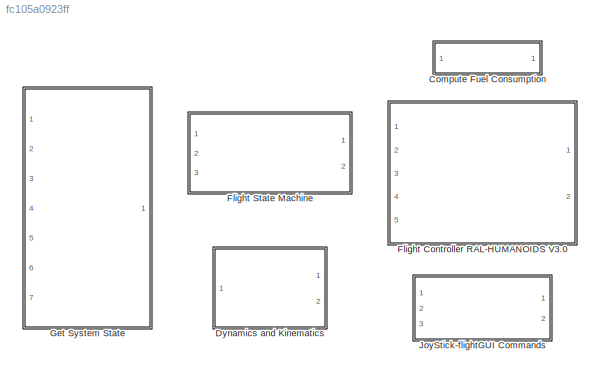
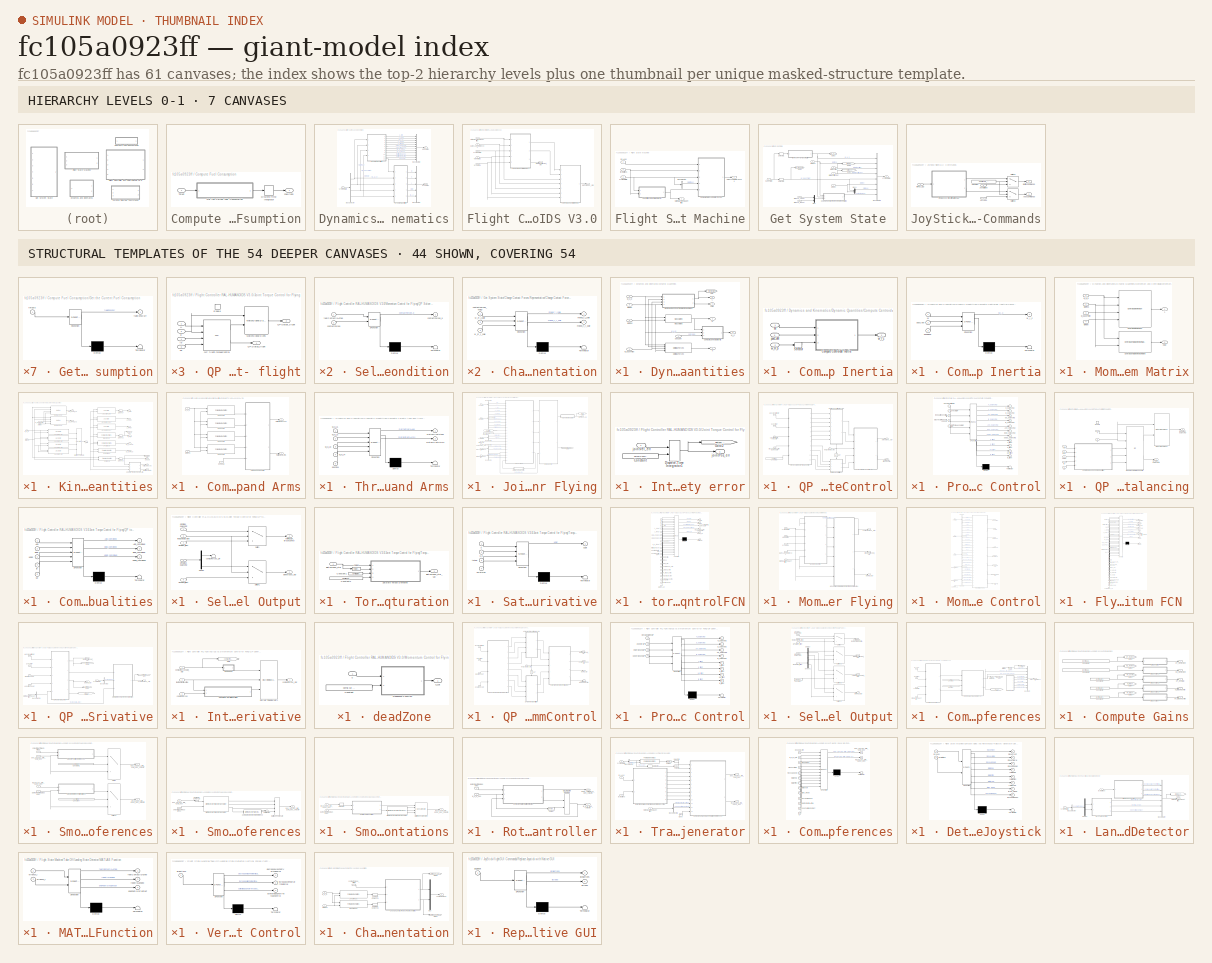
[diagram: thumbnail index - top-2 hierarchy levels (7 canvases) + 44 structural-template representatives of the remaining 54 canvases]
MODEL slx_fc105a0923ff
KIND library
CONFIG AbsTol = auto
CONFIG EnableMultiTasking = off
CONFIG FixedStep = auto
CONFIG MaxStep = auto
CONFIG MinStep = auto
CONFIG RelTol = 1e-3
CONFIG SampleTimeConstraint = Unconstrained
CONFIG SolverName = VariableStepAuto
CONFIG StartTime = 0.0
CONFIG StopTime = 10.0
BLOCK [SubSystem] Compute Fuel Consumption
  Ports = [1, 1]
  RequestExecContextInheritance = off
BLOCK [DiscreteIntegrator] Compute Fuel Consumption/Discrete-Time Integrator
  ICPrevOutput = DiscIntNeverNeededParam
  ICPrevScaledInput = DiscIntNeverNeededParam
  InitialConditionSetting = Auto
  Ports = [1, 1]
  SampleTime = Config.tStep
BLOCK [Outport] Compute Fuel Consumption/FuelCons
BLOCK [SubSystem] Compute Fuel Consumption/Get the Current Fuel Consumption
  ErrorFcn = Stateflow.Translate.translate
  PermitHierarchicalResolution = ExplicitOnly
  Ports = [1, 1]
  RequestExecContextInheritance = off
  SFBlockType = MATLAB Function
  TreatAsAtomicUnit = on
BLOCK [Demux] Compute Fuel Consumption/Get the Current Fuel Consumption/ Demux 
  Outputs = 1
  Ports = [1, 1]
BLOCK [S-Function] Compute Fuel Consumption/Get the Current Fuel Consumption/ SFunction 
  EnableBusSupport = off
  FunctionName = sf_sfun
  Parameters = Config
  PortCounts = [1 2]
  Ports = [1, 2]
  SFcnIsStateOwnerBlock = off
  SFunctionDeploymentMode = off
  Tag = Stateflow S-Function 33
BLOCK [Terminator] Compute Fuel Consumption/Get the Current Fuel Consumption/ Terminator 
BLOCK [Outport] Compute Fuel Consumption/Get the Current Fuel Consumption/fuelConsCurr
BLOCK [Inport] Compute Fuel Consumption/Get the Current Fuel Consumption/thrusts
BLOCK [Inport] Compute Fuel Consumption/Thrust
BLOCK [SubSystem] Dynamics and Kinematics
  Ports = [1, 2]
  RequestExecContextInheritance = off
BLOCK [BusCreator] Dynamics and Kinematics/Bus Creator1
  DisplayOption = bar
  InheritFromInputs = on
  Inputs = 5
  Ports = [5, 1]
BLOCK [BusCreator] Dynamics and Kinematics/Bus Creator2
  DisplayOption = bar
  InheritFromInputs = on
  Inputs = 12
  Ports = [12, 1]
BLOCK [BusSelector] Dynamics and Kinematics/Bus Selector
  OutputSignals = w_H_b,jointPos,w_baseTwist,jointVel
  Ports = [1, 4]
BLOCK [SubSystem] Dynamics and Kinematics/Dynamic Quantities
  Ports = [5, 5]
  RequestExecContextInheritance = off
BLOCK [Outport] Dynamics and Kinematics/Dynamic Quantities/CMM
  Port = 4
  VectorParamsAs1DForOutWhenUnconnected = off
BLOCK [SubSystem] Dynamics and Kinematics/Dynamic Quantities/Compute Centroidal Inertia
  Ports = [3, 1]
  RequestExecContextInheritance = off
BLOCK [SubSystem] Dynamics and Kinematics/Dynamic Quantities/Compute Centroidal Inertia/Compute Centroidal Inertia
  ErrorFcn = Stateflow.Translate.translate
  PermitHierarchicalResolution = ExplicitOnly
  Ports = [3, 1]
  RequestExecContextInheritance = off
  SFBlockType = MATLAB Function
  TreatAsAtomicUnit = on
BLOCK [Demux] Dynamics and Kinematics/Dynamic Quantities/Compute Centroidal Inertia/Compute Centroidal Inertia/ Demux 
  Outputs = 1
  Ports = [1, 1]
BLOCK [S-Function] Dynamics and Kinematics/Dynamic Quantities/Compute Centroidal Inertia/Compute Centroidal Inertia/ SFunction 
  EnableBusSupport = off
  FunctionName = sf_sfun
  PortCounts = [3 2]
  Ports = [3, 2]
  SFcnIsStateOwnerBlock = off
  SFunctionDeploymentMode = off
  Tag = Stateflow S-Function 5
BLOCK [Terminator] Dynamics and Kinematics/Dynamic Quantities/Compute Centroidal Inertia/Compute Centroidal Inertia/ Terminator 
BLOCK [Inport] Dynamics and Kinematics/Dynamic Quantities/Compute Centroidal Inertia/Compute Centroidal Inertia/M
BLOCK [Inport] Dynamics and Kinematics/Dynamic Quantities/Compute Centroidal Inertia/Compute Centroidal Inertia/posBase
  Port = 3
BLOCK [Inport] Dynamics and Kinematics/Dynamic Quantities/Compute Centroidal Inertia/Compute Centroidal Inertia/posCoM
  Port = 2
BLOCK [Outport] Dynamics and Kinematics/Dynamic Quantities/Compute Centroidal Inertia/Compute Centroidal Inertia/w_I_c
  VectorParamsAs1DForOutWhenUnconnected = off
BLOCK [Inport] Dynamics and Kinematics/Dynamic Quantities/Compute Centroidal Inertia/M
BLOCK [Selector] Dynamics and Kinematics/Dynamic Quantities/Compute Centroidal Inertia/Selector
  IndexOptions = Index vector (dialog),Index vector (dialog)
  Indices = [1 2 3],4
  InputPortWidth = 3
  NumberOfDimensions = 2
  OutputSizes = 1,1
  Ports = [1, 1]
BLOCK [Inport] Dynamics and Kinematics/Dynamic Quantities/Compute Centroidal Inertia/posCoM
  Port = 3
BLOCK [Inport] Dynamics and Kinematics/Dynamic Quantities/Compute Centroidal Inertia/w_H_b
  Port = 2
BLOCK [Outport] Dynamics and Kinematics/Dynamic Quantities/Compute Centroidal Inertia/w_I_c
  VectorParamsAs1DForOutWhenUnconnected = off
BLOCK [Reference] Dynamics and Kinematics/Dynamic Quantities/GetBiasForces  REF=WBToolboxLibrary/Model/Dynamics/GetBiasForces
  Ports = [4, 1]
  SourceBlock = WBToolboxLibrary/Model/Dynamics/GetBiasForces
  SourceProductName = WholeBodyToolbox
  SourceType = Get Generalized Bias Forces
BLOCK [Goto] Dynamics and Kinematics/Dynamic Quantities/Goto
  GotoTag = momentum
  TagVisibility = global
BLOCK [Outport] Dynamics and Kinematics/Dynamic Quantities/L
  Port = 3
  VectorParamsAs1DForOutWhenUnconnected = off
BLOCK [Outport] Dynamics and Kinematics/Dynamic Quantities/M
  VectorParamsAs1DForOutWhenUnconnected = off
BLOCK [Reference] Dynamics and Kinematics/Dynamic Quantities/MassMatrix  REF=WBToolboxLibrary/Model/Dynamics/MassMatrix
  Ports = [2, 1]
  SourceBlock = WBToolboxLibrary/Model/Dynamics/MassMatrix
  SourceProductName = WholeBodyToolbox
  SourceType = MassMatrix
BLOCK [SubSystem] Dynamics and Kinematics/Dynamic Quantities/Momentum and CentroidalMomentum Matrix
  Ports = [4, 2]
  RequestExecContextInheritance = off
BLOCK [Outport] Dynamics and Kinematics/Dynamic Quantities/Momentum and CentroidalMomentum Matrix/CMM
  Port = 2
  VectorParamsAs1DForOutWhenUnconnected = off
BLOCK [Reference] Dynamics and Kinematics/Dynamic Quantities/Momentum and CentroidalMomentum Matrix/CentroidalMomentum  REF=WBToolboxLibrary/Model/Dynamics/CentroidalMomentum
  Ports = [4, 1]
  SourceBlock = WBToolboxLibrary/Model/Dynamics/CentroidalMomentum
  SourceProductName = WholeBodyToolbox
  SourceType = CentroidalMomentum
BLOCK [Reference] Dynamics and Kinematics/Dynamic Quantities/Momentum and CentroidalMomentum Matrix/CentroidalTotalMomentumMatrix  REF=WBToolboxLibrary/Model/Jacobians/CentroidalTotalMomentumMatrix
  Ports = [2, 1]
  SourceBlock = WBToolboxLibrary/Model/Jacobians/CentroidalTotalMomentumMatrix
  SourceProductName = WholeBodyToolbox
  SourceType = CentroidalTotalMomentumMatrix
BLOCK [Outport] Dynamics and Kinematics/Dynamic Quantities/Momentum and CentroidalMomentum Matrix/L
  VectorParamsAs1DForOutWhenUnconnected = off
BLOCK [Inport] Dynamics and Kinematics/Dynamic Quantities/Momentum and CentroidalMomentum Matrix/jointPos
  Port = 2
BLOCK [Inport] Dynamics and Kinematics/Dynamic Quantities/Momentum and CentroidalMomentum Matrix/jointVel
  Port = 4
BLOCK [Inport] Dynamics and Kinematics/Dynamic Quantities/Momentum and CentroidalMomentum Matrix/w_H_b
BLOCK [Inport] Dynamics and Kinematics/Dynamic Quantities/Momentum and CentroidalMomentum Matrix/w_baseTwist
  Port = 3
BLOCK [Outport] Dynamics and Kinematics/Dynamic Quantities/h 
  Port = 2
  VectorParamsAs1DForOutWhenUnconnected = off
BLOCK [Inport] Dynamics and Kinematics/Dynamic Quantities/jointPos
  Port = 3
BLOCK [Inport] Dynamics and Kinematics/Dynamic Quantities/jointVel
  Port = 5
BLOCK [Inport] Dynamics and Kinematics/Dynamic Quantities/posCoM
BLOCK [Inport] Dynamics and Kinematics/Dynamic Quantities/w_H_b
  Port = 2
BLOCK [Outport] Dynamics and Kinematics/Dynamic Quantities/w_I_c
  Port = 5
  VectorParamsAs1DForOutWhenUnconnected = off
BLOCK [Inport] Dynamics and Kinematics/Dynamic Quantities/w_baseTwist
  Port = 4
BLOCK [SubSystem] Dynamics and Kinematics/Kinematic Quantities
  Ports = [4, 12]
  RequestExecContextInheritance = off
BLOCK [Reference] Dynamics and Kinematics/Kinematic Quantities/Base pose  REF=WBToolboxLibrary/Model/Kinematics/ForwardKinematics
  Ports = [2, 1]
  SourceBlock = WBToolboxLibrary/Model/Kinematics/ForwardKinematics
  SourceProductName = WholeBodyToolbox
  SourceType = ForwardKinematics
BLOCK [Reference] Dynamics and Kinematics/Kinematic Quantities/CoM pose  REF=WBToolboxLibrary/Model/Kinematics/ForwardKinematics
  Ports = [2, 1]
  SourceBlock = WBToolboxLibrary/Model/Kinematics/ForwardKinematics
  SourceProductName = WholeBodyToolbox
  SourceType = ForwardKinematics
BLOCK [Selector] Dynamics and Kinematics/Kinematic Quantities/CoM6D -> CoMXYZ3
  IndexOptions = Index vector (dialog),Index vector (dialog)
  Indices = [1 2 3],[1 2 3]
  InputPortWidth = 7
  NumberOfDimensions = 2
  OutputSizes = 1,1
  Ports = [1, 1]
BLOCK [Selector] Dynamics and Kinematics/Kinematic Quantities/CoM6D -> CoMXYZ5
  IndexOptions = Index vector (dialog),Index vector (dialog)
  Indices = [1 2 3],[4]
  InputPortWidth = 7
  NumberOfDimensions = 2
  OutputSizes = 1,1
  Ports = [1, 1]
BLOCK [Selector] Dynamics and Kinematics/Kinematic Quantities/CoM6D -> CoMXYZ7
  IndexOptions = Index vector (dialog),Index vector (dialog)
  Indices = [1 2 3],[1:6+Config.N_DOF]
  InputPortWidth = 7
  NumberOfDimensions = 2
  OutputSizes = 1,1
  Ports = [1, 1]
BLOCK [SubSystem] Dynamics and Kinematics/Kinematic Quantities/Compute Thrusts Axes and Arms
  Ports = [3, 2]
  RequestExecContextInheritance = off
BLOCK [Reference] Dynamics and Kinematics/Kinematic Quantities/Compute Thrusts Axes and Arms/Pose Jet 1  REF=WBToolboxLibrary/Model/Kinematics/ForwardKinematics
  Ports = [2, 1]
  SourceBlock = WBToolboxLibrary/Model/Kinematics/ForwardKinematics
  SourceProductName = WholeBodyToolbox
  SourceType = ForwardKinematics
BLOCK [Reference] Dynamics and Kinematics/Kinematic Quantities/Compute Thrusts Axes and Arms/Pose Jet 2  REF=WBToolboxLibrary/Model/Kinematics/ForwardKinematics
  Ports = [2, 1]
  SourceBlock = WBToolboxLibrary/Model/Kinematics/ForwardKinematics
  SourceProductName = WholeBodyToolbox
  SourceType = ForwardKinematics
BLOCK [Reference] Dynamics and Kinematics/Kinematic Quantities/Compute Thrusts Axes and Arms/Pose Jet 3  REF=WBToolboxLibrary/Model/Kinematics/ForwardKinematics
  Ports = [2, 1]
  SourceBlock = WBToolboxLibrary/Model/Kinematics/ForwardKinematics
  SourceProductName = WholeBodyToolbox
  SourceType = ForwardKinematics
BLOCK [Reference] Dynamics and Kinematics/Kinematic Quantities/Compute Thrusts Axes and Arms/Pose Jet 4  REF=WBToolboxLibrary/Model/Kinematics/ForwardKinematics
  Ports = [2, 1]
  SourceBlock = WBToolboxLibrary/Model/Kinematics/ForwardKinematics
  SourceProductName = WholeBodyToolbox
  SourceType = ForwardKinematics
BLOCK [SubSystem] Dynamics and Kinematics/Kinematic Quantities/Compute Thrusts Axes and Arms/Thrust Axes and Arms
  ErrorFcn = Stateflow.Translate.translate
  PermitHierarchicalResolution = ExplicitOnly
  Ports = [5, 2]
  RequestExecContextInheritance = off
  SFBlockType = MATLAB Function
  TreatAsAtomicUnit = on
BLOCK [Demux] Dynamics and Kinematics/Kinematic Quantities/Compute Thrusts Axes and Arms/Thrust Axes and Arms/ Demux 
  Outputs = 1
  Ports = [1, 1]
BLOCK [S-Function] Dynamics and Kinematics/Kinematic Quantities/Compute Thrusts Axes and Arms/Thrust Axes and Arms/ SFunction 
  EnableBusSupport = off
  FunctionName = sf_sfun
  Parameters = Config
  PortCounts = [5 3]
  Ports = [5, 3]
  SFcnIsStateOwnerBlock = off
  SFunctionDeploymentMode = off
  Tag = Stateflow S-Function 20
BLOCK [Terminator] Dynamics and Kinematics/Kinematic Quantities/Compute Thrusts Axes and Arms/Thrust Axes and Arms/ Terminator 
BLOCK [Outport] Dynamics and Kinematics/Kinematic Quantities/Compute Thrusts Axes and Arms/Thrust Axes and Arms/matrixOfJetsArms
  Port = 2
  VectorParamsAs1DForOutWhenUnconnected = off
BLOCK [Outport] Dynamics and Kinematics/Kinematic Quantities/Compute Thrusts Axes and Arms/Thrust Axes and Arms/matrixOfJetsAxes
  VectorParamsAs1DForOutWhenUnconnected = off
BLOCK [Inport] Dynamics and Kinematics/Kinematic Quantities/Compute Thrusts Axes and Arms/Thrust Axes and Arms/posCoM
  Port = 5
BLOCK [Inport] Dynamics and Kinematics/Kinematic Quantities/Compute Thrusts Axes and Arms/Thrust Axes and Arms/w_H_J1
BLOCK [Inport] Dynamics and Kinematics/Kinematic Quantities/Compute Thrusts Axes and Arms/Thrust Axes and Arms/w_H_J2
  Port = 2
BLOCK [Inport] Dynamics and Kinematics/Kinematic Quantities/Compute Thrusts Axes and Arms/Thrust Axes and Arms/w_H_J3
  Port = 3
BLOCK [Inport] Dynamics and Kinematics/Kinematic Quantities/Compute Thrusts Axes and Arms/Thrust Axes and Arms/w_H_J4
  Port = 4
BLOCK [Inport] Dynamics and Kinematics/Kinematic Quantities/Compute Thrusts Axes and Arms/jointPos
  Port = 3
BLOCK [Outport] Dynamics and Kinematics/Kinematic Quantities/Compute Thrusts Axes and Arms/matrixOfJetsArms
  Port = 2
  VectorParamsAs1DForOutWhenUnconnected = off
BLOCK [Outport] Dynamics and Kinematics/Kinematic Quantities/Compute Thrusts Axes and Arms/matrixOfJetsAxes
  VectorParamsAs1DForOutWhenUnconnected = off
BLOCK [Inport] Dynamics and Kinematics/Kinematic Quantities/Compute Thrusts Axes and Arms/posCoM
BLOCK [Inport] Dynamics and Kinematics/Kinematic Quantities/Compute Thrusts Axes and Arms/w_H_b
  Port = 2
BLOCK [Reference] Dynamics and Kinematics/Kinematic Quantities/DotJNu LFoot  REF=WBToolboxLibrary/Model/Jacobians/DotJNu
  Ports = [4, 1]
  SourceBlock = WBToolboxLibrary/Model/Jacobians/DotJNu
  SourceProductName = WholeBodyToolbox
  SourceType = DotJNu
BLOCK [Reference] Dynamics and Kinematics/Kinematic Quantities/DotJNu RFoot  REF=WBToolboxLibrary/Model/Jacobians/DotJNu
  Ports = [4, 1]
  SourceBlock = WBToolboxLibrary/Model/Jacobians/DotJNu
  SourceProductName = WholeBodyToolbox
  SourceType = DotJNu
BLOCK [Goto] Dynamics and Kinematics/Kinematic Quantities/Goto
  GotoTag = posCoM
  TagVisibility = global
BLOCK [Goto] Dynamics and Kinematics/Kinematic Quantities/Goto4
  GotoTag = w_R_b
  TagVisibility = global
BLOCK [Outport] Dynamics and Kinematics/Kinematic Quantities/JDot_LFoot_nu
  Port = 6
  VectorParamsAs1DForOutWhenUnconnected = off
BLOCK [Outport] Dynamics and Kinematics/Kinematic Quantities/JDot_RFoot_nu
  Port = 7
  VectorParamsAs1DForOutWhenUnconnected = off
BLOCK [Outport] Dynamics and Kinematics/Kinematic Quantities/J_CoM
  Port = 2
  VectorParamsAs1DForOutWhenUnconnected = off
BLOCK [Outport] Dynamics and Kinematics/Kinematic Quantities/J_LFoot
  Port = 4
  VectorParamsAs1DForOutWhenUnconnected = off
BLOCK [Outport] Dynamics and Kinematics/Kinematic Quantities/J_RFoot
  Port = 5
  VectorParamsAs1DForOutWhenUnconnected = off
BLOCK [Outport] Dynamics and Kinematics/Kinematic Quantities/J_jets
  VectorParamsAs1DForOutWhenUnconnected = off
BLOCK [Reference] Dynamics and Kinematics/Kinematic Quantities/Jacobian CoM  REF=WBToolboxLibrary/Model/Jacobians/Jacobian
  Ports = [2, 1]
  SourceBlock = WBToolboxLibrary/Model/Jacobians/Jacobian
  SourceProductName = WholeBodyToolbox
  SourceType = Jacobian
BLOCK [Reference] Dynamics and Kinematics/Kinematic Quantities/Jacobian Jet1  REF=WBToolboxLibrary/Model/Jacobians/Jacobian
  Ports = [2, 1]
  SourceBlock = WBToolboxLibrary/Model/Jacobians/Jacobian
  SourceProductName = WholeBodyToolbox
  SourceType = Jacobian
BLOCK [Reference] Dynamics and Kinematics/Kinematic Quantities/Jacobian Jet2  REF=WBToolboxLibrary/Model/Jacobians/Jacobian
  Ports = [2, 1]
  SourceBlock = WBToolboxLibrary/Model/Jacobians/Jacobian
  SourceProductName = WholeBodyToolbox
  SourceType = Jacobian
BLOCK [Reference] Dynamics and Kinematics/Kinematic Quantities/Jacobian Jet3  REF=WBToolboxLibrary/Model/Jacobians/Jacobian
  Ports = [2, 1]
  SourceBlock = WBToolboxLibrary/Model/Jacobians/Jacobian
  SourceProductName = WholeBodyToolbox
  SourceType = Jacobian
BLOCK [Reference] Dynamics and Kinematics/Kinematic Quantities/Jacobian Jet4  REF=WBToolboxLibrary/Model/Jacobians/Jacobian
  Ports = [2, 1]
  SourceBlock = WBToolboxLibrary/Model/Jacobians/Jacobian
  SourceProductName = WholeBodyToolbox
  SourceType = Jacobian
BLOCK [Reference] Dynamics and Kinematics/Kinematic Quantities/Jacobian LFoot  REF=WBToolboxLibrary/Model/Jacobians/Jacobian
  Ports = [2, 1]
  SourceBlock = WBToolboxLibrary/Model/Jacobians/Jacobian
  SourceProductName = WholeBodyToolbox
  SourceType = Jacobian
BLOCK [Reference] Dynamics and Kinematics/Kinematic Quantities/Jacobian RFoot  REF=WBToolboxLibrary/Model/Jacobians/Jacobian
  Ports = [2, 1]
  SourceBlock = WBToolboxLibrary/Model/Jacobians/Jacobian
  SourceProductName = WholeBodyToolbox
  SourceType = Jacobian
BLOCK [Reference] Dynamics and Kinematics/Kinematic Quantities/LFoot pose  REF=WBToolboxLibrary/Model/Kinematics/ForwardKinematics
  Ports = [2, 1]
  SourceBlock = WBToolboxLibrary/Model/Kinematics/ForwardKinematics
  SourceProductName = WholeBodyToolbox
  SourceType = ForwardKinematics
BLOCK [Concatenate] Dynamics and Kinematics/Kinematic Quantities/Matrix Concatenate
  Mode = Multidimensional array
  NumInputs = 4
  Ports = [4, 1]
BLOCK [Reference] Dynamics and Kinematics/Kinematic Quantities/RFoot pose  REF=WBToolboxLibrary/Model/Kinematics/ForwardKinematics
  Ports = [2, 1]
  SourceBlock = WBToolboxLibrary/Model/Kinematics/ForwardKinematics
  SourceProductName = WholeBodyToolbox
  SourceType = ForwardKinematics
BLOCK [Inport] Dynamics and Kinematics/Kinematic Quantities/jointPos
  Port = 2
BLOCK [Inport] Dynamics and Kinematics/Kinematic Quantities/jointVel
  Port = 4
BLOCK [Outport] Dynamics and Kinematics/Kinematic Quantities/matrixOfJetsArms
  Port = 11
  VectorParamsAs1DForOutWhenUnconnected = off
BLOCK [Outport] Dynamics and Kinematics/Kinematic Quantities/matrixOfJetsAxes
  Port = 10
  VectorParamsAs1DForOutWhenUnconnected = off
BLOCK [Outport] Dynamics and Kinematics/Kinematic Quantities/posCoM
  Port = 12
  VectorParamsAs1DForOutWhenUnconnected = off
BLOCK [Outport] Dynamics and Kinematics/Kinematic Quantities/w_H_LFoot
  Port = 8
  VectorParamsAs1DForOutWhenUnconnected = off
BLOCK [Outport] Dynamics and Kinematics/Kinematic Quantities/w_H_RFoot
  Port = 9
  VectorParamsAs1DForOutWhenUnconnected = off
BLOCK [Inport] Dynamics and Kinematics/Kinematic Quantities/w_H_b
BLOCK [Outport] Dynamics and Kinematics/Kinematic Quantities/w_R_b
  Port = 3
  VectorParamsAs1DForOutWhenUnconnected = off
BLOCK [Inport] Dynamics and Kinematics/Kinematic Quantities/w_baseTwist
  Port = 3
BLOCK [Outport] Dynamics and Kinematics/dynamics
  Port = 2
  VectorParamsAs1DForOutWhenUnconnected = off
BLOCK [Outport] Dynamics and Kinematics/kinematics
  VectorParamsAs1DForOutWhenUnconnected = off
BLOCK [Inport] Dynamics and Kinematics/systemState
BLOCK [SubSystem] Flight Controller RAL-HUMANOIDS V3.0
  Ports = [5, 2]
  RequestExecContextInheritance = off
BLOCK [SubSystem] Flight Controller RAL-HUMANOIDS V3.0/Joint Torque Control for Flying
  Ports = [7, 1]
  RequestExecContextInheritance = off
BLOCK [BusSelector] Flight Controller RAL-HUMANOIDS V3.0/Joint Torque Control for Flying/Bus Selector1
  OutputSignals = feetContactIsActive,activateEqConstrTorqueControl,robotIsLanded
  Ports = [1, 3]
BLOCK [BusSelector] Flight Controller RAL-HUMANOIDS V3.0/Joint Torque Control for Flying/Bus Selector2
  OutputSignals = KI_torqueControl,KP_torqueControl
  Ports = [1, 2]
BLOCK [BusSelector] Flight Controller RAL-HUMANOIDS V3.0/Joint Torque Control for Flying/Bus Selector4
  OutputSignals = M,h
  Ports = [1, 2]
BLOCK [BusSelector] Flight Controller RAL-HUMANOIDS V3.0/Joint Torque Control for Flying/Bus Selector5
  OutputSignals = J_jets,J_LFoot,J_RFoot,JDot_LFoot_nu,JDot_RFoot_nu,w_H_LFoot,w_H_RFoot,matrixOfJetAxes
  Ports = [1, 8]
BLOCK [BusSelector] Flight Controller RAL-HUMANOIDS V3.0/Joint Torque Control for Flying/Bus Selector6
  OutputSignals = jetsIntensities,stateVel
  Ports = [1, 2]
BLOCK [Constant] Flight Controller RAL-HUMANOIDS V3.0/Joint Torque Control for Flying/Constant
  Value = ConstraintMatrix_feet
BLOCK [Constant] Flight Controller RAL-HUMANOIDS V3.0/Joint Torque Control for Flying/Constant1
  Value = biasVectorConstraint_feet
BLOCK [Goto] Flight Controller RAL-HUMANOIDS V3.0/Joint Torque Control for Flying/Goto
  GotoTag = jointTorques_star
  TagVisibility = global
BLOCK [Goto] Flight Controller RAL-HUMANOIDS V3.0/Joint Torque Control for Flying/Goto1
  GotoTag = exitFlagQP_torqueControl
  TagVisibility = global
BLOCK [SubSystem] Flight Controller RAL-HUMANOIDS V3.0/Joint Torque Control for Flying/Integrate Joints Velocity error
  Ports = [1, 1]
  RequestExecContextInheritance = off
BLOCK [Constant] Flight Controller RAL-HUMANOIDS V3.0/Joint Torque Control for Flying/Integrate Joints Velocity error/Constant
  Value = zeros(Config.N_DOF,1)
BLOCK [DiscreteIntegrator] Flight Controller RAL-HUMANOIDS V3.0/Joint Torque Control for Flying/Integrate Joints Velocity error/Discrete-Time Integrator1
  ICPrevOutput = DiscIntNeverNeededParam
  ICPrevScaledInput = DiscIntNeverNeededParam
  InitialCondition = zeros(Config.N_DOF,1)
  InitialConditionSetting = Auto
  InitialConditionSource = external
  Ports = [2, 1]
  SampleTime = Config.tStep
BLOCK [Goto] Flight Controller RAL-HUMANOIDS V3.0/Joint Torque Control for Flying/Integrate Joints Velocity error/Goto2
  GotoTag = jointPos_err_integral
  TagVisibility = global
BLOCK [Outport] Flight Controller RAL-HUMANOIDS V3.0/Joint Torque Control for Flying/Integrate Joints Velocity error/jointPos_err
  VectorParamsAs1DForOutWhenUnconnected = off
BLOCK [Inport] Flight Controller RAL-HUMANOIDS V3.0/Joint Torque Control for Flying/Integrate Joints Velocity error/jointVel_err
BLOCK [SubSystem] Flight Controller RAL-HUMANOIDS V3.0/Joint Torque Control for Flying/QP torqueControl
  Ports = [5, 2]
  RequestExecContextInheritance = off
BLOCK [Constant] Flight Controller RAL-HUMANOIDS V3.0/Joint Torque Control for Flying/QP torqueControl/Constant2
  Value = Config.sat.jointTorquesSaturation
BLOCK [Inport] Flight Controller RAL-HUMANOIDS V3.0/Joint Torque Control for Flying/QP torqueControl/ConstraintMatrix_inequality
  Port = 3
BLOCK [Inport] Flight Controller RAL-HUMANOIDS V3.0/Joint Torque Control for Flying/QP torqueControl/HessianMatrixQP
BLOCK [Logic] Flight Controller RAL-HUMANOIDS V3.0/Joint Torque Control for Flying/QP torqueControl/NOT
  AllPortsSameDT = off
  IconShape = distinctive
  NameLocation = right
  Operator = NOT
  OutDataTypeStr = boolean
  Ports = [1, 1]
BLOCK [SubSystem] Flight Controller RAL-HUMANOIDS V3.0/Joint Torque Control for Flying/QP torqueControl/Process QP Inputs Torque Control
  ErrorFcn = Stateflow.Translate.translate
  PermitHierarchicalResolution = ExplicitOnly
  Ports = [5, 11]
  RequestExecContextInheritance = off
  SFBlockType = MATLAB Function
  TreatAsAtomicUnit = on
BLOCK [Demux] Flight Controller RAL-HUMANOIDS V3.0/Joint Torque Control for Flying/QP torqueControl/Process QP Inputs Torque Control/ Demux 
  Outputs = 1
  Ports = [1, 1]
BLOCK [S-Function] Flight Controller RAL-HUMANOIDS V3.0/Joint Torque Control for Flying/QP torqueControl/Process QP Inputs Torque Control/ SFunction 
  EnableBusSupport = off
  FunctionName = sf_sfun
  Parameters = Config
  PortCounts = [5 12]
  Ports = [5, 12]
  SFcnIsStateOwnerBlock = off
  SFunctionDeploymentMode = off
  Tag = Stateflow S-Function 3
BLOCK [Terminator] Flight Controller RAL-HUMANOIDS V3.0/Joint Torque Control for Flying/QP torqueControl/Process QP Inputs Torque Control/ Terminator 
BLOCK [Outport] Flight Controller RAL-HUMANOIDS V3.0/Joint Torque Control for Flying/QP torqueControl/Process QP Inputs Torque Control/Aeq_balancing
  Port = 5
BLOCK [Outport] Flight Controller RAL-HUMANOIDS V3.0/Joint Torque Control for Flying/QP torqueControl/Process QP Inputs Torque Control/H_balancing
BLOCK [Outport] Flight Controller RAL-HUMANOIDS V3.0/Joint Torque Control for Flying/QP torqueControl/Process QP Inputs Torque Control/H_flight
  Port = 8
BLOCK [Inport] Flight Controller RAL-HUMANOIDS V3.0/Joint Torque Control for Flying/QP torqueControl/Process QP Inputs Torque Control/HessianMatrixQP
BLOCK [Inport] Flight Controller RAL-HUMANOIDS V3.0/Joint Torque Control for Flying/QP torqueControl/Process QP Inputs Torque Control/InequalityConstrMatrix
  Port = 3
BLOCK [Inport] Flight Controller RAL-HUMANOIDS V3.0/Joint Torque Control for Flying/QP torqueControl/Process QP Inputs Torque Control/biasVectorInequalityConstr
  Port = 4
BLOCK [Inport] Flight Controller RAL-HUMANOIDS V3.0/Joint Torque Control for Flying/QP torqueControl/Process QP Inputs Torque Control/gVectorQP
  Port = 2
BLOCK [Outport] Flight Controller RAL-HUMANOIDS V3.0/Joint Torque Control for Flying/QP torqueControl/Process QP Inputs Torque Control/g_balancing
  Port = 2
BLOCK [Outport] Flight Controller RAL-HUMANOIDS V3.0/Joint Torque Control for Flying/QP torqueControl/Process QP Inputs Torque Control/g_flight
  Port = 9
BLOCK [Inport] Flight Controller RAL-HUMANOIDS V3.0/Joint Torque Control for Flying/QP torqueControl/Process QP Inputs Torque Control/jointTorquesSaturation
  Port = 5
BLOCK [Outport] Flight Controller RAL-HUMANOIDS V3.0/Joint Torque Control for Flying/QP torqueControl/Process QP Inputs Torque Control/lbEq_balancing
  Port = 6
BLOCK [Outport] Flight Controller RAL-HUMANOIDS V3.0/Joint Torque Control for Flying/QP torqueControl/Process QP Inputs Torque Control/lb_balancing
  Port = 4
BLOCK [Outport] Flight Controller RAL-HUMANOIDS V3.0/Joint Torque Control for Flying/QP torqueControl/Process QP Inputs Torque Control/lb_flight
  Port = 11
BLOCK [Outport] Flight Controller RAL-HUMANOIDS V3.0/Joint Torque Control for Flying/QP torqueControl/Process QP Inputs Torque Control/ubEq_balancing
  Port = 7
BLOCK [Outport] Flight Controller RAL-HUMANOIDS V3.0/Joint Torque Control for Flying/QP torqueControl/Process QP Inputs Torque Control/ub_balancing
  Port = 3
BLOCK [Outport] Flight Controller RAL-HUMANOIDS V3.0/Joint Torque Control for Flying/QP torqueControl/Process QP Inputs Torque Control/ub_flight
  Port = 10
BLOCK [SubSystem] Flight Controller RAL-HUMANOIDS V3.0/Joint Torque Control for Flying/QP torqueControl/QP torqueControl - balancing
  NameLocation = top
  Ports = [7, 2, 1]
  RequestExecContextInheritance = off
  TreatAsAtomicUnit = on
BLOCK [Inport] Flight Controller RAL-HUMANOIDS V3.0/Joint Torque Control for Flying/QP torqueControl/QP torqueControl - balancing/AEq
  Port = 5
BLOCK [SubSystem] Flight Controller RAL-HUMANOIDS V3.0/Joint Torque Control for Flying/QP torqueControl/QP torqueControl - balancing/Combine Bounds and Inequalities
  ErrorFcn = Stateflow.Translate.translate
  PermitHierarchicalResolution = ExplicitOnly
  Ports = [5, 3]
  RequestExecContextInheritance = off
  SFBlockType = MATLAB Function
  TreatAsAtomicUnit = on
BLOCK [Demux] Flight Controller RAL-HUMANOIDS V3.0/Joint Torque Control for Flying/QP torqueControl/QP torqueControl - balancing/Combine Bounds and Inequalities/ Demux 
  Outputs = 1
  Ports = [1, 1]
BLOCK [S-Function] Flight Controller RAL-HUMANOIDS V3.0/Joint Torque Control for Flying/QP torqueControl/QP torqueControl - balancing/Combine Bounds and Inequalities/ SFunction 
  EnableBusSupport = off
  FunctionName = sf_sfun
  PortCounts = [5 4]
  Ports = [5, 4]
  SFcnIsStateOwnerBlock = off
  SFunctionDeploymentMode = off
  Tag = Stateflow S-Function 4
BLOCK [Terminator] Flight Controller RAL-HUMANOIDS V3.0/Joint Torque Control for Flying/QP torqueControl/QP torqueControl - balancing/Combine Bounds and Inequalities/ Terminator 
BLOCK [Inport] Flight Controller RAL-HUMANOIDS V3.0/Joint Torque Control for Flying/QP torqueControl/QP torqueControl - balancing/Combine Bounds and Inequalities/AEq
BLOCK [Outport] Flight Controller RAL-HUMANOIDS V3.0/Joint Torque Control for Flying/QP torqueControl/QP torqueControl - balancing/Combine Bounds and Inequalities/AEq_combined
BLOCK [Inport] Flight Controller RAL-HUMANOIDS V3.0/Joint Torque Control for Flying/QP torqueControl/QP torqueControl - balancing/Combine Bounds and Inequalities/lb
  Port = 4
BLOCK [Inport] Flight Controller RAL-HUMANOIDS V3.0/Joint Torque Control for Flying/QP torqueControl/QP torqueControl - balancing/Combine Bounds and Inequalities/lbEq
  Port = 2
BLOCK [Outport] Flight Controller RAL-HUMANOIDS V3.0/Joint Torque Control for Flying/QP torqueControl/QP torqueControl - balancing/Combine Bounds and Inequalities/lbEq_combined
  Port = 2
BLOCK [Inport] Flight Controller RAL-HUMANOIDS V3.0/Joint Torque Control for Flying/QP torqueControl/QP torqueControl - balancing/Combine Bounds and Inequalities/ub
  Port = 5
BLOCK [Inport] Flight Controller RAL-HUMANOIDS V3.0/Joint Torque Control for Flying/QP torqueControl/QP torqueControl - balancing/Combine Bounds and Inequalities/ubEq
  Port = 3
BLOCK [Outport] Flight Controller RAL-HUMANOIDS V3.0/Joint Torque Control for Flying/QP torqueControl/QP torqueControl - balancing/Combine Bounds and Inequalities/ubEq_combined
  Port = 3
BLOCK [EnablePort] Flight Controller RAL-HUMANOIDS V3.0/Joint Torque Control for Flying/QP torqueControl/QP torqueControl - balancing/Enable
  Ports = []
BLOCK [Inport] Flight Controller RAL-HUMANOIDS V3.0/Joint Torque Control for Flying/QP torqueControl/QP torqueControl - balancing/H
BLOCK [Reference] Flight Controller RAL-HUMANOIDS V3.0/Joint Torque Control for Flying/QP torqueControl/QP torqueControl - balancing/MatchSignalSizes  REF=WBToolboxLibrary/Utilities/MatchSignalSizes
  Ports = [2, 1]
  SourceBlock = WBToolboxLibrary/Utilities/MatchSignalSizes
  SourceProductName = WholeBodyToolbox
  SourceType = MatchSignalSizes
BLOCK [Reference] Flight Controller RAL-HUMANOIDS V3.0/Joint Torque Control for Flying/QP torqueControl/QP torqueControl - balancing/QP balancing-torqueControl  REF=WBToolboxLibrary/Utilities/QP
  Ports = [5, 2]
  SourceBlock = WBToolboxLibrary/Utilities/QP
  SourceProductName = WholeBodyToolbox
  SourceType = QP
BLOCK [Outport] Flight Controller RAL-HUMANOIDS V3.0/Joint Torque Control for Flying/QP torqueControl/QP torqueControl - balancing/QPOutput_balancing
  Port = 2
  VectorParamsAs1DForOutWhenUnconnected = off
BLOCK [Outport] Flight Controller RAL-HUMANOIDS V3.0/Joint Torque Control for Flying/QP torqueControl/QP torqueControl - balancing/QPStatus_balancing
  VectorParamsAs1DForOutWhenUnconnected = off
BLOCK [Inport] Flight Controller RAL-HUMANOIDS V3.0/Joint Torque Control for Flying/QP torqueControl/QP torqueControl - balancing/g
  Port = 2
BLOCK [Inport] Flight Controller RAL-HUMANOIDS V3.0/Joint Torque Control for Flying/QP torqueControl/QP torqueControl - balancing/lb
  Port = 4
BLOCK [Inport] Flight Controller RAL-HUMANOIDS V3.0/Joint Torque Control for Flying/QP torqueControl/QP torqueControl - balancing/lbEq
  Port = 6
BLOCK [Inport] Flight Controller RAL-HUMANOIDS V3.0/Joint Torque Control for Flying/QP torqueControl/QP torqueControl - balancing/ub
  Port = 3
BLOCK [Inport] Flight Controller RAL-HUMANOIDS V3.0/Joint Torque Control for Flying/QP torqueControl/QP torqueControl - balancing/ubEq
  Port = 7
BLOCK [SubSystem] Flight Controller RAL-HUMANOIDS V3.0/Joint Torque Control for Flying/QP torqueControl/QP torqueControl - flight
  Ports = [4, 2, 1]
  RequestExecContextInheritance = off
  TreatAsAtomicUnit = on
BLOCK [EnablePort] Flight Controller RAL-HUMANOIDS V3.0/Joint Torque Control for Flying/QP torqueControl/QP torqueControl - flight/Enable
  Ports = []
BLOCK [Inport] Flight Controller RAL-HUMANOIDS V3.0/Joint Torque Control for Flying/QP torqueControl/QP torqueControl - flight/H
BLOCK [Reference] Flight Controller RAL-HUMANOIDS V3.0/Joint Torque Control for Flying/QP torqueControl/QP torqueControl - flight/MatchSignalSizes  REF=WBToolboxLibrary/Utilities/MatchSignalSizes
  Ports = [2, 1]
  SourceBlock = WBToolboxLibrary/Utilities/MatchSignalSizes
  SourceProductName = WholeBodyToolbox
  SourceType = MatchSignalSizes
BLOCK [Reference] Flight Controller RAL-HUMANOIDS V3.0/Joint Torque Control for Flying/QP torqueControl/QP torqueControl - flight/QP flight-torqueControl  REF=WBToolboxLibrary/Utilities/QP
  Ports = [4, 2]
  SourceBlock = WBToolboxLibrary/Utilities/QP
  SourceProductName = WholeBodyToolbox
  SourceType = QP
BLOCK [Outport] Flight Controller RAL-HUMANOIDS V3.0/Joint Torque Control for Flying/QP torqueControl/QP torqueControl - flight/QPOutput_flight
  Port = 2
  VectorParamsAs1DForOutWhenUnconnected = off
BLOCK [Outport] Flight Controller RAL-HUMANOIDS V3.0/Joint Torque Control for Flying/QP torqueControl/QP torqueControl - flight/QPStatus_flight
  VectorParamsAs1DForOutWhenUnconnected = off
BLOCK [Inport] Flight Controller RAL-HUMANOIDS V3.0/Joint Torque Control for Flying/QP torqueControl/QP torqueControl - flight/g
  Port = 2
BLOCK [Inport] Flight Controller RAL-HUMANOIDS V3.0/Joint Torque Control for Flying/QP torqueControl/QP torqueControl - flight/lb
  Port = 4
BLOCK [Inport] Flight Controller RAL-HUMANOIDS V3.0/Joint Torque Control for Flying/QP torqueControl/QP torqueControl - flight/ub
  Port = 3
BLOCK [SubSystem] Flight Controller RAL-HUMANOIDS V3.0/Joint Torque Control for Flying/QP torqueControl/Select QP torqueControl Output
  Ports = [5, 2]
  RequestExecContextInheritance = off
BLOCK [Demux] Flight Controller RAL-HUMANOIDS V3.0/Joint Torque Control for Flying/QP torqueControl/Select QP torqueControl Output/Demux
  Outputs = [12;Config.N_DOF]
  Ports = [1, 2]
BLOCK [Inport] Flight Controller RAL-HUMANOIDS V3.0/Joint Torque Control for Flying/QP torqueControl/Select QP torqueControl Output/QPOutput_balancing
  Port = 2
BLOCK [Inport] Flight Controller RAL-HUMANOIDS V3.0/Joint Torque Control for Flying/QP torqueControl/Select QP torqueControl Output/QPOutput_flight
  Port = 5
BLOCK [Inport] Flight Controller RAL-HUMANOIDS V3.0/Joint Torque Control for Flying/QP torqueControl/Select QP torqueControl Output/QPStatus_balancing
BLOCK [Inport] Flight Controller RAL-HUMANOIDS V3.0/Joint Torque Control for Flying/QP torqueControl/Select QP torqueControl Output/QPStatus_flight
  Port = 4
BLOCK [Switch] Flight Controller RAL-HUMANOIDS V3.0/Joint Torque Control for Flying/QP torqueControl/Select QP torqueControl Output/Switch
  Criteria = u2 > Threshold
  InputSameDT = off
  SaturateOnIntegerOverflow = off
BLOCK [Switch] Flight Controller RAL-HUMANOIDS V3.0/Joint Torque Control for Flying/QP torqueControl/Select QP torqueControl Output/Switch1
  Criteria = u2 > Threshold
  InputSameDT = off
  SaturateOnIntegerOverflow = off
BLOCK [Terminator] Flight Controller RAL-HUMANOIDS V3.0/Joint Torque Control for Flying/QP torqueControl/Select QP torqueControl Output/contactForces_QP
BLOCK [Outport] Flight Controller RAL-HUMANOIDS V3.0/Joint Torque Control for Flying/QP torqueControl/Select QP torqueControl Output/exitFlagQP_torqueControl
  Port = 2
  VectorParamsAs1DForOutWhenUnconnected = off
BLOCK [Inport] Flight Controller RAL-HUMANOIDS V3.0/Joint Torque Control for Flying/QP torqueControl/Select QP torqueControl Output/feetContactIsActive
  Port = 3
BLOCK [Outport] Flight Controller RAL-HUMANOIDS V3.0/Joint Torque Control for Flying/QP torqueControl/Select QP torqueControl Output/jointTorques_star
  VectorParamsAs1DForOutWhenUnconnected = off
BLOCK [Inport] Flight Controller RAL-HUMANOIDS V3.0/Joint Torque Control for Flying/QP torqueControl/biasVectorConstraint_inequality
  Port = 4
BLOCK [Outport] Flight Controller RAL-HUMANOIDS V3.0/Joint Torque Control for Flying/QP torqueControl/exitFlagQP_torqueControl
  Port = 2
  VectorParamsAs1DForOutWhenUnconnected = off
BLOCK [Inport] Flight Controller RAL-HUMANOIDS V3.0/Joint Torque Control for Flying/QP torqueControl/feetContactIsActive
  Port = 5
BLOCK [Inport] Flight Controller RAL-HUMANOIDS V3.0/Joint Torque Control for Flying/QP torqueControl/gVectorQP
  Port = 2
BLOCK [Outport] Flight Controller RAL-HUMANOIDS V3.0/Joint Torque Control for Flying/QP torqueControl/jointTorques_star
  VectorParamsAs1DForOutWhenUnconnected = off
BLOCK [SubSystem] Flight Controller RAL-HUMANOIDS V3.0/Joint Torque Control for Flying/Torque Derivative Saturation
  Ports = [1, 1]
  RequestExecContextInheritance = off
BLOCK [Constant] Flight Controller RAL-HUMANOIDS V3.0/Joint Torque Control for Flying/Torque Derivative Saturation/Constant1
  Value = Config.tStep
BLOCK [Constant] Flight Controller RAL-HUMANOIDS V3.0/Joint Torque Control for Flying/Torque Derivative Saturation/Constant2
  Value = Config.sat.jointTorquesDotMax
BLOCK [SubSystem] Flight Controller RAL-HUMANOIDS V3.0/Joint Torque Control for Flying/Torque Derivative Saturation/Saturate Torque Derivative
  ErrorFcn = Stateflow.Translate.translate
  PermitHierarchicalResolution = ExplicitOnly
  Ports = [4, 1]
  RequestExecContextInheritance = off
  SFBlockType = MATLAB Function
  TreatAsAtomicUnit = on
BLOCK [Demux] Flight Controller RAL-HUMANOIDS V3.0/Joint Torque Control for Flying/Torque Derivative Saturation/Saturate Torque Derivative/ Demux 
  Outputs = 1
  Ports = [1, 1]
BLOCK [S-Function] Flight Controller RAL-HUMANOIDS V3.0/Joint Torque Control for Flying/Torque Derivative Saturation/Saturate Torque Derivative/ SFunction 
  EnableBusSupport = off
  FunctionName = sf_sfun
  PortCounts = [4 2]
  Ports = [4, 2]
  SFcnIsStateOwnerBlock = off
  SFunctionDeploymentMode = off
  Tag = Stateflow S-Function 11
BLOCK [Terminator] Flight Controller RAL-HUMANOIDS V3.0/Joint Torque Control for Flying/Torque Derivative Saturation/Saturate Torque Derivative/ Terminator 
BLOCK [Inport] Flight Controller RAL-HUMANOIDS V3.0/Joint Torque Control for Flying/Torque Derivative Saturation/Saturate Torque Derivative/tStep
  Port = 3
BLOCK [Inport] Flight Controller RAL-HUMANOIDS V3.0/Joint Torque Control for Flying/Torque Derivative Saturation/Saturate Torque Derivative/u
BLOCK [Inport] Flight Controller RAL-HUMANOIDS V3.0/Joint Torque Control for Flying/Torque Derivative Saturation/Saturate Torque Derivative/uDotMax
  Port = 4
BLOCK [Outport] Flight Controller RAL-HUMANOIDS V3.0/Joint Torque Control for Flying/Torque Derivative Saturation/Saturate Torque Derivative/uSat
  VectorParamsAs1DForOutWhenUnconnected = off
BLOCK [Inport] Flight Controller RAL-HUMANOIDS V3.0/Joint Torque Control for Flying/Torque Derivative Saturation/Saturate Torque Derivative/u_0
  Port = 2
BLOCK [Reference] Flight Controller RAL-HUMANOIDS V3.0/Joint Torque Control for Flying/Torque Derivative Saturation/holder   REF=WBToolboxLibrary/Utilities/holder

  Ports = [1, 1]
  SourceBlock = WBToolboxLibrary/Utilities/holder
  SourceProductName = WholeBodyToolbox
  SourceType = Holder
BLOCK [Inport] Flight Controller RAL-HUMANOIDS V3.0/Joint Torque Control for Flying/Torque Derivative Saturation/jointTorques_star
BLOCK [Outport] Flight Controller RAL-HUMANOIDS V3.0/Joint Torque Control for Flying/Torque Derivative Saturation/jointTorques_star_sat
  VectorParamsAs1DForOutWhenUnconnected = off
BLOCK [Inport] Flight Controller RAL-HUMANOIDS V3.0/Joint Torque Control for Flying/contactForces_star
  Port = 2
BLOCK [Inport] Flight Controller RAL-HUMANOIDS V3.0/Joint Torque Control for Flying/dynamics
  Port = 7
BLOCK [Inport] Flight Controller RAL-HUMANOIDS V3.0/Joint Torque Control for Flying/gainsAndReferences
  Port = 4
BLOCK [Outport] Flight Controller RAL-HUMANOIDS V3.0/Joint Torque Control for Flying/jointTorques_star
  VectorParamsAs1DForOutWhenUnconnected = off
BLOCK [Inport] Flight Controller RAL-HUMANOIDS V3.0/Joint Torque Control for Flying/jointVel_star
BLOCK [Inport] Flight Controller RAL-HUMANOIDS V3.0/Joint Torque Control for Flying/kinematics
  Port = 6
BLOCK [Inport] Flight Controller RAL-HUMANOIDS V3.0/Joint Torque Control for Flying/stateMachineQuantitites
  Port = 3
BLOCK [Inport] Flight Controller RAL-HUMANOIDS V3.0/Joint Torque Control for Flying/systemState
  Port = 5
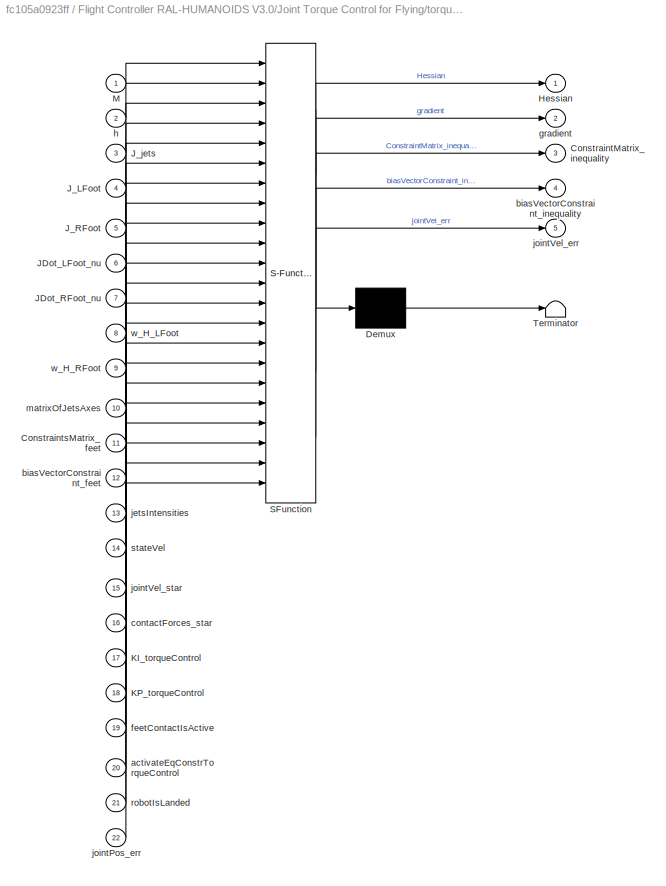
BLOCK [SubSystem] Flight Controller RAL-HUMANOIDS V3.0/Joint Torque Control for Flying/torqueControlFCN
  ErrorFcn = Stateflow.Translate.translate
  PermitHierarchicalResolution = ExplicitOnly
  Ports = [22, 5]
  RequestExecContextInheritance = off
  SFBlockType = MATLAB Function
  TreatAsAtomicUnit = on
BLOCK [Demux] Flight Controller RAL-HUMANOIDS V3.0/Joint Torque Control for Flying/torqueControlFCN/ Demux 
  Outputs = 1
  Ports = [1, 1]
BLOCK [S-Function] Flight Controller RAL-HUMANOIDS V3.0/Joint Torque Control for Flying/torqueControlFCN/ SFunction 
  EnableBusSupport = off
  FunctionName = sf_sfun
  Parameters = Config
  PortCounts = [22 6]
  Ports = [22, 6]
  SFcnIsStateOwnerBlock = off
  SFunctionDeploymentMode = off
  Tag = Stateflow S-Function 18
BLOCK [Terminator] Flight Controller RAL-HUMANOIDS V3.0/Joint Torque Control for Flying/torqueControlFCN/ Terminator 
BLOCK [Outport] Flight Controller RAL-HUMANOIDS V3.0/Joint Torque Control for Flying/torqueControlFCN/ConstraintMatrix_inequality
  Port = 3
  VectorParamsAs1DForOutWhenUnconnected = off
BLOCK [Inport] Flight Controller RAL-HUMANOIDS V3.0/Joint Torque Control for Flying/torqueControlFCN/ConstraintsMatrix_feet
  Port = 11
BLOCK [Outport] Flight Controller RAL-HUMANOIDS V3.0/Joint Torque Control for Flying/torqueControlFCN/Hessian
  VectorParamsAs1DForOutWhenUnconnected = off
BLOCK [Inport] Flight Controller RAL-HUMANOIDS V3.0/Joint Torque Control for Flying/torqueControlFCN/JDot_LFoot_nu
  Port = 6
BLOCK [Inport] Flight Controller RAL-HUMANOIDS V3.0/Joint Torque Control for Flying/torqueControlFCN/JDot_RFoot_nu
  Port = 7
BLOCK [Inport] Flight Controller RAL-HUMANOIDS V3.0/Joint Torque Control for Flying/torqueControlFCN/J_LFoot
  Port = 4
BLOCK [Inport] Flight Controller RAL-HUMANOIDS V3.0/Joint Torque Control for Flying/torqueControlFCN/J_RFoot
  Port = 5
BLOCK [Inport] Flight Controller RAL-HUMANOIDS V3.0/Joint Torque Control for Flying/torqueControlFCN/J_jets
  Port = 3
BLOCK [Inport] Flight Controller RAL-HUMANOIDS V3.0/Joint Torque Control for Flying/torqueControlFCN/KI_torqueControl
  Port = 17
BLOCK [Inport] Flight Controller RAL-HUMANOIDS V3.0/Joint Torque Control for Flying/torqueControlFCN/KP_torqueControl
  Port = 18
BLOCK [Inport] Flight Controller RAL-HUMANOIDS V3.0/Joint Torque Control for Flying/torqueControlFCN/M
BLOCK [Inport] Flight Controller RAL-HUMANOIDS V3.0/Joint Torque Control for Flying/torqueControlFCN/activateEqConstrTorqueControl
  Port = 20
BLOCK [Inport] Flight Controller RAL-HUMANOIDS V3.0/Joint Torque Control for Flying/torqueControlFCN/biasVectorConstraint_feet
  Port = 12
BLOCK [Outport] Flight Controller RAL-HUMANOIDS V3.0/Joint Torque Control for Flying/torqueControlFCN/biasVectorConstraint_inequality
  Port = 4
  VectorParamsAs1DForOutWhenUnconnected = off
BLOCK [Inport] Flight Controller RAL-HUMANOIDS V3.0/Joint Torque Control for Flying/torqueControlFCN/contactForces_star
  Port = 16
BLOCK [Inport] Flight Controller RAL-HUMANOIDS V3.0/Joint Torque Control for Flying/torqueControlFCN/feetContactIsActive
  Port = 19
BLOCK [Outport] Flight Controller RAL-HUMANOIDS V3.0/Joint Torque Control for Flying/torqueControlFCN/gradient
  Port = 2
  VectorParamsAs1DForOutWhenUnconnected = off
BLOCK [Inport] Flight Controller RAL-HUMANOIDS V3.0/Joint Torque Control for Flying/torqueControlFCN/h
  Port = 2
BLOCK [Inport] Flight Controller RAL-HUMANOIDS V3.0/Joint Torque Control for Flying/torqueControlFCN/jetsIntensities
  Port = 13
BLOCK [Inport] Flight Controller RAL-HUMANOIDS V3.0/Joint Torque Control for Flying/torqueControlFCN/jointPos_err
  Port = 22
BLOCK [Outport] Flight Controller RAL-HUMANOIDS V3.0/Joint Torque Control for Flying/torqueControlFCN/jointVel_err
  Port = 5
  VectorParamsAs1DForOutWhenUnconnected = off
BLOCK [Inport] Flight Controller RAL-HUMANOIDS V3.0/Joint Torque Control for Flying/torqueControlFCN/jointVel_star
  Port = 15
BLOCK [Inport] Flight Controller RAL-HUMANOIDS V3.0/Joint Torque Control for Flying/torqueControlFCN/matrixOfJetsAxes
  Port = 10
BLOCK [Inport] Flight Controller RAL-HUMANOIDS V3.0/Joint Torque Control for Flying/torqueControlFCN/robotIsLanded
  Port = 21
BLOCK [Inport] Flight Controller RAL-HUMANOIDS V3.0/Joint Torque Control for Flying/torqueControlFCN/stateVel
  Port = 14
BLOCK [Inport] Flight Controller RAL-HUMANOIDS V3.0/Joint Torque Control for Flying/torqueControlFCN/w_H_LFoot
  Port = 8
BLOCK [Inport] Flight Controller RAL-HUMANOIDS V3.0/Joint Torque Control for Flying/torqueControlFCN/w_H_RFoot
  Port = 9
BLOCK [SubSystem] Flight Controller RAL-HUMANOIDS V3.0/Momentum Control for Flying
  Ports = [5, 3]
  RequestExecContextInheritance = off
BLOCK [SubSystem] Flight Controller RAL-HUMANOIDS V3.0/Momentum Control for Flying/Momentum Control
  Ports = [6, 4]
  RequestExecContextInheritance = off
BLOCK [BusSelector] Flight Controller RAL-HUMANOIDS V3.0/Momentum Control for Flying/Momentum Control/Bus Selector
  OutputSignals = jointPos,w_baseTwist,jetsIntensities
  Ports = [1, 3]
BLOCK [BusSelector] Flight Controller RAL-HUMANOIDS V3.0/Momentum Control for Flying/Momentum Control/Bus Selector1
  OutputSignals = J_jets,J_CoM,J_LFoot,J_RFoot,posCoM,w_R_b,w_H_LFoot,w_H_RFoot,matrixOfJetAxes,matrixOfJetsArms
  Ports = [1, 10]
BLOCK [BusSelector] Flight Controller RAL-HUMANOIDS V3.0/Momentum Control for Flying/Momentum Control/Bus Selector2
  OutputSignals = w_I_c,L,M,CMM
  Ports = [1, 4]
BLOCK [BusSelector] Flight Controller RAL-HUMANOIDS V3.0/Momentum Control for Flying/Momentum Control/Bus Selector3
  OutputSignals = pos_vel_acc_jerk_CoM_des,rot_vel_acc_jerk_base_des,jointPos_des,KP_momentum,KD_momentum,KP_postural
  Ports = [1, 6]
BLOCK [BusSelector] Flight Controller RAL-HUMANOIDS V3.0/Momentum Control for Flying/Momentum Control/Bus Selector4
  OutputSignals = feetContactIsActive,decreaseMaxFootVerticalForce,increaseMinFootVerticalForce,robotIsLanded
  Ports = [1, 4]
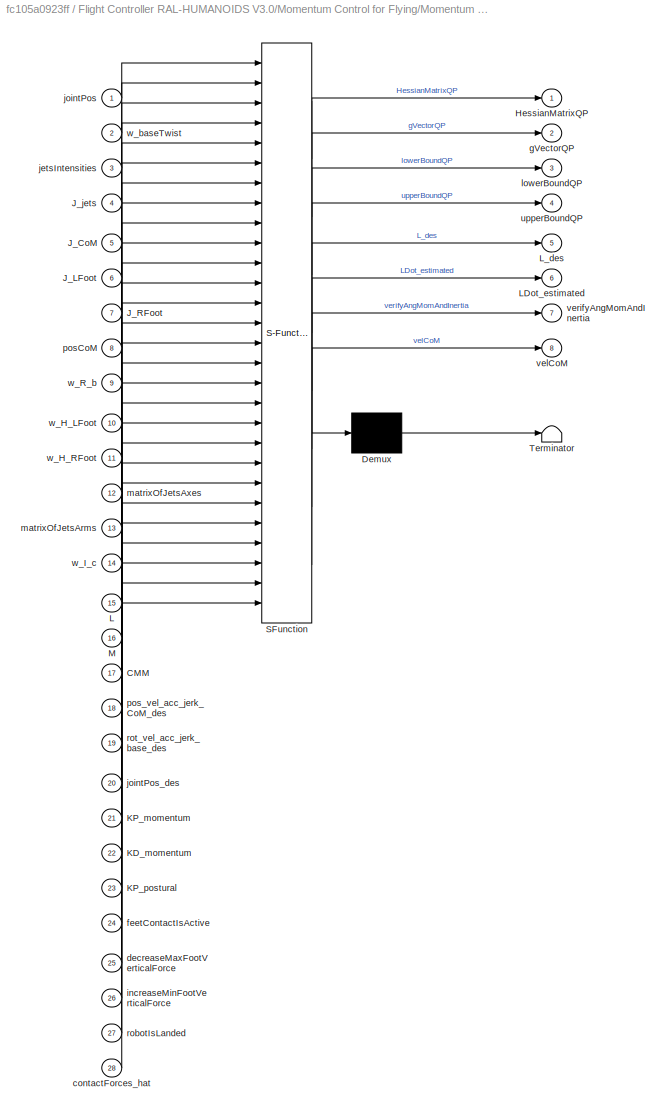
BLOCK [SubSystem] Flight Controller RAL-HUMANOIDS V3.0/Momentum Control for Flying/Momentum Control/Flying Controller Momentum FCN 
  ErrorFcn = Stateflow.Translate.translate
  PermitHierarchicalResolution = ExplicitOnly
  Ports = [28, 8]
  RequestExecContextInheritance = off
  SFBlockType = MATLAB Function
  TreatAsAtomicUnit = on
BLOCK [Demux] Flight Controller RAL-HUMANOIDS V3.0/Momentum Control for Flying/Momentum Control/Flying Controller Momentum FCN / Demux 
  Outputs = 1
  Ports = [1, 1]
BLOCK [S-Function] Flight Controller RAL-HUMANOIDS V3.0/Momentum Control for Flying/Momentum Control/Flying Controller Momentum FCN / SFunction 
  EnableBusSupport = off
  FunctionName = sf_sfun
  Parameters = Config
  PortCounts = [28 9]
  Ports = [28, 9]
  SFcnIsStateOwnerBlock = off
  SFunctionDeploymentMode = off
  Tag = Stateflow S-Function 17
BLOCK [Terminator] Flight Controller RAL-HUMANOIDS V3.0/Momentum Control for Flying/Momentum Control/Flying Controller Momentum FCN / Terminator 
BLOCK [Inport] Flight Controller RAL-HUMANOIDS V3.0/Momentum Control for Flying/Momentum Control/Flying Controller Momentum FCN /CMM
  Port = 17
BLOCK [Outport] Flight Controller RAL-HUMANOIDS V3.0/Momentum Control for Flying/Momentum Control/Flying Controller Momentum FCN /HessianMatrixQP
  VectorParamsAs1DForOutWhenUnconnected = off
BLOCK [Inport] Flight Controller RAL-HUMANOIDS V3.0/Momentum Control for Flying/Momentum Control/Flying Controller Momentum FCN /J_CoM
  Port = 5
BLOCK [Inport] Flight Controller RAL-HUMANOIDS V3.0/Momentum Control for Flying/Momentum Control/Flying Controller Momentum FCN /J_LFoot
  Port = 6
BLOCK [Inport] Flight Controller RAL-HUMANOIDS V3.0/Momentum Control for Flying/Momentum Control/Flying Controller Momentum FCN /J_RFoot
  Port = 7
BLOCK [Inport] Flight Controller RAL-HUMANOIDS V3.0/Momentum Control for Flying/Momentum Control/Flying Controller Momentum FCN /J_jets
  Port = 4
BLOCK [Inport] Flight Controller RAL-HUMANOIDS V3.0/Momentum Control for Flying/Momentum Control/Flying Controller Momentum FCN /KD_momentum
  Port = 22
BLOCK [Inport] Flight Controller RAL-HUMANOIDS V3.0/Momentum Control for Flying/Momentum Control/Flying Controller Momentum FCN /KP_momentum
  Port = 21
BLOCK [Inport] Flight Controller RAL-HUMANOIDS V3.0/Momentum Control for Flying/Momentum Control/Flying Controller Momentum FCN /KP_postural
  Port = 23
BLOCK [Inport] Flight Controller RAL-HUMANOIDS V3.0/Momentum Control for Flying/Momentum Control/Flying Controller Momentum FCN /L
  Port = 15
BLOCK [Outport] Flight Controller RAL-HUMANOIDS V3.0/Momentum Control for Flying/Momentum Control/Flying Controller Momentum FCN /LDot_estimated
  Port = 6
  VectorParamsAs1DForOutWhenUnconnected = off
BLOCK [Outport] Flight Controller RAL-HUMANOIDS V3.0/Momentum Control for Flying/Momentum Control/Flying Controller Momentum FCN /L_des
  Port = 5
  VectorParamsAs1DForOutWhenUnconnected = off
BLOCK [Inport] Flight Controller RAL-HUMANOIDS V3.0/Momentum Control for Flying/Momentum Control/Flying Controller Momentum FCN /M
  Port = 16
BLOCK [Inport] Flight Controller RAL-HUMANOIDS V3.0/Momentum Control for Flying/Momentum Control/Flying Controller Momentum FCN /contactForces_hat
  Port = 28
BLOCK [Inport] Flight Controller RAL-HUMANOIDS V3.0/Momentum Control for Flying/Momentum Control/Flying Controller Momentum FCN /decreaseMaxFootVerticalForce
  Port = 25
BLOCK [Inport] Flight Controller RAL-HUMANOIDS V3.0/Momentum Control for Flying/Momentum Control/Flying Controller Momentum FCN /feetContactIsActive
  Port = 24
BLOCK [Outport] Flight Controller RAL-HUMANOIDS V3.0/Momentum Control for Flying/Momentum Control/Flying Controller Momentum FCN /gVectorQP
  Port = 2
  VectorParamsAs1DForOutWhenUnconnected = off
BLOCK [Inport] Flight Controller RAL-HUMANOIDS V3.0/Momentum Control for Flying/Momentum Control/Flying Controller Momentum FCN /increaseMinFootVerticalForce
  Port = 26
BLOCK [Inport] Flight Controller RAL-HUMANOIDS V3.0/Momentum Control for Flying/Momentum Control/Flying Controller Momentum FCN /jetsIntensities
  Port = 3
BLOCK [Inport] Flight Controller RAL-HUMANOIDS V3.0/Momentum Control for Flying/Momentum Control/Flying Controller Momentum FCN /jointPos
BLOCK [Inport] Flight Controller RAL-HUMANOIDS V3.0/Momentum Control for Flying/Momentum Control/Flying Controller Momentum FCN /jointPos_des
  Port = 20
BLOCK [Outport] Flight Controller RAL-HUMANOIDS V3.0/Momentum Control for Flying/Momentum Control/Flying Controller Momentum FCN /lowerBoundQP
  Port = 3
  VectorParamsAs1DForOutWhenUnconnected = off
BLOCK [Inport] Flight Controller RAL-HUMANOIDS V3.0/Momentum Control for Flying/Momentum Control/Flying Controller Momentum FCN /matrixOfJetsArms
  Port = 13
BLOCK [Inport] Flight Controller RAL-HUMANOIDS V3.0/Momentum Control for Flying/Momentum Control/Flying Controller Momentum FCN /matrixOfJetsAxes
  Port = 12
BLOCK [Inport] Flight Controller RAL-HUMANOIDS V3.0/Momentum Control for Flying/Momentum Control/Flying Controller Momentum FCN /posCoM
  Port = 8
BLOCK [Inport] Flight Controller RAL-HUMANOIDS V3.0/Momentum Control for Flying/Momentum Control/Flying Controller Momentum FCN /pos_vel_acc_jerk_CoM_des
  Port = 18
BLOCK [Inport] Flight Controller RAL-HUMANOIDS V3.0/Momentum Control for Flying/Momentum Control/Flying Controller Momentum FCN /robotIsLanded
  Port = 27
BLOCK [Inport] Flight Controller RAL-HUMANOIDS V3.0/Momentum Control for Flying/Momentum Control/Flying Controller Momentum FCN /rot_vel_acc_jerk_base_des
  Port = 19
BLOCK [Outport] Flight Controller RAL-HUMANOIDS V3.0/Momentum Control for Flying/Momentum Control/Flying Controller Momentum FCN /upperBoundQP
  Port = 4
  VectorParamsAs1DForOutWhenUnconnected = off
BLOCK [Outport] Flight Controller RAL-HUMANOIDS V3.0/Momentum Control for Flying/Momentum Control/Flying Controller Momentum FCN /velCoM
  Port = 8
BLOCK [Outport] Flight Controller RAL-HUMANOIDS V3.0/Momentum Control for Flying/Momentum Control/Flying Controller Momentum FCN /verifyAngMomAndInertia
  Port = 7
  VectorParamsAs1DForOutWhenUnconnected = off
BLOCK [Inport] Flight Controller RAL-HUMANOIDS V3.0/Momentum Control for Flying/Momentum Control/Flying Controller Momentum FCN /w_H_LFoot
  Port = 10
BLOCK [Inport] Flight Controller RAL-HUMANOIDS V3.0/Momentum Control for Flying/Momentum Control/Flying Controller Momentum FCN /w_H_RFoot
  Port = 11
BLOCK [Inport] Flight Controller RAL-HUMANOIDS V3.0/Momentum Control for Flying/Momentum Control/Flying Controller Momentum FCN /w_I_c
  Port = 14
BLOCK [Inport] Flight Controller RAL-HUMANOIDS V3.0/Momentum Control for Flying/Momentum Control/Flying Controller Momentum FCN /w_R_b
  Port = 9
BLOCK [Inport] Flight Controller RAL-HUMANOIDS V3.0/Momentum Control for Flying/Momentum Control/Flying Controller Momentum FCN /w_baseTwist
  Port = 2
BLOCK [Goto] Flight Controller RAL-HUMANOIDS V3.0/Momentum Control for Flying/Momentum Control/Goto
  GotoTag = velCoM
  TagVisibility = global
BLOCK [Goto] Flight Controller RAL-HUMANOIDS V3.0/Momentum Control for Flying/Momentum Control/Goto2
  GotoTag = momentum_des
  TagVisibility = global
BLOCK [Goto] Flight Controller RAL-HUMANOIDS V3.0/Momentum Control for Flying/Momentum Control/Goto5
  GotoTag = verifyAngMomAndInertia
  TagVisibility = global
BLOCK [Goto] Flight Controller RAL-HUMANOIDS V3.0/Momentum Control for Flying/Momentum Control/Goto6
  GotoTag = LDot_estimated
  TagVisibility = global
BLOCK [Outport] Flight Controller RAL-HUMANOIDS V3.0/Momentum Control for Flying/Momentum Control/HessianMatrixQP
  VectorParamsAs1DForOutWhenUnconnected = off
BLOCK [Inport] Flight Controller RAL-HUMANOIDS V3.0/Momentum Control for Flying/Momentum Control/contactForces_hat
BLOCK [Inport] Flight Controller RAL-HUMANOIDS V3.0/Momentum Control for Flying/Momentum Control/dynamics
  Port = 4
BLOCK [Outport] Flight Controller RAL-HUMANOIDS V3.0/Momentum Control for Flying/Momentum Control/gVectorQP
  Port = 2
  VectorParamsAs1DForOutWhenUnconnected = off
BLOCK [Inport] Flight Controller RAL-HUMANOIDS V3.0/Momentum Control for Flying/Momentum Control/gainsAndReferences
  Port = 5
BLOCK [Inport] Flight Controller RAL-HUMANOIDS V3.0/Momentum Control for Flying/Momentum Control/kinematics
  Port = 3
BLOCK [Outport] Flight Controller RAL-HUMANOIDS V3.0/Momentum Control for Flying/Momentum Control/lowerBoundQP
  Port = 3
  VectorParamsAs1DForOutWhenUnconnected = off
BLOCK [Inport] Flight Controller RAL-HUMANOIDS V3.0/Momentum Control for Flying/Momentum Control/stateMachineQuantitites
  Port = 6
BLOCK [Inport] Flight Controller RAL-HUMANOIDS V3.0/Momentum Control for Flying/Momentum Control/systemState
  Port = 2
BLOCK [Outport] Flight Controller RAL-HUMANOIDS V3.0/Momentum Control for Flying/Momentum Control/uppeBoundQP
  Port = 4
  VectorParamsAs1DForOutWhenUnconnected = off
BLOCK [SubSystem] Flight Controller RAL-HUMANOIDS V3.0/Momentum Control for Flying/QP Solver and Integrate Contact Forces Derivative
  Ports = [6, 3]
  RequestExecContextInheritance = off
BLOCK [BusSelector] Flight Controller RAL-HUMANOIDS V3.0/Momentum Control for Flying/QP Solver and Integrate Contact Forces Derivative/Bus Selector1
  OutputSignals = feetContactIsActive
  Ports = [1, 1]
BLOCK [BusSelector] Flight Controller RAL-HUMANOIDS V3.0/Momentum Control for Flying/QP Solver and Integrate Contact Forces Derivative/Bus Selector2
  OutputSignals = contactForces
  Ports = [1, 1]
BLOCK [Goto] Flight Controller RAL-HUMANOIDS V3.0/Momentum Control for Flying/QP Solver and Integrate Contact Forces Derivative/Goto
  GotoTag = contactForces_star
  TagVisibility = global
BLOCK [Goto] Flight Controller RAL-HUMANOIDS V3.0/Momentum Control for Flying/QP Solver and Integrate Contact Forces Derivative/Goto1
  GotoTag = exitFlagQP_momentumControl
  TagVisibility = global
BLOCK [Goto] Flight Controller RAL-HUMANOIDS V3.0/Momentum Control for Flying/QP Solver and Integrate Contact Forces Derivative/Goto3
  GotoTag = jointVel_star
  TagVisibility = global
BLOCK [Goto] Flight Controller RAL-HUMANOIDS V3.0/Momentum Control for Flying/QP Solver and Integrate Contact Forces Derivative/Goto4
  GotoTag = jetsIntensitiesDot_star
  TagVisibility = global
BLOCK [Inport] Flight Controller RAL-HUMANOIDS V3.0/Momentum Control for Flying/QP Solver and Integrate Contact Forces Derivative/HessianMatrixQP
BLOCK [SubSystem] Flight Controller RAL-HUMANOIDS V3.0/Momentum Control for Flying/QP Solver and Integrate Contact Forces Derivative/Integrate the Contact Forces Derivative
  Ports = [3, 1]
  RequestExecContextInheritance = off
BLOCK [DiscreteIntegrator] Flight Controller RAL-HUMANOIDS V3.0/Momentum Control for Flying/QP Solver and Integrate Contact Forces Derivative/Integrate the Contact Forces Derivative/Discrete-Time Integrator1
  ExternalReset = either
  ICPrevOutput = DiscIntNeverNeededParam
  ICPrevScaledInput = DiscIntNeverNeededParam
  InitialCondition = zeros(6,1)
  InitialConditionSetting = Auto
  InitialConditionSource = external
  Ports = [3, 1]
  SampleTime = Config.tStep
BLOCK [Goto] Flight Controller RAL-HUMANOIDS V3.0/Momentum Control for Flying/QP Solver and Integrate Contact Forces Derivative/Integrate the Contact Forces Derivative/Goto
  GotoTag = contactForcesDot_star
  TagVisibility = global
BLOCK [SubSystem] Flight Controller RAL-HUMANOIDS V3.0/Momentum Control for Flying/QP Solver and Integrate Contact Forces Derivative/Integrate the Contact Forces Derivative/Select Integrator Initial Condition
  ErrorFcn = Stateflow.Translate.translate
  PermitHierarchicalResolution = ExplicitOnly
  Ports = [2, 1]
  RequestExecContextInheritance = off
  SFBlockType = MATLAB Function
  TreatAsAtomicUnit = on
BLOCK [Demux] Flight Controller RAL-HUMANOIDS V3.0/Momentum Control for Flying/QP Solver and Integrate Contact Forces Derivative/Integrate the Contact Forces Derivative/Select Integrator Initial Condition/ Demux 
  Outputs = 1
  Ports = [1, 1]
BLOCK [S-Function] Flight Controller RAL-HUMANOIDS V3.0/Momentum Control for Flying/QP Solver and Integrate Contact Forces Derivative/Integrate the Contact Forces Derivative/Select Integrator Initial Condition/ SFunction 
  EnableBusSupport = off
  FunctionName = sf_sfun
  PortCounts = [2 2]
  Ports = [2, 2]
  SFcnIsStateOwnerBlock = off
  SFunctionDeploymentMode = off
  Tag = Stateflow S-Function 31
BLOCK [Terminator] Flight Controller RAL-HUMANOIDS V3.0/Momentum Control for Flying/QP Solver and Integrate Contact Forces Derivative/Integrate the Contact Forces Derivative/Select Integrator Initial Condition/ Terminator 
BLOCK [Inport] Flight Controller RAL-HUMANOIDS V3.0/Momentum Control for Flying/QP Solver and Integrate Contact Forces Derivative/Integrate the Contact Forces Derivative/Select Integrator Initial Condition/contactForces
  Port = 2
BLOCK [Outport] Flight Controller RAL-HUMANOIDS V3.0/Momentum Control for Flying/QP Solver and Integrate Contact Forces Derivative/Integrate the Contact Forces Derivative/Select Integrator Initial Condition/contactForces_0
  VectorParamsAs1DForOutWhenUnconnected = off
BLOCK [Inport] Flight Controller RAL-HUMANOIDS V3.0/Momentum Control for Flying/QP Solver and Integrate Contact Forces Derivative/Integrate the Contact Forces Derivative/Select Integrator Initial Condition/feetContactIsActive
BLOCK [Inport] Flight Controller RAL-HUMANOIDS V3.0/Momentum Control for Flying/QP Solver and Integrate Contact Forces Derivative/Integrate the Contact Forces Derivative/contactForces
  Port = 2
BLOCK [Inport] Flight Controller RAL-HUMANOIDS V3.0/Momentum Control for Flying/QP Solver and Integrate Contact Forces Derivative/Integrate the Contact Forces Derivative/contactForcesDot_star
BLOCK [Outport] Flight Controller RAL-HUMANOIDS V3.0/Momentum Control for Flying/QP Solver and Integrate Contact Forces Derivative/Integrate the Contact Forces Derivative/contactForces_star
  VectorParamsAs1DForOutWhenUnconnected = off
BLOCK [SubSystem] Flight Controller RAL-HUMANOIDS V3.0/Momentum Control for Flying/QP Solver and Integrate Contact Forces Derivative/Integrate the Contact Forces Derivative/deadZone
  Ports = [1, 1]
  RequestExecContextInheritance = off
BLOCK [Constant] Flight Controller RAL-HUMANOIDS V3.0/Momentum Control for Flying/QP Solver and Integrate Contact Forces Derivative/Integrate the Contact Forces Derivative/deadZone/Constant
  Value = Config.sat.deadZoneThreshold
BLOCK [SubSystem] Flight Controller RAL-HUMANOIDS V3.0/Momentum Control for Flying/QP Solver and Integrate Contact Forces Derivative/Integrate the Contact Forces Derivative/deadZone/Deadzone Function
  ErrorFcn = Stateflow.Translate.translate
  PermitHierarchicalResolution = ExplicitOnly
  Ports = [2, 1]
  RequestExecContextInheritance = off
  SFBlockType = MATLAB Function
  TreatAsAtomicUnit = on
BLOCK [Demux] Flight Controller RAL-HUMANOIDS V3.0/Momentum Control for Flying/QP Solver and Integrate Contact Forces Derivative/Integrate the Contact Forces Derivative/deadZone/Deadzone Function/ Demux 
  Outputs = 1
  Ports = [1, 1]
BLOCK [S-Function] Flight Controller RAL-HUMANOIDS V3.0/Momentum Control for Flying/QP Solver and Integrate Contact Forces Derivative/Integrate the Contact Forces Derivative/deadZone/Deadzone Function/ SFunction 
  EnableBusSupport = off
  FunctionName = sf_sfun
  PortCounts = [2 2]
  Ports = [2, 2]
  SFcnIsStateOwnerBlock = off
  SFunctionDeploymentMode = off
  Tag = Stateflow S-Function 23
BLOCK [Terminator] Flight Controller RAL-HUMANOIDS V3.0/Momentum Control for Flying/QP Solver and Integrate Contact Forces Derivative/Integrate the Contact Forces Derivative/deadZone/Deadzone Function/ Terminator 
BLOCK [Inport] Flight Controller RAL-HUMANOIDS V3.0/Momentum Control for Flying/QP Solver and Integrate Contact Forces Derivative/Integrate the Contact Forces Derivative/deadZone/Deadzone Function/thr
  Port = 2
BLOCK [Inport] Flight Controller RAL-HUMANOIDS V3.0/Momentum Control for Flying/QP Solver and Integrate Contact Forces Derivative/Integrate the Contact Forces Derivative/deadZone/Deadzone Function/u
BLOCK [Outport] Flight Controller RAL-HUMANOIDS V3.0/Momentum Control for Flying/QP Solver and Integrate Contact Forces Derivative/Integrate the Contact Forces Derivative/deadZone/Deadzone Function/y
  VectorParamsAs1DForOutWhenUnconnected = off
BLOCK [Inport] Flight Controller RAL-HUMANOIDS V3.0/Momentum Control for Flying/QP Solver and Integrate Contact Forces Derivative/Integrate the Contact Forces Derivative/deadZone/u
BLOCK [Outport] Flight Controller RAL-HUMANOIDS V3.0/Momentum Control for Flying/QP Solver and Integrate Contact Forces Derivative/Integrate the Contact Forces Derivative/deadZone/u_cut
  VectorParamsAs1DForOutWhenUnconnected = off
BLOCK [Inport] Flight Controller RAL-HUMANOIDS V3.0/Momentum Control for Flying/QP Solver and Integrate Contact Forces Derivative/Integrate the Contact Forces Derivative/feetContactIsActive
  Port = 3
BLOCK [SubSystem] Flight Controller RAL-HUMANOIDS V3.0/Momentum Control for Flying/QP Solver and Integrate Contact Forces Derivative/QP momentumControl
  Ports = [5, 4]
  RequestExecContextInheritance = off
BLOCK [Inport] Flight Controller RAL-HUMANOIDS V3.0/Momentum Control for Flying/QP Solver and Integrate Contact Forces Derivative/QP momentumControl/HessianMatrixQP
BLOCK [Logic] Flight Controller RAL-HUMANOIDS V3.0/Momentum Control for Flying/QP Solver and Integrate Contact Forces Derivative/QP momentumControl/NOT
  AllPortsSameDT = off
  IconShape = distinctive
  NameLocation = right
  Operator = NOT
  OutDataTypeStr = boolean
  Ports = [1, 1]
BLOCK [SubSystem] Flight Controller RAL-HUMANOIDS V3.0/Momentum Control for Flying/QP Solver and Integrate Contact Forces Derivative/QP momentumControl/Process QP Inputs Momentum Control
  ErrorFcn = Stateflow.Translate.translate
  PermitHierarchicalResolution = ExplicitOnly
  Ports = [4, 8]
  RequestExecContextInheritance = off
  SFBlockType = MATLAB Function
  TreatAsAtomicUnit = on
BLOCK [Demux] Flight Controller RAL-HUMANOIDS V3.0/Momentum Control for Flying/QP Solver and Integrate Contact Forces Derivative/QP momentumControl/Process QP Inputs Momentum Control/ Demux 
  Outputs = 1
  Ports = [1, 1]
BLOCK [S-Function] Flight Controller RAL-HUMANOIDS V3.0/Momentum Control for Flying/QP Solver and Integrate Contact Forces Derivative/QP momentumControl/Process QP Inputs Momentum Control/ SFunction 
  EnableBusSupport = off
  FunctionName = sf_sfun
  PortCounts = [4 9]
  Ports = [4, 9]
  SFcnIsStateOwnerBlock = off
  SFunctionDeploymentMode = off
  Tag = Stateflow S-Function 1
BLOCK [Terminator] Flight Controller RAL-HUMANOIDS V3.0/Momentum Control for Flying/QP Solver and Integrate Contact Forces Derivative/QP momentumControl/Process QP Inputs Momentum Control/ Terminator 
BLOCK [Outport] Flight Controller RAL-HUMANOIDS V3.0/Momentum Control for Flying/QP Solver and Integrate Contact Forces Derivative/QP momentumControl/Process QP Inputs Momentum Control/H_balancing
BLOCK [Outport] Flight Controller RAL-HUMANOIDS V3.0/Momentum Control for Flying/QP Solver and Integrate Contact Forces Derivative/QP momentumControl/Process QP Inputs Momentum Control/H_flight
  Port = 5
BLOCK [Inport] Flight Controller RAL-HUMANOIDS V3.0/Momentum Control for Flying/QP Solver and Integrate Contact Forces Derivative/QP momentumControl/Process QP Inputs Momentum Control/HessianMatrixQP
BLOCK [Inport] Flight Controller RAL-HUMANOIDS V3.0/Momentum Control for Flying/QP Solver and Integrate Contact Forces Derivative/QP momentumControl/Process QP Inputs Momentum Control/gVectorQP
  Port = 2
BLOCK [Outport] Flight Controller RAL-HUMANOIDS V3.0/Momentum Control for Flying/QP Solver and Integrate Contact Forces Derivative/QP momentumControl/Process QP Inputs Momentum Control/g_balancing
  Port = 2
BLOCK [Outport] Flight Controller RAL-HUMANOIDS V3.0/Momentum Control for Flying/QP Solver and Integrate Contact Forces Derivative/QP momentumControl/Process QP Inputs Momentum Control/g_flight
  Port = 6
BLOCK [Outport] Flight Controller RAL-HUMANOIDS V3.0/Momentum Control for Flying/QP Solver and Integrate Contact Forces Derivative/QP momentumControl/Process QP Inputs Momentum Control/lb_balancing
  Port = 4
BLOCK [Outport] Flight Controller RAL-HUMANOIDS V3.0/Momentum Control for Flying/QP Solver and Integrate Contact Forces Derivative/QP momentumControl/Process QP Inputs Momentum Control/lb_flight
  Port = 8
BLOCK [Inport] Flight Controller RAL-HUMANOIDS V3.0/Momentum Control for Flying/QP Solver and Integrate Contact Forces Derivative/QP momentumControl/Process QP Inputs Momentum Control/lowerBoundQP
  Port = 3
BLOCK [Outport] Flight Controller RAL-HUMANOIDS V3.0/Momentum Control for Flying/QP Solver and Integrate Contact Forces Derivative/QP momentumControl/Process QP Inputs Momentum Control/ub_balancing
  Port = 3
BLOCK [Outport] Flight Controller RAL-HUMANOIDS V3.0/Momentum Control for Flying/QP Solver and Integrate Contact Forces Derivative/QP momentumControl/Process QP Inputs Momentum Control/ub_flight
  Port = 7
BLOCK [Inport] Flight Controller RAL-HUMANOIDS V3.0/Momentum Control for Flying/QP Solver and Integrate Contact Forces Derivative/QP momentumControl/Process QP Inputs Momentum Control/upperBoundQP
  Port = 4
BLOCK [SubSystem] Flight Controller RAL-HUMANOIDS V3.0/Momentum Control for Flying/QP Solver and Integrate Contact Forces Derivative/QP momentumControl/QP momentumControl - balancing
  NameLocation = top
  Ports = [4, 2, 1]
  RequestExecContextInheritance = off
  TreatAsAtomicUnit = on
BLOCK [EnablePort] Flight Controller RAL-HUMANOIDS V3.0/Momentum Control for Flying/QP Solver and Integrate Contact Forces Derivative/QP momentumControl/QP momentumControl - balancing/Enable
  Ports = []
BLOCK [Inport] Flight Controller RAL-HUMANOIDS V3.0/Momentum Control for Flying/QP Solver and Integrate Contact Forces Derivative/QP momentumControl/QP momentumControl - balancing/H
BLOCK [Reference] Flight Controller RAL-HUMANOIDS V3.0/Momentum Control for Flying/QP Solver and Integrate Contact Forces Derivative/QP momentumControl/QP momentumControl - balancing/MatchSignalSizes  REF=WBToolboxLibrary/Utilities/MatchSignalSizes
  Ports = [2, 1]
  SourceBlock = WBToolboxLibrary/Utilities/MatchSignalSizes
  SourceProductName = WholeBodyToolbox
  SourceType = MatchSignalSizes
BLOCK [Reference] Flight Controller RAL-HUMANOIDS V3.0/Momentum Control for Flying/QP Solver and Integrate Contact Forces Derivative/QP momentumControl/QP momentumControl - balancing/QP balancing-momentumControl  REF=WBToolboxLibrary/Utilities/QP
  Ports = [4, 2]
  SourceBlock = WBToolboxLibrary/Utilities/QP
  SourceProductName = WholeBodyToolbox
  SourceType = QP
BLOCK [Outport] Flight Controller RAL-HUMANOIDS V3.0/Momentum Control for Flying/QP Solver and Integrate Contact Forces Derivative/QP momentumControl/QP momentumControl - balancing/QPOutput_balancing
  Port = 2
  VectorParamsAs1DForOutWhenUnconnected = off
BLOCK [Outport] Flight Controller RAL-HUMANOIDS V3.0/Momentum Control for Flying/QP Solver and Integrate Contact Forces Derivative/QP momentumControl/QP momentumControl - balancing/QPStatus_balancing
  VectorParamsAs1DForOutWhenUnconnected = off
BLOCK [Inport] Flight Controller RAL-HUMANOIDS V3.0/Momentum Control for Flying/QP Solver and Integrate Contact Forces Derivative/QP momentumControl/QP momentumControl - balancing/g
  Port = 2
BLOCK [Inport] Flight Controller RAL-HUMANOIDS V3.0/Momentum Control for Flying/QP Solver and Integrate Contact Forces Derivative/QP momentumControl/QP momentumControl - balancing/lb
  Port = 4
BLOCK [Inport] Flight Controller RAL-HUMANOIDS V3.0/Momentum Control for Flying/QP Solver and Integrate Contact Forces Derivative/QP momentumControl/QP momentumControl - balancing/ub
  Port = 3
BLOCK [SubSystem] Flight Controller RAL-HUMANOIDS V3.0/Momentum Control for Flying/QP Solver and Integrate Contact Forces Derivative/QP momentumControl/QP momentumControl - flight
  Ports = [4, 2, 1]
  RequestExecContextInheritance = off
  TreatAsAtomicUnit = on
BLOCK [EnablePort] Flight Controller RAL-HUMANOIDS V3.0/Momentum Control for Flying/QP Solver and Integrate Contact Forces Derivative/QP momentumControl/QP momentumControl - flight/Enable
  Ports = []
BLOCK [Inport] Flight Controller RAL-HUMANOIDS V3.0/Momentum Control for Flying/QP Solver and Integrate Contact Forces Derivative/QP momentumControl/QP momentumControl - flight/H
BLOCK [Reference] Flight Controller RAL-HUMANOIDS V3.0/Momentum Control for Flying/QP Solver and Integrate Contact Forces Derivative/QP momentumControl/QP momentumControl - flight/MatchSignalSizes  REF=WBToolboxLibrary/Utilities/MatchSignalSizes
  Ports = [2, 1]
  SourceBlock = WBToolboxLibrary/Utilities/MatchSignalSizes
  SourceProductName = WholeBodyToolbox
  SourceType = MatchSignalSizes
BLOCK [Reference] Flight Controller RAL-HUMANOIDS V3.0/Momentum Control for Flying/QP Solver and Integrate Contact Forces Derivative/QP momentumControl/QP momentumControl - flight/QP flight-momentumControl  REF=WBToolboxLibrary/Utilities/QP
  Ports = [4, 2]
  SourceBlock = WBToolboxLibrary/Utilities/QP
  SourceProductName = WholeBodyToolbox
  SourceType = QP
BLOCK [Outport] Flight Controller RAL-HUMANOIDS V3.0/Momentum Control for Flying/QP Solver and Integrate Contact Forces Derivative/QP momentumControl/QP momentumControl - flight/QPOutput_flight
  Port = 2
  VectorParamsAs1DForOutWhenUnconnected = off
BLOCK [Outport] Flight Controller RAL-HUMANOIDS V3.0/Momentum Control for Flying/QP Solver and Integrate Contact Forces Derivative/QP momentumControl/QP momentumControl - flight/QPStatus_flight
  VectorParamsAs1DForOutWhenUnconnected = off
BLOCK [Inport] Flight Controller RAL-HUMANOIDS V3.0/Momentum Control for Flying/QP Solver and Integrate Contact Forces Derivative/QP momentumControl/QP momentumControl - flight/g
  Port = 2
BLOCK [Inport] Flight Controller RAL-HUMANOIDS V3.0/Momentum Control for Flying/QP Solver and Integrate Contact Forces Derivative/QP momentumControl/QP momentumControl - flight/lb
  Port = 4
BLOCK [Inport] Flight Controller RAL-HUMANOIDS V3.0/Momentum Control for Flying/QP Solver and Integrate Contact Forces Derivative/QP momentumControl/QP momentumControl - flight/ub
  Port = 3
BLOCK [SubSystem] Flight Controller RAL-HUMANOIDS V3.0/Momentum Control for Flying/QP Solver and Integrate Contact Forces Derivative/QP momentumControl/Select QP momentumControl Output
  Ports = [5, 4]
  RequestExecContextInheritance = off
BLOCK [Constant] Flight Controller RAL-HUMANOIDS V3.0/Momentum Control for Flying/QP Solver and Integrate Contact Forces Derivative/QP momentumControl/Select QP momentumControl Output/Constant
  Value = zeros(12,1)
BLOCK [Demux] Flight Controller RAL-HUMANOIDS V3.0/Momentum Control for Flying/QP Solver and Integrate Contact Forces Derivative/QP momentumControl/Select QP momentumControl Output/Demux
  Outputs = [4;12;Config.N_DOF]
  Ports = [1, 3]
BLOCK [Demux] Flight Controller RAL-HUMANOIDS V3.0/Momentum Control for Flying/QP Solver and Integrate Contact Forces Derivative/QP momentumControl/Select QP momentumControl Output/Demux1
  Outputs = [4;Config.N_DOF]
  Ports = [1, 2]
BLOCK [Inport] Flight Controller RAL-HUMANOIDS V3.0/Momentum Control for Flying/QP Solver and Integrate Contact Forces Derivative/QP momentumControl/Select QP momentumControl Output/QPOutput_balancing
  Port = 2
BLOCK [Inport] Flight Controller RAL-HUMANOIDS V3.0/Momentum Control for Flying/QP Solver and Integrate Contact Forces Derivative/QP momentumControl/Select QP momentumControl Output/QPOutput_flight
  Port = 5
BLOCK [Inport] Flight Controller RAL-HUMANOIDS V3.0/Momentum Control for Flying/QP Solver and Integrate Contact Forces Derivative/QP momentumControl/Select QP momentumControl Output/QPStatus_balancing
BLOCK [Inport] Flight Controller RAL-HUMANOIDS V3.0/Momentum Control for Flying/QP Solver and Integrate Contact Forces Derivative/QP momentumControl/Select QP momentumControl Output/QPStatus_flight
  Port = 4
BLOCK [Switch] Flight Controller RAL-HUMANOIDS V3.0/Momentum Control for Flying/QP Solver and Integrate Contact Forces Derivative/QP momentumControl/Select QP momentumControl Output/Switch
  Criteria = u2 > Threshold
  InputSameDT = off
  SaturateOnIntegerOverflow = off
BLOCK [Switch] Flight Controller RAL-HUMANOIDS V3.0/Momentum Control for Flying/QP Solver and Integrate Contact Forces Derivative/QP momentumControl/Select QP momentumControl Output/Switch1
  Criteria = u2 > Threshold
  InputSameDT = off
  SaturateOnIntegerOverflow = off
BLOCK [Switch] Flight Controller RAL-HUMANOIDS V3.0/Momentum Control for Flying/QP Solver and Integrate Contact Forces Derivative/QP momentumControl/Select QP momentumControl Output/Switch2
  Criteria = u2 > Threshold
  InputSameDT = off
  SaturateOnIntegerOverflow = off
BLOCK [Switch] Flight Controller RAL-HUMANOIDS V3.0/Momentum Control for Flying/QP Solver and Integrate Contact Forces Derivative/QP momentumControl/Select QP momentumControl Output/Switch3
  Criteria = u2 > Threshold
  InputSameDT = off
  SaturateOnIntegerOverflow = off
BLOCK [Outport] Flight Controller RAL-HUMANOIDS V3.0/Momentum Control for Flying/QP Solver and Integrate Contact Forces Derivative/QP momentumControl/Select QP momentumControl Output/contactForcesDot_star
  Port = 2
  VectorParamsAs1DForOutWhenUnconnected = off
BLOCK [Outport] Flight Controller RAL-HUMANOIDS V3.0/Momentum Control for Flying/QP Solver and Integrate Contact Forces Derivative/QP momentumControl/Select QP momentumControl Output/exitFlagQP_momentumControl
  Port = 4
  VectorParamsAs1DForOutWhenUnconnected = off
BLOCK [Inport] Flight Controller RAL-HUMANOIDS V3.0/Momentum Control for Flying/QP Solver and Integrate Contact Forces Derivative/QP momentumControl/Select QP momentumControl Output/feetContactIsActive
  Port = 3
BLOCK [Outport] Flight Controller RAL-HUMANOIDS V3.0/Momentum Control for Flying/QP Solver and Integrate Contact Forces Derivative/QP momentumControl/Select QP momentumControl Output/jetsIntensitiesDot_star
  VectorParamsAs1DForOutWhenUnconnected = off
BLOCK [Outport] Flight Controller RAL-HUMANOIDS V3.0/Momentum Control for Flying/QP Solver and Integrate Contact Forces Derivative/QP momentumControl/Select QP momentumControl Output/jointVel_star
  Port = 3
  VectorParamsAs1DForOutWhenUnconnected = off
BLOCK [Outport] Flight Controller RAL-HUMANOIDS V3.0/Momentum Control for Flying/QP Solver and Integrate Contact Forces Derivative/QP momentumControl/contactForcesDot_star
  Port = 2
  VectorParamsAs1DForOutWhenUnconnected = off
BLOCK [Outport] Flight Controller RAL-HUMANOIDS V3.0/Momentum Control for Flying/QP Solver and Integrate Contact Forces Derivative/QP momentumControl/exitFlagQP_momentumControl
  Port = 4
  VectorParamsAs1DForOutWhenUnconnected = off
BLOCK [Inport] Flight Controller RAL-HUMANOIDS V3.0/Momentum Control for Flying/QP Solver and Integrate Contact Forces Derivative/QP momentumControl/feetContactIsActive
  Port = 5
BLOCK [Inport] Flight Controller RAL-HUMANOIDS V3.0/Momentum Control for Flying/QP Solver and Integrate Contact Forces Derivative/QP momentumControl/gVectorQP
  Port = 2
BLOCK [Outport] Flight Controller RAL-HUMANOIDS V3.0/Momentum Control for Flying/QP Solver and Integrate Contact Forces Derivative/QP momentumControl/jetsIntensitiesDot_star
  VectorParamsAs1DForOutWhenUnconnected = off
BLOCK [Outport] Flight Controller RAL-HUMANOIDS V3.0/Momentum Control for Flying/QP Solver and Integrate Contact Forces Derivative/QP momentumControl/jointVel_star
  Port = 3
  VectorParamsAs1DForOutWhenUnconnected = off
BLOCK [Inport] Flight Controller RAL-HUMANOIDS V3.0/Momentum Control for Flying/QP Solver and Integrate Contact Forces Derivative/QP momentumControl/lowerBoundQP
  Port = 3
BLOCK [Inport] Flight Controller RAL-HUMANOIDS V3.0/Momentum Control for Flying/QP Solver and Integrate Contact Forces Derivative/QP momentumControl/upperBoundQP
  Port = 4
BLOCK [Outport] Flight Controller RAL-HUMANOIDS V3.0/Momentum Control for Flying/QP Solver and Integrate Contact Forces Derivative/contactForces_star
  VectorParamsAs1DForOutWhenUnconnected = off
BLOCK [Inport] Flight Controller RAL-HUMANOIDS V3.0/Momentum Control for Flying/QP Solver and Integrate Contact Forces Derivative/gVectorQP
  Port = 2
BLOCK [Outport] Flight Controller RAL-HUMANOIDS V3.0/Momentum Control for Flying/QP Solver and Integrate Contact Forces Derivative/jetsIntensitiesDot_star
  Port = 2
  VectorParamsAs1DForOutWhenUnconnected = off
BLOCK [Outport] Flight Controller RAL-HUMANOIDS V3.0/Momentum Control for Flying/QP Solver and Integrate Contact Forces Derivative/jointVel_star
  Port = 3
  VectorParamsAs1DForOutWhenUnconnected = off
BLOCK [Inport] Flight Controller RAL-HUMANOIDS V3.0/Momentum Control for Flying/QP Solver and Integrate Contact Forces Derivative/lowerBoundQP
  Port = 3
BLOCK [Inport] Flight Controller RAL-HUMANOIDS V3.0/Momentum Control for Flying/QP Solver and Integrate Contact Forces Derivative/stateMachineQuantities
  Port = 5
BLOCK [Inport] Flight Controller RAL-HUMANOIDS V3.0/Momentum Control for Flying/QP Solver and Integrate Contact Forces Derivative/systemState
  Port = 6
BLOCK [Inport] Flight Controller RAL-HUMANOIDS V3.0/Momentum Control for Flying/QP Solver and Integrate Contact Forces Derivative/upperBoundQP
  Port = 4
BLOCK [Outport] Flight Controller RAL-HUMANOIDS V3.0/Momentum Control for Flying/contactForces_star
  Port = 2
  VectorParamsAs1DForOutWhenUnconnected = off
BLOCK [Inport] Flight Controller RAL-HUMANOIDS V3.0/Momentum Control for Flying/dynamics
  Port = 5
BLOCK [Inport] Flight Controller RAL-HUMANOIDS V3.0/Momentum Control for Flying/gainsAndReferences
  Port = 2
BLOCK [Outport] Flight Controller RAL-HUMANOIDS V3.0/Momentum Control for Flying/jetsIntensitiesDot_star
  Port = 3
  VectorParamsAs1DForOutWhenUnconnected = off
BLOCK [Outport] Flight Controller RAL-HUMANOIDS V3.0/Momentum Control for Flying/jointVel_star
  VectorParamsAs1DForOutWhenUnconnected = off
BLOCK [Inport] Flight Controller RAL-HUMANOIDS V3.0/Momentum Control for Flying/kinematics
  Port = 4
BLOCK [Inport] Flight Controller RAL-HUMANOIDS V3.0/Momentum Control for Flying/stateMachineQuantitites
BLOCK [Inport] Flight Controller RAL-HUMANOIDS V3.0/Momentum Control for Flying/systemState
  Port = 3
BLOCK [Inport] Flight Controller RAL-HUMANOIDS V3.0/dynamics
  Port = 5
BLOCK [Inport] Flight Controller RAL-HUMANOIDS V3.0/gainsAndReferences
  Port = 2
BLOCK [Outport] Flight Controller RAL-HUMANOIDS V3.0/jetsIntensitiesDot_star
  Port = 2
  VectorParamsAs1DForOutWhenUnconnected = off
BLOCK [Outport] Flight Controller RAL-HUMANOIDS V3.0/jointTorques_star
  VectorParamsAs1DForOutWhenUnconnected = off
BLOCK [Inport] Flight Controller RAL-HUMANOIDS V3.0/kinematics
  Port = 4
BLOCK [Inport] Flight Controller RAL-HUMANOIDS V3.0/stateMachineQuantitites
BLOCK [Inport] Flight Controller RAL-HUMANOIDS V3.0/systemState
  Port = 3
BLOCK [SubSystem] Flight State Machine
  Ports = [3, 2]
  RequestExecContextInheritance = off
BLOCK [BusSelector] Flight State Machine/Bus Selector
  OutputSignals = jointPos
  Ports = [1, 1]
BLOCK [SubSystem] Flight State Machine/Compute Gains And References
  Ports = [5, 1]
  RequestExecContextInheritance = off
BLOCK [BusCreator] Flight State Machine/Compute Gains And References/Bus Creator
  DisplayOption = bar
  InheritFromInputs = on
  Inputs = 8
  Ports = [8, 1]
BLOCK [Selector] Flight State Machine/Compute Gains And References/CoM6D -> CoMXYZ5
  IndexOptions = Index vector (dialog),Index vector (dialog)
  Indices = [1 2 3],[1]
  InputPortWidth = 7
  NumberOfDimensions = 2
  OutputSizes = 1,1
  Ports = [1, 1]
BLOCK [SubSystem] Flight State Machine/Compute Gains And References/Compute Gains
  Ports = [0, 5]
  RequestExecContextInheritance = off
BLOCK [Constant] Flight State Machine/Compute Gains And References/Compute Gains/Constant1
  Value = [Config.gains.momentum.KP_linear, Config.gains.momentum.KP_angular]
BLOCK [Constant] Flight State Machine/Compute Gains And References/Compute Gains/Constant2
  Value = [Config.gains.momentum.KD_linear, Config.gains.momentum.KD_angular]
BLOCK [Constant] Flight State Machine/Compute Gains And References/Compute Gains/Constant3
  Value = Config.gains.postural.KP
BLOCK [Constant] Flight State Machine/Compute Gains And References/Compute Gains/Constant4
  Value = Config.gains.torqueControl.KP
BLOCK [Constant] Flight State Machine/Compute Gains And References/Compute Gains/Constant5
  Value = Config.gains.torqueControl.KI
BLOCK [SubSystem] Flight State Machine/Compute Gains And References/Compute Gains/Diagonalize
  ErrorFcn = Stateflow.Translate.translate
  PermitHierarchicalResolution = ExplicitOnly
  Ports = [1, 1]
  RequestExecContextInheritance = off
  SFBlockType = MATLAB Function
  TreatAsAtomicUnit = on
BLOCK [Demux] Flight State Machine/Compute Gains And References/Compute Gains/Diagonalize/ Demux 
  Outputs = 1
  Ports = [1, 1]
BLOCK [S-Function] Flight State Machine/Compute Gains And References/Compute Gains/Diagonalize/ SFunction 
  EnableBusSupport = off
  FunctionName = sf_sfun
  PortCounts = [1 2]
  Ports = [1, 2]
  SFcnIsStateOwnerBlock = off
  SFunctionDeploymentMode = off
  Tag = Stateflow S-Function 14
BLOCK [Terminator] Flight State Machine/Compute Gains And References/Compute Gains/Diagonalize/ Terminator 
BLOCK [Outport] Flight State Machine/Compute Gains And References/Compute Gains/Diagonalize/K
  VectorParamsAs1DForOutWhenUnconnected = off
BLOCK [Inport] Flight State Machine/Compute Gains And References/Compute Gains/Diagonalize/k
BLOCK [SubSystem] Flight State Machine/Compute Gains And References/Compute Gains/Diagonalize1
  ErrorFcn = Stateflow.Translate.translate
  PermitHierarchicalResolution = ExplicitOnly
  Ports = [1, 1]
  RequestExecContextInheritance = off
  SFBlockType = MATLAB Function
  TreatAsAtomicUnit = on
BLOCK [Demux] Flight State Machine/Compute Gains And References/Compute Gains/Diagonalize1/ Demux 
  Outputs = 1
  Ports = [1, 1]
BLOCK [S-Function] Flight State Machine/Compute Gains And References/Compute Gains/Diagonalize1/ SFunction 
  EnableBusSupport = off
  FunctionName = sf_sfun
  PortCounts = [1 2]
  Ports = [1, 2]
  SFcnIsStateOwnerBlock = off
  SFunctionDeploymentMode = off
  Tag = Stateflow S-Function 15
BLOCK [Terminator] Flight State Machine/Compute Gains And References/Compute Gains/Diagonalize1/ Terminator 
BLOCK [Outport] Flight State Machine/Compute Gains And References/Compute Gains/Diagonalize1/K
  VectorParamsAs1DForOutWhenUnconnected = off
BLOCK [Inport] Flight State Machine/Compute Gains And References/Compute Gains/Diagonalize1/k
BLOCK [SubSystem] Flight State Machine/Compute Gains And References/Compute Gains/Diagonalize2
  ErrorFcn = Stateflow.Translate.translate
  PermitHierarchicalResolution = ExplicitOnly
  Ports = [1, 1]
  RequestExecContextInheritance = off
  SFBlockType = MATLAB Function
  TreatAsAtomicUnit = on
BLOCK [Demux] Flight State Machine/Compute Gains And References/Compute Gains/Diagonalize2/ Demux 
  Outputs = 1
  Ports = [1, 1]
BLOCK [S-Function] Flight State Machine/Compute Gains And References/Compute Gains/Diagonalize2/ SFunction 
  EnableBusSupport = off
  FunctionName = sf_sfun
  PortCounts = [1 2]
  Ports = [1, 2]
  SFcnIsStateOwnerBlock = off
  SFunctionDeploymentMode = off
  Tag = Stateflow S-Function 16
BLOCK [Terminator] Flight State Machine/Compute Gains And References/Compute Gains/Diagonalize2/ Terminator 
BLOCK [Outport] Flight State Machine/Compute Gains And References/Compute Gains/Diagonalize2/K
  VectorParamsAs1DForOutWhenUnconnected = off
BLOCK [Inport] Flight State Machine/Compute Gains And References/Compute Gains/Diagonalize2/k
BLOCK [SubSystem] Flight State Machine/Compute Gains And References/Compute Gains/Diagonalize3
  ErrorFcn = Stateflow.Translate.translate
  PermitHierarchicalResolution = ExplicitOnly
  Ports = [1, 1]
  RequestExecContextInheritance = off
  SFBlockType = MATLAB Function
  TreatAsAtomicUnit = on
BLOCK [Demux] Flight State Machine/Compute Gains And References/Compute Gains/Diagonalize3/ Demux 
  Outputs = 1
  Ports = [1, 1]
BLOCK [S-Function] Flight State Machine/Compute Gains And References/Compute Gains/Diagonalize3/ SFunction 
  EnableBusSupport = off
  FunctionName = sf_sfun
  PortCounts = [1 2]
  Ports = [1, 2]
  SFcnIsStateOwnerBlock = off
  SFunctionDeploymentMode = off
  Tag = Stateflow S-Function 19
BLOCK [Terminator] Flight State Machine/Compute Gains And References/Compute Gains/Diagonalize3/ Terminator 
BLOCK [Outport] Flight State Machine/Compute Gains And References/Compute Gains/Diagonalize3/K
  VectorParamsAs1DForOutWhenUnconnected = off
BLOCK [Inport] Flight State Machine/Compute Gains And References/Compute Gains/Diagonalize3/k
BLOCK [SubSystem] Flight State Machine/Compute Gains And References/Compute Gains/Diagonalize4
  ErrorFcn = Stateflow.Translate.translate
  PermitHierarchicalResolution = ExplicitOnly
  Ports = [1, 1]
  RequestExecContextInheritance = off
  SFBlockType = MATLAB Function
  TreatAsAtomicUnit = on
BLOCK [Demux] Flight State Machine/Compute Gains And References/Compute Gains/Diagonalize4/ Demux 
  Outputs = 1
  Ports = [1, 1]
BLOCK [S-Function] Flight State Machine/Compute Gains And References/Compute Gains/Diagonalize4/ SFunction 
  EnableBusSupport = off
  FunctionName = sf_sfun
  PortCounts = [1 2]
  Ports = [1, 2]
  SFcnIsStateOwnerBlock = off
  SFunctionDeploymentMode = off
  Tag = Stateflow S-Function 21
BLOCK [Terminator] Flight State Machine/Compute Gains And References/Compute Gains/Diagonalize4/ Terminator 
BLOCK [Outport] Flight State Machine/Compute Gains And References/Compute Gains/Diagonalize4/K
  VectorParamsAs1DForOutWhenUnconnected = off
BLOCK [Inport] Flight State Machine/Compute Gains And References/Compute Gains/Diagonalize4/k
BLOCK [Goto] Flight State Machine/Compute Gains And References/Compute Gains/Goto1
  GotoTag = KD_momentum
  TagVisibility = global
BLOCK [Goto] Flight State Machine/Compute Gains And References/Compute Gains/Goto2
  GotoTag = KP_momentum
  TagVisibility = global
BLOCK [Goto] Flight State Machine/Compute Gains And References/Compute Gains/Goto3
  GotoTag = KP_postural
  TagVisibility = global
BLOCK [Goto] Flight State Machine/Compute Gains And References/Compute Gains/Goto4
  GotoTag = KI_torqueControl
  TagVisibility = global
BLOCK [Goto] Flight State Machine/Compute Gains And References/Compute Gains/Goto5
  GotoTag = KP_torqueControl
  TagVisibility = global
BLOCK [Outport] Flight State Machine/Compute Gains And References/Compute Gains/KD_momentum
  Port = 2
  VectorParamsAs1DForOutWhenUnconnected = off
BLOCK [Outport] Flight State Machine/Compute Gains And References/Compute Gains/KI_torqueControl
  Port = 4
  VectorParamsAs1DForOutWhenUnconnected = off
BLOCK [Outport] Flight State Machine/Compute Gains And References/Compute Gains/KP_momentum
  VectorParamsAs1DForOutWhenUnconnected = off
BLOCK [Outport] Flight State Machine/Compute Gains And References/Compute Gains/KP_postural
  Port = 3
  VectorParamsAs1DForOutWhenUnconnected = off
BLOCK [Outport] Flight State Machine/Compute Gains And References/Compute Gains/KP_torqueControl
  Port = 5
  VectorParamsAs1DForOutWhenUnconnected = off
BLOCK [Constant] Flight State Machine/Compute Gains And References/Constant
  Value = Config.references.gainSmoothingRotation
BLOCK [Constant] Flight State Machine/Compute Gains And References/Constant1
  Value = Config.references.smoothingTimeCoM
BLOCK [Goto] Flight State Machine/Compute Gains And References/Goto
  GotoTag = jointPos_des
  TagVisibility = global
BLOCK [Goto] Flight State Machine/Compute Gains And References/Goto1
  GotoTag = rot_vel_acc_jerk_base_des
  TagVisibility = global
BLOCK [Goto] Flight State Machine/Compute Gains And References/Goto2
  GotoTag = posCoM_des
  TagVisibility = global
BLOCK [SubSystem] Flight State Machine/Compute Gains And References/Smooth CoM and Base References
  Ports = [4, 2]
  RequestExecContextInheritance = off
BLOCK [Constant] Flight State Machine/Compute Gains And References/Smooth CoM and Base References/Constant
  Value = Config.references.SMOOTH_BASE_ROT_REFERENCES
BLOCK [Constant] Flight State Machine/Compute Gains And References/Smooth CoM and Base References/Constant1
  Value = Config.references.SMOOTH_COM_POS_REFERENCES
BLOCK [SubSystem] Flight State Machine/Compute Gains And References/Smooth CoM and Base References/Smooth Position References
  Ports = [2, 1]
  RequestExecContextInheritance = off
BLOCK [Selector] Flight State Machine/Compute Gains And References/Smooth CoM and Base References/Smooth Position References/CoM6D -> CoMXYZ5
  IndexOptions = Index vector (dialog),Index vector (dialog)
  Indices = [1 2 3],[1]
  InputPortWidth = 7
  NumberOfDimensions = 2
  OutputSizes = 1,1
  Ports = [1, 1]
BLOCK [Reference] Flight State Machine/Compute Gains And References/Smooth CoM and Base References/Smooth Position References/Compute Smooth Jerk Reference  REF=WBToolboxLibrary/Utilities/MinimumJerkTrajectoryGenerator
  Ports = [1, 2]
  SourceBlock = WBToolboxLibrary/Utilities/MinimumJerkTrajectoryGenerator
  SourceProductName = WholeBodyToolbox
  SourceType = MinimumJerkTrajectoryGenerator
BLOCK [Concatenate] Flight State Machine/Compute Gains And References/Smooth CoM and Base References/Smooth Position References/Matrix Concatenate
  ConcatenateDimension = 2
  Mode = Multidimensional array
  NumInputs = 4
  Ports = [4, 1]
BLOCK [Reference] Flight State Machine/Compute Gains And References/Smooth CoM and Base References/Smooth Position References/MinimumJerkTrajectoryGenerator  REF=WBToolboxLibrary/Utilities/MinimumJerkTrajectoryGenerator
  Ports = [2, 3]
  SourceBlock = WBToolboxLibrary/Utilities/MinimumJerkTrajectoryGenerator
  SourceProductName = WholeBodyToolbox
  SourceType = MinimumJerkTrajectoryGenerator
BLOCK [Terminator] Flight State Machine/Compute Gains And References/Smooth CoM and Base References/Smooth Position References/Terminator
BLOCK [Inport] Flight State Machine/Compute Gains And References/Smooth CoM and Base References/Smooth Position References/pos_vel_acc_jerk_CoM_des
  Port = 2
BLOCK [Outport] Flight State Machine/Compute Gains And References/Smooth CoM and Base References/Smooth Position References/pos_vel_acc_jerk_CoM_des_smooth
  VectorParamsAs1DForOutWhenUnconnected = off
BLOCK [Inport] Flight State Machine/Compute Gains And References/Smooth CoM and Base References/Smooth Position References/smoothingTimeCoMPos
BLOCK [SubSystem] Flight State Machine/Compute Gains And References/Smooth CoM and Base References/Smooth Reference Orientations
  Ports = [2, 1]
  RequestExecContextInheritance = off
BLOCK [Concatenate] Flight State Machine/Compute Gains And References/Smooth CoM and Base References/Smooth Reference Orientations/Matrix Concatenate6
  ConcatenateDimension = 2
  Mode = Multidimensional array
  NameLocation = top
  NumInputs = 4
  Ports = [4, 1]
BLOCK [Reference] Flight State Machine/Compute Gains And References/Smooth CoM and Base References/Smooth Reference Orientations/MinimumJerkTrajectoryGenerator  REF=WBToolboxLibrary/Utilities/MinimumJerkTrajectoryGenerator
  Ports = [1, 3]
  SourceBlock = WBToolboxLibrary/Utilities/MinimumJerkTrajectoryGenerator
  SourceProductName = WholeBodyToolbox
  SourceType = MinimumJerkTrajectoryGenerator
BLOCK [SubSystem] Flight State Machine/Compute Gains And References/Smooth CoM and Base References/Smooth Reference Orientations/Rotational PID Controller
  Ports = [2, 2]
  RequestExecContextInheritance = off
BLOCK [SubSystem] Flight State Machine/Compute Gains And References/Smooth CoM and Base References/Smooth Reference Orientations/Rotational PID Controller/Compute Rotation Matrix Derivative
  ErrorFcn = Stateflow.Translate.translate
  PermitHierarchicalResolution = ExplicitOnly
  Ports = [3, 2]
  RequestExecContextInheritance = off
  SFBlockType = MATLAB Function
  TreatAsAtomicUnit = on
BLOCK [Demux] Flight State Machine/Compute Gains And References/Smooth CoM and Base References/Smooth Reference Orientations/Rotational PID Controller/Compute Rotation Matrix Derivative/ Demux 
  Outputs = 1
  Ports = [1, 1]
BLOCK [S-Function] Flight State Machine/Compute Gains And References/Smooth CoM and Base References/Smooth Reference Orientations/Rotational PID Controller/Compute Rotation Matrix Derivative/ SFunction 
  EnableBusSupport = off
  FunctionName = sf_sfun
  PortCounts = [3 3]
  Ports = [3, 3]
  SFcnIsStateOwnerBlock = off
  SFunctionDeploymentMode = off
  Tag = Stateflow S-Function 43
BLOCK [Terminator] Flight State Machine/Compute Gains And References/Smooth CoM and Base References/Smooth Reference Orientations/Rotational PID Controller/Compute Rotation Matrix Derivative/ Terminator 
BLOCK [Outport] Flight State Machine/Compute Gains And References/Smooth CoM and Base References/Smooth Reference Orientations/Rotational PID Controller/Compute Rotation Matrix Derivative/RDot
  Port = 2
  VectorParamsAs1DForOutWhenUnconnected = off
BLOCK [Outport] Flight State Machine/Compute Gains And References/Smooth CoM and Base References/Smooth Reference Orientations/Rotational PID Controller/Compute Rotation Matrix Derivative/b_omega_b
  VectorParamsAs1DForOutWhenUnconnected = off
BLOCK [Inport] Flight State Machine/Compute Gains And References/Smooth CoM and Base References/Smooth Reference Orientations/Rotational PID Controller/Compute Rotation Matrix Derivative/gainSmoothingBaseRot
BLOCK [Inport] Flight State Machine/Compute Gains And References/Smooth CoM and Base References/Smooth Reference Orientations/Rotational PID Controller/Compute Rotation Matrix Derivative/w_R_b
  Port = 3
BLOCK [Inport] Flight State Machine/Compute Gains And References/Smooth CoM and Base References/Smooth Reference Orientations/Rotational PID Controller/Compute Rotation Matrix Derivative/w_R_b_des
  Port = 2
BLOCK [DiscreteIntegrator] Flight State Machine/Compute Gains And References/Smooth CoM and Base References/Smooth Reference Orientations/Rotational PID Controller/Discrete-Time Integrator2
  ICPrevOutput = DiscIntNeverNeededParam
  ICPrevScaledInput = DiscIntNeverNeededParam
  InitialCondition = zeros(3,1)
  InitialConditionSetting = Auto
  InitialConditionSource = external
  Ports = [2, 1]
  SampleTime = Config.tStep
BLOCK [Outport] Flight State Machine/Compute Gains And References/Smooth CoM and Base References/Smooth Reference Orientations/Rotational PID Controller/body_omega_b_des_smooth
  Port = 2
  VectorParamsAs1DForOutWhenUnconnected = off
BLOCK [Inport] Flight State Machine/Compute Gains And References/Smooth CoM and Base References/Smooth Reference Orientations/Rotational PID Controller/gainSmoothingBaseRot
  Port = 2
BLOCK [Reference] Flight State Machine/Compute Gains And References/Smooth CoM and Base References/Smooth Reference Orientations/Rotational PID Controller/holder   REF=WBToolboxLibrary/Utilities/holder

  Ports = [1, 1]
  SourceBlock = WBToolboxLibrary/Utilities/holder
  SourceProductName = WholeBodyToolbox
  SourceType = Holder
BLOCK [Inport] Flight State Machine/Compute Gains And References/Smooth CoM and Base References/Smooth Reference Orientations/Rotational PID Controller/w_R_b_des
BLOCK [Outport] Flight State Machine/Compute Gains And References/Smooth CoM and Base References/Smooth Reference Orientations/Rotational PID Controller/w_R_b_des_smooth
  VectorParamsAs1DForOutWhenUnconnected = off
BLOCK [Selector] Flight State Machine/Compute Gains And References/Smooth CoM and Base References/Smooth Reference Orientations/Selector
  IndexOptions = Index vector (dialog),Index vector (dialog)
  Indices = [1:3],[1:3]
  InputPortWidth = 3
  NumberOfDimensions = 2
  OutputSizes = 1,1
  Ports = [1, 1]
BLOCK [Inport] Flight State Machine/Compute Gains And References/Smooth CoM and Base References/Smooth Reference Orientations/gainSmoothingBaseRot
  Port = 2
BLOCK [Outport] Flight State Machine/Compute Gains And References/Smooth CoM and Base References/Smooth Reference Orientations/rot_acc_vel_jerk_base_des_smooth
  VectorParamsAs1DForOutWhenUnconnected = off
BLOCK [Inport] Flight State Machine/Compute Gains And References/Smooth CoM and Base References/Smooth Reference Orientations/rot_vel_acc_jerk_base_des
BLOCK [Switch] Flight State Machine/Compute Gains And References/Smooth CoM and Base References/Switch
  Criteria = u2 > Threshold
  InputSameDT = off
  SaturateOnIntegerOverflow = off
BLOCK [Switch] Flight State Machine/Compute Gains And References/Smooth CoM and Base References/Switch2
  Criteria = u2 > Threshold
  InputSameDT = off
  SaturateOnIntegerOverflow = off
BLOCK [Inport] Flight State Machine/Compute Gains And References/Smooth CoM and Base References/gainSmoothingBaseRot
  Port = 3
BLOCK [Inport] Flight State Machine/Compute Gains And References/Smooth CoM and Base References/pos_vel_acc_jerk_CoM_des
BLOCK [Outport] Flight State Machine/Compute Gains And References/Smooth CoM and Base References/pos_vel_acc_jerk_CoM_des_smooth
  VectorParamsAs1DForOutWhenUnconnected = off
BLOCK [Inport] Flight State Machine/Compute Gains And References/Smooth CoM and Base References/rot_vel_acc_jerk_base_des
  Port = 4
BLOCK [Outport] Flight State Machine/Compute Gains And References/Smooth CoM and Base References/rot_vel_acc_jerk_base_des_smooth
  Port = 2
  VectorParamsAs1DForOutWhenUnconnected = off
BLOCK [Inport] Flight State Machine/Compute Gains And References/Smooth CoM and Base References/smoothingTimeCoMPos
  Port = 2
BLOCK [SubSystem] Flight State Machine/Compute Gains And References/Trajectory Generator
  Ports = [4, 2]
  RequestExecContextInheritance = off
BLOCK [BusSelector] Flight State Machine/Compute Gains And References/Trajectory Generator/Bus Selector
  OutputSignals = w_H_b,jointPos
  Ports = [1, 2]
BLOCK [BusSelector] Flight State Machine/Compute Gains And References/Trajectory Generator/Bus Selector1
  OutputSignals = feetContactIsActive,oneFootIsInContact
  Ports = [1, 2]
BLOCK [Clock] Flight State Machine/Compute Gains And References/Trajectory Generator/Clock
BLOCK [SubSystem] Flight State Machine/Compute Gains And References/Trajectory Generator/Compute CoM and Base Rotation References
  ErrorFcn = Stateflow.Translate.translate
  PermitHierarchicalResolution = ExplicitOnly
  Ports = [13, 2]
  RequestExecContextInheritance = off
  SFBlockType = MATLAB Function
  TreatAsAtomicUnit = on
BLOCK [Demux] Flight State Machine/Compute Gains And References/Trajectory Generator/Compute CoM and Base Rotation References/ Demux 
  Outputs = 1
  Ports = [1, 1]
BLOCK [S-Function] Flight State Machine/Compute Gains And References/Trajectory Generator/Compute CoM and Base Rotation References/ SFunction 
  EnableBusSupport = off
  FunctionName = sf_sfun
  Parameters = Config
  PortCounts = [13 3]
  Ports = [13, 3]
  SFcnIsStateOwnerBlock = off
  SFunctionDeploymentMode = off
  Tag = Stateflow S-Function 37
BLOCK [Terminator] Flight State Machine/Compute Gains And References/Trajectory Generator/Compute CoM and Base Rotation References/ Terminator 
BLOCK [Inport] Flight State Machine/Compute Gains And References/Trajectory Generator/Compute CoM and Base Rotation References/feetContactIsActive
  Port = 11
BLOCK [Inport] Flight State Machine/Compute Gains And References/Trajectory Generator/Compute CoM and Base Rotation References/goLandingPos
  Port = 10
BLOCK [Inport] Flight State Machine/Compute Gains And References/Trajectory Generator/Compute CoM and Base Rotation References/moveFront
  Port = 3
BLOCK [Inport] Flight State Machine/Compute Gains And References/Trajectory Generator/Compute CoM and Base Rotation References/moveLateral
  Port = 4
BLOCK [Inport] Flight State Machine/Compute Gains And References/Trajectory Generator/Compute CoM and Base Rotation References/moveUpDown
  Port = 5
BLOCK [Inport] Flight State Machine/Compute Gains And References/Trajectory Generator/Compute CoM and Base Rotation References/oneFootIsInContact
  Port = 12
BLOCK [Inport] Flight State Machine/Compute Gains And References/Trajectory Generator/Compute CoM and Base Rotation References/posCoM_init
BLOCK [Outport] Flight State Machine/Compute Gains And References/Trajectory Generator/Compute CoM and Base Rotation References/pos_vel_acc_jerk_CoM_des
  VectorParamsAs1DForOutWhenUnconnected = off
BLOCK [Outport] Flight State Machine/Compute Gains And References/Trajectory Generator/Compute CoM and Base Rotation References/rot_vel_acc_jerk_base_des
  Port = 2
  VectorParamsAs1DForOutWhenUnconnected = off
BLOCK [Inport] Flight State Machine/Compute Gains And References/Trajectory Generator/Compute CoM and Base Rotation References/rotatePitch
  Port = 7
BLOCK [Inport] Flight State Machine/Compute Gains And References/Trajectory Generator/Compute CoM and Base Rotation References/rotateRoll
  Port = 6
BLOCK [Inport] Flight State Machine/Compute Gains And References/Trajectory Generator/Compute CoM and Base Rotation References/rotateYaw
  Port = 8
BLOCK [Inport] Flight State Machine/Compute Gains And References/Trajectory Generator/Compute CoM and Base Rotation References/t
  Port = 13
BLOCK [Inport] Flight State Machine/Compute Gains And References/Trajectory Generator/Compute CoM and Base Rotation References/turbo_mode
  Port = 9
BLOCK [Inport] Flight State Machine/Compute Gains And References/Trajectory Generator/Compute CoM and Base Rotation References/w_R_b_init
  Port = 2
BLOCK [SubSystem] Flight State Machine/Compute Gains And References/Trajectory Generator/Detect Robot Movement Request From Joystick
  ErrorFcn = Stateflow.Translate.translate
  PermitHierarchicalResolution = ExplicitOnly
  Ports = [2, 8]
  RequestExecContextInheritance = off
  SFBlockType = MATLAB Function
  TreatAsAtomicUnit = on
BLOCK [Demux] Flight State Machine/Compute Gains And References/Trajectory Generator/Detect Robot Movement Request From Joystick/ Demux 
  Outputs = 1
  Ports = [1, 1]
BLOCK [S-Function] Flight State Machine/Compute Gains And References/Trajectory Generator/Detect Robot Movement Request From Joystick/ SFunction 
  EnableBusSupport = off
  FunctionName = sf_sfun
  PortCounts = [2 9]
  Ports = [2, 9]
  SFcnIsStateOwnerBlock = off
  SFunctionDeploymentMode = off
  Tag = Stateflow S-Function 38
BLOCK [Terminator] Flight State Machine/Compute Gains And References/Trajectory Generator/Detect Robot Movement Request From Joystick/ Terminator 
BLOCK [Outport] Flight State Machine/Compute Gains And References/Trajectory Generator/Detect Robot Movement Request From Joystick/goLandingPos
  Port = 8
  VectorParamsAs1DForOutWhenUnconnected = off
BLOCK [Inport] Flight State Machine/Compute Gains And References/Trajectory Generator/Detect Robot Movement Request From Joystick/joyAxes
BLOCK [Inport] Flight State Machine/Compute Gains And References/Trajectory Generator/Detect Robot Movement Request From Joystick/joyButtons
  Port = 2
BLOCK [Outport] Flight State Machine/Compute Gains And References/Trajectory Generator/Detect Robot Movement Request From Joystick/moveFront
  VectorParamsAs1DForOutWhenUnconnected = off
BLOCK [Outport] Flight State Machine/Compute Gains And References/Trajectory Generator/Detect Robot Movement Request From Joystick/moveLateral
  Port = 2
  VectorParamsAs1DForOutWhenUnconnected = off
BLOCK [Outport] Flight State Machine/Compute Gains And References/Trajectory Generator/Detect Robot Movement Request From Joystick/moveUpDown
  Port = 3
  VectorParamsAs1DForOutWhenUnconnected = off
BLOCK [Outport] Flight State Machine/Compute Gains And References/Trajectory Generator/Detect Robot Movement Request From Joystick/rotatePitch
  Port = 5
  VectorParamsAs1DForOutWhenUnconnected = off
BLOCK [Outport] Flight State Machine/Compute Gains And References/Trajectory Generator/Detect Robot Movement Request From Joystick/rotateRoll
  Port = 4
  VectorParamsAs1DForOutWhenUnconnected = off
BLOCK [Outport] Flight State Machine/Compute Gains And References/Trajectory Generator/Detect Robot Movement Request From Joystick/rotateYaw
  Port = 6
  VectorParamsAs1DForOutWhenUnconnected = off
BLOCK [Outport] Flight State Machine/Compute Gains And References/Trajectory Generator/Detect Robot Movement Request From Joystick/turbo_mode
  Port = 7
  VectorParamsAs1DForOutWhenUnconnected = off
BLOCK [Reference] Flight State Machine/Compute Gains And References/Trajectory Generator/ForwardKinematics  REF=WBToolboxLibrary/Model/Kinematics/ForwardKinematics
  Ports = [2, 1]
  SourceBlock = WBToolboxLibrary/Model/Kinematics/ForwardKinematics
  SourceProductName = WholeBodyToolbox
  SourceType = ForwardKinematics
BLOCK [Selector] Flight State Machine/Compute Gains And References/Trajectory Generator/Selector
  IndexOptions = Index vector (dialog),Index vector (dialog)
  Indices = [1 2 3],[1 2 3]
  InputPortWidth = 3
  NumberOfDimensions = 2
  OutputSizes = 1,1
  Ports = [1, 1]
BLOCK [Selector] Flight State Machine/Compute Gains And References/Trajectory Generator/Selector1
  IndexOptions = Index vector (dialog),Index vector (dialog)
  Indices = [1 2 3],[4]
  InputPortWidth = 3
  NumberOfDimensions = 2
  OutputSizes = 1,1
  Ports = [1, 1]
BLOCK [Reference] Flight State Machine/Compute Gains And References/Trajectory Generator/holder   REF=WBToolboxLibrary/Utilities/holder

  Ports = [1, 1]
  SourceBlock = WBToolboxLibrary/Utilities/holder
  SourceProductName = WholeBodyToolbox
  SourceType = Holder
BLOCK [Reference] Flight State Machine/Compute Gains And References/Trajectory Generator/holder 1  REF=WBToolboxLibrary/Utilities/holder

  Ports = [1, 1]
  SourceBlock = WBToolboxLibrary/Utilities/holder
  SourceProductName = WholeBodyToolbox
  SourceType = Holder
BLOCK [Inport] Flight State Machine/Compute Gains And References/Trajectory Generator/joyAxes
BLOCK [Inport] Flight State Machine/Compute Gains And References/Trajectory Generator/joyButtons
  Port = 2
BLOCK [Outport] Flight State Machine/Compute Gains And References/Trajectory Generator/pos_vel_acc_jerk_CoM_des
  VectorParamsAs1DForOutWhenUnconnected = off
BLOCK [Outport] Flight State Machine/Compute Gains And References/Trajectory Generator/rot_vel_acc_jerk_base_des
  Port = 2
  VectorParamsAs1DForOutWhenUnconnected = off
BLOCK [Inport] Flight State Machine/Compute Gains And References/Trajectory Generator/stateMachineQuantities
  Port = 4
BLOCK [Inport] Flight State Machine/Compute Gains And References/Trajectory Generator/systemState
  Port = 3
BLOCK [Outport] Flight State Machine/Compute Gains And References/gainsAndReferences
  VectorParamsAs1DForOutWhenUnconnected = off
BLOCK [Reference] Flight State Machine/Compute Gains And References/holder 2  REF=WBToolboxLibrary/Utilities/holder

  Ports = [1, 1]
  SourceBlock = WBToolboxLibrary/Utilities/holder
  SourceProductName = WholeBodyToolbox
  SourceType = Holder
BLOCK [Inport] Flight State Machine/Compute Gains And References/jointPos
  Port = 4
BLOCK [Inport] Flight State Machine/Compute Gains And References/joyAxes
BLOCK [Inport] Flight State Machine/Compute Gains And References/joyButtons
  Port = 2
BLOCK [Inport] Flight State Machine/Compute Gains And References/stateMachineQuantities
  Port = 5
BLOCK [Inport] Flight State Machine/Compute Gains And References/systemState
  Port = 3
BLOCK [SubSystem] Flight State Machine/Take Off//Landing State Detector
  Ports = [2, 1]
  RequestExecContextInheritance = off
BLOCK [BusCreator] Flight State Machine/Take Off//Landing State Detector/Bus Creator
  DisplayOption = bar
  InheritFromInputs = on
  Inputs = 6
  Ports = [6, 1]
BLOCK [BusSelector] Flight State Machine/Take Off//Landing State Detector/Bus Selector
  OutputSignals = contactForces
  Ports = [1, 1]
BLOCK [Demux] Flight State Machine/Take Off//Landing State Detector/Demux
  Outputs = [6;6]
  Ports = [1, 2]
BLOCK [Goto] Flight State Machine/Take Off//Landing State Detector/Goto3
  GotoTag = stateMachineQuantities
  TagVisibility = global
BLOCK [SubSystem] Flight State Machine/Take Off//Landing State Detector/MATLAB Function
  ErrorFcn = Stateflow.Translate.translate
  PermitHierarchicalResolution = ExplicitOnly
  Ports = [2, 3]
  RequestExecContextInheritance = off
  SFBlockType = MATLAB Function
  TreatAsAtomicUnit = on
BLOCK [Demux] Flight State Machine/Take Off//Landing State Detector/MATLAB Function/ Demux 
  Outputs = 1
  Ports = [1, 1]
BLOCK [S-Function] Flight State Machine/Take Off//Landing State Detector/MATLAB Function/ SFunction 
  EnableBusSupport = off
  FunctionName = sf_sfun
  Parameters = Config
  PortCounts = [2 4]
  Ports = [2, 4]
  SFcnIsStateOwnerBlock = off
  SFunctionDeploymentMode = off
  Tag = Stateflow S-Function 9
BLOCK [Terminator] Flight State Machine/Take Off//Landing State Detector/MATLAB Function/ Terminator 
BLOCK [Outport] Flight State Machine/Take Off//Landing State Detector/MATLAB Function/feetContactIsActive
  VectorParamsAs1DForOutWhenUnconnected = off
BLOCK [Outport] Flight State Machine/Take Off//Landing State Detector/MATLAB Function/oneFootIsInContact
  Port = 3
  VectorParamsAs1DForOutWhenUnconnected = off
BLOCK [Outport] Flight State Machine/Take Off//Landing State Detector/MATLAB Function/robotIsLanded
  Port = 2
  VectorParamsAs1DForOutWhenUnconnected = off
BLOCK [Inport] Flight State Machine/Take Off//Landing State Detector/MATLAB Function/wrench_l
BLOCK [Inport] Flight State Machine/Take Off//Landing State Detector/MATLAB Function/wrench_r
  Port = 2
BLOCK [SubSystem] Flight State Machine/Take Off//Landing State Detector/Vertical Forces Control
  ErrorFcn = Stateflow.Translate.translate
  PermitHierarchicalResolution = ExplicitOnly
  Ports = [1, 3]
  RequestExecContextInheritance = off
  SFBlockType = MATLAB Function
  TreatAsAtomicUnit = on
BLOCK [Demux] Flight State Machine/Take Off//Landing State Detector/Vertical Forces Control/ Demux 
  Outputs = 1
  Ports = [1, 1]
BLOCK [S-Function] Flight State Machine/Take Off//Landing State Detector/Vertical Forces Control/ SFunction 
  EnableBusSupport = off
  FunctionName = sf_sfun
  PortCounts = [1 4]
  Ports = [1, 4]
  SFcnIsStateOwnerBlock = off
  SFunctionDeploymentMode = off
  Tag = Stateflow S-Function 24
BLOCK [Terminator] Flight State Machine/Take Off//Landing State Detector/Vertical Forces Control/ Terminator 
BLOCK [Outport] Flight State Machine/Take Off//Landing State Detector/Vertical Forces Control/activateEqConstrTorqueControl
  Port = 3
  VectorParamsAs1DForOutWhenUnconnected = off
BLOCK [Outport] Flight State Machine/Take Off//Landing State Detector/Vertical Forces Control/decreaseMaxFootVerticalForce
  VectorParamsAs1DForOutWhenUnconnected = off
BLOCK [Outport] Flight State Machine/Take Off//Landing State Detector/Vertical Forces Control/increaseMinFootVerticalForce
  Port = 2
  VectorParamsAs1DForOutWhenUnconnected = off
BLOCK [Inport] Flight State Machine/Take Off//Landing State Detector/Vertical Forces Control/joyButtons
BLOCK [Inport] Flight State Machine/Take Off//Landing State Detector/joyButtons
  Port = 2
BLOCK [Outport] Flight State Machine/Take Off//Landing State Detector/stateMachineQuantities
  VectorParamsAs1DForOutWhenUnconnected = off
BLOCK [Inport] Flight State Machine/Take Off//Landing State Detector/systemState
BLOCK [Outport] Flight State Machine/gainsAndReferences
  Port = 2
  VectorParamsAs1DForOutWhenUnconnected = off
BLOCK [Inport] Flight State Machine/joyAxes
  Port = 2
BLOCK [Inport] Flight State Machine/joyButtons
BLOCK [Outport] Flight State Machine/stateMachineQuantities
  VectorParamsAs1DForOutWhenUnconnected = off
BLOCK [Inport] Flight State Machine/systemState
  Port = 3
BLOCK [SubSystem] Get System State
  Ports = [7, 1]
  RequestExecContextInheritance = off
BLOCK [BusCreator] Get System State/Bus Creator1
  DisplayOption = bar
  InheritFromInputs = on
  Inputs = 8
  Ports = [8, 1]
BLOCK [SubSystem] Get System State/Change Contact Forces Representation
  Ports = [3, 1]
  RequestExecContextInheritance = off
BLOCK [SubSystem] Get System State/Change Contact Forces Representation/Change Contact Forces Representation
  ErrorFcn = Stateflow.Translate.translate
  PermitHierarchicalResolution = ExplicitOnly
  Ports = [3, 2]
  RequestExecContextInheritance = off
  SFBlockType = MATLAB Function
  TreatAsAtomicUnit = on
BLOCK [Demux] Get System State/Change Contact Forces Representation/Change Contact Forces Representation/ Demux 
  Outputs = 1
  Ports = [1, 1]
BLOCK [S-Function] Get System State/Change Contact Forces Representation/Change Contact Forces Representation/ SFunction 
  EnableBusSupport = off
  FunctionName = sf_sfun
  PortCounts = [3 3]
  Ports = [3, 3]
  SFcnIsStateOwnerBlock = off
  SFunctionDeploymentMode = off
  Tag = Stateflow S-Function 13
BLOCK [Terminator] Get System State/Change Contact Forces Representation/Change Contact Forces Representation/ Terminator 
BLOCK [Inport] Get System State/Change Contact Forces Representation/Change Contact Forces Representation/contactForces_WBD
BLOCK [Outport] Get System State/Change Contact Forces Representation/Change Contact Forces Representation/mixed_f_l_sole
  VectorParamsAs1DForOutWhenUnconnected = off
BLOCK [Outport] Get System State/Change Contact Forces Representation/Change Contact Forces Representation/mixed_f_r_sole
  Port = 2
  VectorParamsAs1DForOutWhenUnconnected = off
BLOCK [Inport] Get System State/Change Contact Forces Representation/Change Contact Forces Representation/w_R_l_sole
  Port = 2
BLOCK [Inport] Get System State/Change Contact Forces Representation/Change Contact Forces Representation/w_R_r_sole
  Port = 3
BLOCK [Selector] Get System State/Change Contact Forces Representation/CoM6D -> CoMXYZ1
  IndexOptions = Index vector (dialog),Index vector (dialog)
  Indices = [1 2 3],[1 2 3]
  InputPortWidth = 7
  NumberOfDimensions = 2
  OutputSizes = 1,1
  Ports = [1, 1]
BLOCK [Selector] Get System State/Change Contact Forces Representation/CoM6D -> CoMXYZ3
  IndexOptions = Index vector (dialog),Index vector (dialog)
  Indices = [1 2 3],[1 2 3]
  InputPortWidth = 7
  NumberOfDimensions = 2
  OutputSizes = 1,1
  Ports = [1, 1]
BLOCK [Goto] Get System State/Change Contact Forces Representation/Goto6
  GotoTag = wrench_LFoot
  TagVisibility = global
BLOCK [Goto] Get System State/Change Contact Forces Representation/Goto7
  GotoTag = wrench_RFoot
  TagVisibility = global
BLOCK [Reference] Get System State/Change Contact Forces Representation/LFoot Pose  REF=WBToolboxLibrary/Model/Kinematics/ForwardKinematics
  Ports = [2, 1]
  SourceBlock = WBToolboxLibrary/Model/Kinematics/ForwardKinematics
  SourceProductName = WholeBodyToolbox
  SourceType = ForwardKinematics
BLOCK [Mux] Get System State/Change Contact Forces Representation/Mux
  DisplayOption = bar
  Inputs = 2
  Ports = [2, 1]
BLOCK [Reference] Get System State/Change Contact Forces Representation/RFoot Pose  REF=WBToolboxLibrary/Model/Kinematics/ForwardKinematics
  Ports = [2, 1]
  SourceBlock = WBToolboxLibrary/Model/Kinematics/ForwardKinematics
  SourceProductName = WholeBodyToolbox
  SourceType = ForwardKinematics
BLOCK [Outport] Get System State/Change Contact Forces Representation/contactForces
  VectorParamsAs1DForOutWhenUnconnected = off
BLOCK [Inport] Get System State/Change Contact Forces Representation/contactForces_WBD
  Port = 3
BLOCK [Inport] Get System State/Change Contact Forces Representation/jointPos
BLOCK [Inport] Get System State/Change Contact Forces Representation/w_H_b
  Port = 2
BLOCK [Goto] Get System State/Goto1
  GotoTag = jetIntensitiesDot
  TagVisibility = global
BLOCK [Goto] Get System State/Goto2
  GotoTag = w_baseTwist
  TagVisibility = global
BLOCK [Goto] Get System State/Goto3
  GotoTag = w_H_b
  TagVisibility = global
BLOCK [Goto] Get System State/Goto8
  GotoTag = jetsIntensities
  TagVisibility = global
BLOCK [Mux] Get System State/Mux
  DisplayOption = bar
  Inputs = 2
  Ports = [2, 1]
BLOCK [Mux] Get System State/Mux1
  DisplayOption = bar
  Inputs = 2
  Ports = [2, 1]
BLOCK [Selector] Get System State/Selector1
  IndexOptions = Index vector (dialog)
  Indices = [1:6]
  InputPortWidth = 18
  OutputSizes = 1
  Ports = [1, 1]
BLOCK [Selector] Get System State/Selector2
  IndexOptions = Index vector (dialog)
  Indices = [7:12]
  InputPortWidth = 18
  OutputSizes = 1
  Ports = [1, 1]
BLOCK [Inport] Get System State/baseState
  Port = 3
BLOCK [SubSystem] Get System State/fromPosRPYtoTransfMatrix
  ErrorFcn = Stateflow.Translate.translate
  PermitHierarchicalResolution = ExplicitOnly
  Ports = [1, 1]
  RequestExecContextInheritance = off
  SFBlockType = MATLAB Function
  TreatAsAtomicUnit = on
BLOCK [Demux] Get System State/fromPosRPYtoTransfMatrix/ Demux 
  Outputs = 1
  Ports = [1, 1]
BLOCK [S-Function] Get System State/fromPosRPYtoTransfMatrix/ SFunction 
  EnableBusSupport = off
  FunctionName = sf_sfun
  PortCounts = [1 2]
  Ports = [1, 2]
  SFcnIsStateOwnerBlock = off
  SFunctionDeploymentMode = off
  Tag = Stateflow S-Function 2
BLOCK [Terminator] Get System State/fromPosRPYtoTransfMatrix/ Terminator 
BLOCK [Inport] Get System State/fromPosRPYtoTransfMatrix/pos_rpy
BLOCK [Outport] Get System State/fromPosRPYtoTransfMatrix/w_H_b
  VectorParamsAs1DForOutWhenUnconnected = off
BLOCK [Inport] Get System State/jetIntensities
  Port = 6
BLOCK [Inport] Get System State/jetIntensitiesDot
  Port = 7
BLOCK [Inport] Get System State/jointPos
BLOCK [Inport] Get System State/jointVel
  Port = 2
BLOCK [Outport] Get System State/systemState
  VectorParamsAs1DForOutWhenUnconnected = off
BLOCK [Inport] Get System State/wrench_LFoot
  Port = 5
BLOCK [Inport] Get System State/wrench_RFoot
  Port = 4
BLOCK [SubSystem] JoyStick-flightGUI Commands
  Ports = [3, 2]
  RequestExecContextInheritance = off
BLOCK [Outport] JoyStick-flightGUI Commands/Axes Commands
  Port = 2
  VectorParamsAs1DForOutWhenUnconnected = off
BLOCK [Outport] JoyStick-flightGUI Commands/Button Commands
  VectorParamsAs1DForOutWhenUnconnected = off
BLOCK [Constant] JoyStick-flightGUI Commands/Constant
  Value = Config.USE_NATIVE_GUI
BLOCK [Inport] JoyStick-flightGUI Commands/INPUT_GUI
BLOCK [Inport] JoyStick-flightGUI Commands/JoyAxes
  Port = 3
BLOCK [Inport] JoyStick-flightGUI Commands/JoyButtons
  Port = 2
BLOCK [SubSystem] JoyStick-flightGUI Commands/Replace Joystick with Native GUI
  ErrorFcn = Stateflow.Translate.translate
  PermitHierarchicalResolution = ExplicitOnly
  Ports = [1, 2]
  RequestExecContextInheritance = off
  SFBlockType = MATLAB Function
  TreatAsAtomicUnit = on
BLOCK [Demux] JoyStick-flightGUI Commands/Replace Joystick with Native GUI/ Demux 
  Outputs = 1
  Ports = [1, 1]
BLOCK [S-Function] JoyStick-flightGUI Commands/Replace Joystick with Native GUI/ SFunction 
  EnableBusSupport = off
  FunctionName = sf_sfun
  PortCounts = [1 3]
  Ports = [1, 3]
  SFcnIsStateOwnerBlock = off
  SFunctionDeploymentMode = off
  Tag = Stateflow S-Function 12
BLOCK [Terminator] JoyStick-flightGUI Commands/Replace Joystick with Native GUI/ Terminator 
BLOCK [Inport] JoyStick-flightGUI Commands/Replace Joystick with Native GUI/gui_input
BLOCK [Outport] JoyStick-flightGUI Commands/Replace Joystick with Native GUI/joyAxes
  Port = 2
  VectorParamsAs1DForOutWhenUnconnected = off
BLOCK [Outport] JoyStick-flightGUI Commands/Replace Joystick with Native GUI/joyButtons
  VectorParamsAs1DForOutWhenUnconnected = off
BLOCK [Switch] JoyStick-flightGUI Commands/Switch1
  Criteria = u2 > Threshold
  InputSameDT = off
  SaturateOnIntegerOverflow = off
BLOCK [Switch] JoyStick-flightGUI Commands/Switch2
  Criteria = u2 > Threshold
  InputSameDT = off
  SaturateOnIntegerOverflow = off
LINE Compute Fuel Consumption/Discrete-Time Integrator:1 -> Compute Fuel Consumption/FuelCons:1
LINE Compute Fuel Consumption/Get the Current Fuel Consumption:1 -> Compute Fuel Consumption/Discrete-Time Integrator:1
LINE Compute Fuel Consumption/Thrust:1 -> Compute Fuel Consumption/Get the Current Fuel Consumption:1
LINE Dynamics and Kinematics/Bus Creator1:1 -> Dynamics and Kinematics/dynamics:1
LINE Dynamics and Kinematics/Bus Creator2:1 -> Dynamics and Kinematics/kinematics:1
NET Dynamics and Kinematics/Bus Selector:1 -> Dynamics and Kinematics/Dynamic Quantities:2, Dynamics and Kinematics/Kinematic Quantities:1
NET Dynamics and Kinematics/Bus Selector:2 -> Dynamics and Kinematics/Dynamic Quantities:3, Dynamics and Kinematics/Kinematic Quantities:2
NET Dynamics and Kinematics/Bus Selector:3 -> Dynamics and Kinematics/Dynamic Quantities:4, Dynamics and Kinematics/Kinematic Quantities:3
NET Dynamics and Kinematics/Bus Selector:4 -> Dynamics and Kinematics/Dynamic Quantities:5, Dynamics and Kinematics/Kinematic Quantities:4
LINE Dynamics and Kinematics/Dynamic Quantities/Compute Centroidal Inertia/Compute Centroidal Inertia:1 -> Dynamics and Kinematics/Dynamic Quantities/Compute Centroidal Inertia/w_I_c:1
LINE Dynamics and Kinematics/Dynamic Quantities/Compute Centroidal Inertia/M:1 -> Dynamics and Kinematics/Dynamic Quantities/Compute Centroidal Inertia/Compute Centroidal Inertia:1
LINE Dynamics and Kinematics/Dynamic Quantities/Compute Centroidal Inertia/Selector:1 -> Dynamics and Kinematics/Dynamic Quantities/Compute Centroidal Inertia/Compute Centroidal Inertia:3
LINE Dynamics and Kinematics/Dynamic Quantities/Compute Centroidal Inertia/posCoM:1 -> Dynamics and Kinematics/Dynamic Quantities/Compute Centroidal Inertia/Compute Centroidal Inertia:2
LINE Dynamics and Kinematics/Dynamic Quantities/Compute Centroidal Inertia/w_H_b:1 -> Dynamics and Kinematics/Dynamic Quantities/Compute Centroidal Inertia/Selector:1
LINE Dynamics and Kinematics/Dynamic Quantities/Compute Centroidal Inertia:1 -> Dynamics and Kinematics/Dynamic Quantities/w_I_c:1
LINE Dynamics and Kinematics/Dynamic Quantities/GetBiasForces:1 -> Dynamics and Kinematics/Dynamic Quantities/h :1
NET Dynamics and Kinematics/Dynamic Quantities/MassMatrix:1 -> Dynamics and Kinematics/Dynamic Quantities/Compute Centroidal Inertia:1, Dynamics and Kinematics/Dynamic Quantities/M:1
LINE Dynamics and Kinematics/Dynamic Quantities/Momentum and CentroidalMomentum Matrix/CentroidalMomentum:1 -> Dynamics and Kinematics/Dynamic Quantities/Momentum and CentroidalMomentum Matrix/L:1
LINE Dynamics and Kinematics/Dynamic Quantities/Momentum and CentroidalMomentum Matrix/CentroidalTotalMomentumMatrix:1 -> Dynamics and Kinematics/Dynamic Quantities/Momentum and CentroidalMomentum Matrix/CMM:1
NET Dynamics and Kinematics/Dynamic Quantities/Momentum and CentroidalMomentum Matrix/jointPos:1 -> Dynamics and Kinematics/Dynamic Quantities/Momentum and CentroidalMomentum Matrix/CentroidalMomentum:2, Dynamics and Kinematics/Dynamic Quantities/Momentum and CentroidalMomentum Matrix/CentroidalTotalMomentumMatrix:2
LINE Dynamics and Kinematics/Dynamic Quantities/Momentum and CentroidalMomentum Matrix/jointVel:1 -> Dynamics and Kinematics/Dynamic Quantities/Momentum and CentroidalMomentum Matrix/CentroidalMomentum:4
NET Dynamics and Kinematics/Dynamic Quantities/Momentum and CentroidalMomentum Matrix/w_H_b:1 -> Dynamics and Kinematics/Dynamic Quantities/Momentum and CentroidalMomentum Matrix/CentroidalMomentum:1, Dynamics and Kinematics/Dynamic Quantities/Momentum and CentroidalMomentum Matrix/CentroidalTotalMomentumMatrix:1
LINE Dynamics and Kinematics/Dynamic Quantities/Momentum and CentroidalMomentum Matrix/w_baseTwist:1 -> Dynamics and Kinematics/Dynamic Quantities/Momentum and CentroidalMomentum Matrix/CentroidalMomentum:3
NET Dynamics and Kinematics/Dynamic Quantities/Momentum and CentroidalMomentum Matrix:1 -> Dynamics and Kinematics/Dynamic Quantities/Goto:1, Dynamics and Kinematics/Dynamic Quantities/L:1
LINE Dynamics and Kinematics/Dynamic Quantities/Momentum and CentroidalMomentum Matrix:2 -> Dynamics and Kinematics/Dynamic Quantities/CMM:1
NET Dynamics and Kinematics/Dynamic Quantities/jointPos:1 -> Dynamics and Kinematics/Dynamic Quantities/GetBiasForces:2, Dynamics and Kinematics/Dynamic Quantities/MassMatrix:2, Dynamics and Kinematics/Dynamic Quantities/Momentum and CentroidalMomentum Matrix:2
NET Dynamics and Kinematics/Dynamic Quantities/jointVel:1 -> Dynamics and Kinematics/Dynamic Quantities/GetBiasForces:4, Dynamics and Kinematics/Dynamic Quantities/Momentum and CentroidalMomentum Matrix:4
LINE Dynamics and Kinematics/Dynamic Quantities/posCoM:1 -> Dynamics and Kinematics/Dynamic Quantities/Compute Centroidal Inertia:3
NET Dynamics and Kinematics/Dynamic Quantities/w_H_b:1 -> Dynamics and Kinematics/Dynamic Quantities/Compute Centroidal Inertia:2, Dynamics and Kinematics/Dynamic Quantities/GetBiasForces:1, Dynamics and Kinematics/Dynamic Quantities/MassMatrix:1, Dynamics and Kinematics/Dynamic Quantities/Momentum and CentroidalMomentum Matrix:1
NET Dynamics and Kinematics/Dynamic Quantities/w_baseTwist:1 -> Dynamics and Kinematics/Dynamic Quantities/GetBiasForces:3, Dynamics and Kinematics/Dynamic Quantities/Momentum and CentroidalMomentum Matrix:3
LINE Dynamics and Kinematics/Dynamic Quantities:1 -> Dynamics and Kinematics/Bus Creator1:1
LINE Dynamics and Kinematics/Dynamic Quantities:2 -> Dynamics and Kinematics/Bus Creator1:2
LINE Dynamics and Kinematics/Dynamic Quantities:3 -> Dynamics and Kinematics/Bus Creator1:3
LINE Dynamics and Kinematics/Dynamic Quantities:4 -> Dynamics and Kinematics/Bus Creator1:4
LINE Dynamics and Kinematics/Dynamic Quantities:5 -> Dynamics and Kinematics/Bus Creator1:5
LINE Dynamics and Kinematics/Kinematic Quantities/Base pose:1 -> Dynamics and Kinematics/Kinematic Quantities/CoM6D -> CoMXYZ3:1
LINE Dynamics and Kinematics/Kinematic Quantities/CoM pose:1 -> Dynamics and Kinematics/Kinematic Quantities/CoM6D -> CoMXYZ5:1
NET Dynamics and Kinematics/Kinematic Quantities/CoM6D -> CoMXYZ3:1 -> Dynamics and Kinematics/Kinematic Quantities/Goto4:1, Dynamics and Kinematics/Kinematic Quantities/w_R_b:1
NET Dynamics and Kinematics/Kinematic Quantities/CoM6D -> CoMXYZ5:1 -> Dynamics and Kinematics/Kinematic Quantities/Compute Thrusts Axes and Arms:1, Dynamics and Kinematics/Kinematic Quantities/Goto:1, Dynamics and Kinematics/Kinematic Quantities/posCoM:1
LINE Dynamics and Kinematics/Kinematic Quantities/CoM6D -> CoMXYZ7:1 -> Dynamics and Kinematics/Kinematic Quantities/J_CoM:1
LINE Dynamics and Kinematics/Kinematic Quantities/Compute Thrusts Axes and Arms/Pose Jet 1:1 -> Dynamics and Kinematics/Kinematic Quantities/Compute Thrusts Axes and Arms/Thrust Axes and Arms:1
LINE Dynamics and Kinematics/Kinematic Quantities/Compute Thrusts Axes and Arms/Pose Jet 2:1 -> Dynamics and Kinematics/Kinematic Quantities/Compute Thrusts Axes and Arms/Thrust Axes and Arms:2
LINE Dynamics and Kinematics/Kinematic Quantities/Compute Thrusts Axes and Arms/Pose Jet 3:1 -> Dynamics and Kinematics/Kinematic Quantities/Compute Thrusts Axes and Arms/Thrust Axes and Arms:3
LINE Dynamics and Kinematics/Kinematic Quantities/Compute Thrusts Axes and Arms/Pose Jet 4:1 -> Dynamics and Kinematics/Kinematic Quantities/Compute Thrusts Axes and Arms/Thrust Axes and Arms:4
LINE Dynamics and Kinematics/Kinematic Quantities/Compute Thrusts Axes and Arms/Thrust Axes and Arms:1 -> Dynamics and Kinematics/Kinematic Quantities/Compute Thrusts Axes and Arms/matrixOfJetsAxes:1
LINE Dynamics and Kinematics/Kinematic Quantities/Compute Thrusts Axes and Arms/Thrust Axes and Arms:2 -> Dynamics and Kinematics/Kinematic Quantities/Compute Thrusts Axes and Arms/matrixOfJetsArms:1
NET Dynamics and Kinematics/Kinematic Quantities/Compute Thrusts Axes and Arms/jointPos:1 -> Dynamics and Kinematics/Kinematic Quantities/Compute Thrusts Axes and Arms/Pose Jet 1:2, Dynamics and Kinematics/Kinematic Quantities/Compute Thrusts Axes and Arms/Pose Jet 2:2, Dynamics and Kinematics/Kinematic Quantities/Compute Thrusts Axes and Arms/Pose Jet 3:2, Dynamics and Kinematics/Kinematic Quantities/Compute Thrusts Axes and Arms/Pose Jet 4:2
LINE Dynamics and Kinematics/Kinematic Quantities/Compute Thrusts Axes and Arms/posCoM:1 -> Dynamics and Kinematics/Kinematic Quantities/Compute Thrusts Axes and Arms/Thrust Axes and Arms:5
NET Dynamics and Kinematics/Kinematic Quantities/Compute Thrusts Axes and Arms/w_H_b:1 -> Dynamics and Kinematics/Kinematic Quantities/Compute Thrusts Axes and Arms/Pose Jet 1:1, Dynamics and Kinematics/Kinematic Quantities/Compute Thrusts Axes and Arms/Pose Jet 2:1, Dynamics and Kinematics/Kinematic Quantities/Compute Thrusts Axes and Arms/Pose Jet 3:1, Dynamics and Kinematics/Kinematic Quantities/Compute Thrusts Axes and Arms/Pose Jet 4:1
LINE Dynamics and Kinematics/Kinematic Quantities/Compute Thrusts Axes and Arms:1 -> Dynamics and Kinematics/Kinematic Quantities/matrixOfJetsAxes:1
LINE Dynamics and Kinematics/Kinematic Quantities/Compute Thrusts Axes and Arms:2 -> Dynamics and Kinematics/Kinematic Quantities/matrixOfJetsArms:1
LINE Dynamics and Kinematics/Kinematic Quantities/DotJNu LFoot:1 -> Dynamics and Kinematics/Kinematic Quantities/JDot_LFoot_nu:1
LINE Dynamics and Kinematics/Kinematic Quantities/DotJNu RFoot:1 -> Dynamics and Kinematics/Kinematic Quantities/JDot_RFoot_nu:1
LINE Dynamics and Kinematics/Kinematic Quantities/Jacobian CoM:1 -> Dynamics and Kinematics/Kinematic Quantities/CoM6D -> CoMXYZ7:1
LINE Dynamics and Kinematics/Kinematic Quantities/Jacobian Jet1:1 -> Dynamics and Kinematics/Kinematic Quantities/Matrix Concatenate:1
LINE Dynamics and Kinematics/Kinematic Quantities/Jacobian Jet2:1 -> Dynamics and Kinematics/Kinematic Quantities/Matrix Concatenate:2
LINE Dynamics and Kinematics/Kinematic Quantities/Jacobian Jet3:1 -> Dynamics and Kinematics/Kinematic Quantities/Matrix Concatenate:3
LINE Dynamics and Kinematics/Kinematic Quantities/Jacobian Jet4:1 -> Dynamics and Kinematics/Kinematic Quantities/Matrix Concatenate:4
LINE Dynamics and Kinematics/Kinematic Quantities/Jacobian LFoot:1 -> Dynamics and Kinematics/Kinematic Quantities/J_LFoot:1
LINE Dynamics and Kinematics/Kinematic Quantities/Jacobian RFoot:1 -> Dynamics and Kinematics/Kinematic Quantities/J_RFoot:1
LINE Dynamics and Kinematics/Kinematic Quantities/LFoot pose:1 -> Dynamics and Kinematics/Kinematic Quantities/w_H_LFoot:1
LINE Dynamics and Kinematics/Kinematic Quantities/Matrix Concatenate:1 -> Dynamics and Kinematics/Kinematic Quantities/J_jets:1
LINE Dynamics and Kinematics/Kinematic Quantities/RFoot pose:1 -> Dynamics and Kinematics/Kinematic Quantities/w_H_RFoot:1
NET Dynamics and Kinematics/Kinematic Quantities/jointPos:1 -> Dynamics and Kinematics/Kinematic Quantities/Base pose:2, Dynamics and Kinematics/Kinematic Quantities/CoM pose:2, Dynamics and Kinematics/Kinematic Quantities/Compute Thrusts Axes and Arms:3, Dynamics and Kinematics/Kinematic Quantities/DotJNu LFoot:2, Dynamics and Kinematics/Kinematic Quantities/DotJNu RFoot:2, Dynamics and Kinematics/Kinematic Quantities/Jacobian CoM:2, Dynamics and Kinematics/Kinematic Quantities/Jacobian Jet1:2, Dynamics and Kinematics/Kinematic Quantities/Jacobian Jet2:2, Dynamics and Kinematics/Kinematic Quantities/Jacobian Jet3:2, Dynamics and Kinematics/Kinematic Quantities/Jacobian Jet4:2, Dynamics and Kinematics/Kinematic Quantities/Jacobian LFoot:2, Dynamics and Kinematics/Kinematic Quantities/Jacobian RFoot:2, Dynamics and Kinematics/Kinematic Quantities/LFoot pose:2, Dynamics and Kinematics/Kinematic Quantities/RFoot pose:2
NET Dynamics and Kinematics/Kinematic Quantities/jointVel:1 -> Dynamics and Kinematics/Kinematic Quantities/DotJNu LFoot:4, Dynamics and Kinematics/Kinematic Quantities/DotJNu RFoot:4
NET Dynamics and Kinematics/Kinematic Quantities/w_H_b:1 -> Dynamics and Kinematics/Kinematic Quantities/Base pose:1, Dynamics and Kinematics/Kinematic Quantities/CoM pose:1, Dynamics and Kinematics/Kinematic Quantities/Compute Thrusts Axes and Arms:2, Dynamics and Kinematics/Kinematic Quantities/DotJNu LFoot:1, Dynamics and Kinematics/Kinematic Quantities/DotJNu RFoot:1, Dynamics and Kinematics/Kinematic Quantities/Jacobian CoM:1, Dynamics and Kinematics/Kinematic Quantities/Jacobian Jet1:1, Dynamics and Kinematics/Kinematic Quantities/Jacobian Jet2:1, Dynamics and Kinematics/Kinematic Quantities/Jacobian Jet3:1, Dynamics and Kinematics/Kinematic Quantities/Jacobian Jet4:1, Dynamics and Kinematics/Kinematic Quantities/Jacobian LFoot:1, Dynamics and Kinematics/Kinematic Quantities/Jacobian RFoot:1, Dynamics and Kinematics/Kinematic Quantities/LFoot pose:1, Dynamics and Kinematics/Kinematic Quantities/RFoot pose:1
NET Dynamics and Kinematics/Kinematic Quantities/w_baseTwist:1 -> Dynamics and Kinematics/Kinematic Quantities/DotJNu LFoot:3, Dynamics and Kinematics/Kinematic Quantities/DotJNu RFoot:3
LINE Dynamics and Kinematics/Kinematic Quantities:1 -> Dynamics and Kinematics/Bus Creator2:1
LINE Dynamics and Kinematics/Kinematic Quantities:10 -> Dynamics and Kinematics/Bus Creator2:10
LINE Dynamics and Kinematics/Kinematic Quantities:11 -> Dynamics and Kinematics/Bus Creator2:11
NET Dynamics and Kinematics/Kinematic Quantities:12 -> Dynamics and Kinematics/Bus Creator2:12, Dynamics and Kinematics/Dynamic Quantities:1
LINE Dynamics and Kinematics/Kinematic Quantities:2 -> Dynamics and Kinematics/Bus Creator2:2
LINE Dynamics and Kinematics/Kinematic Quantities:3 -> Dynamics and Kinematics/Bus Creator2:3
LINE Dynamics and Kinematics/Kinematic Quantities:4 -> Dynamics and Kinematics/Bus Creator2:4
LINE Dynamics and Kinematics/Kinematic Quantities:5 -> Dynamics and Kinematics/Bus Creator2:5
LINE Dynamics and Kinematics/Kinematic Quantities:6 -> Dynamics and Kinematics/Bus Creator2:6
LINE Dynamics and Kinematics/Kinematic Quantities:7 -> Dynamics and Kinematics/Bus Creator2:7
LINE Dynamics and Kinematics/Kinematic Quantities:8 -> Dynamics and Kinematics/Bus Creator2:8
LINE Dynamics and Kinematics/Kinematic Quantities:9 -> Dynamics and Kinematics/Bus Creator2:9
LINE Dynamics and Kinematics/systemState:1 -> Dynamics and Kinematics/Bus Selector:1
NET Flight Controller RAL-HUMANOIDS V3.0/Joint Torque Control for Flying/Bus Selector1:1 -> Flight Controller RAL-HUMANOIDS V3.0/Joint Torque Control for Flying/QP torqueControl:5, Flight Controller RAL-HUMANOIDS V3.0/Joint Torque Control for Flying/torqueControlFCN:19
LINE Flight Controller RAL-HUMANOIDS V3.0/Joint Torque Control for Flying/Bus Selector1:2 -> Flight Controller RAL-HUMANOIDS V3.0/Joint Torque Control for Flying/torqueControlFCN:20
LINE Flight Controller RAL-HUMANOIDS V3.0/Joint Torque Control for Flying/Bus Selector1:3 -> Flight Controller RAL-HUMANOIDS V3.0/Joint Torque Control for Flying/torqueControlFCN:21
LINE Flight Controller RAL-HUMANOIDS V3.0/Joint Torque Control for Flying/Bus Selector2:1 -> Flight Controller RAL-HUMANOIDS V3.0/Joint Torque Control for Flying/torqueControlFCN:17
LINE Flight Controller RAL-HUMANOIDS V3.0/Joint Torque Control for Flying/Bus Selector2:2 -> Flight Controller RAL-HUMANOIDS V3.0/Joint Torque Control for Flying/torqueControlFCN:18
LINE Flight Controller RAL-HUMANOIDS V3.0/Joint Torque Control for Flying/Bus Selector4:1 -> Flight Controller RAL-HUMANOIDS V3.0/Joint Torque Control for Flying/torqueControlFCN:1
LINE Flight Controller RAL-HUMANOIDS V3.0/Joint Torque Control for Flying/Bus Selector4:2 -> Flight Controller RAL-HUMANOIDS V3.0/Joint Torque Control for Flying/torqueControlFCN:2
LINE Flight Controller RAL-HUMANOIDS V3.0/Joint Torque Control for Flying/Bus Selector5:1 -> Flight Controller RAL-HUMANOIDS V3.0/Joint Torque Control for Flying/torqueControlFCN:3
LINE Flight Controller RAL-HUMANOIDS V3.0/Joint Torque Control for Flying/Bus Selector5:2 -> Flight Controller RAL-HUMANOIDS V3.0/Joint Torque Control for Flying/torqueControlFCN:4
LINE Flight Controller RAL-HUMANOIDS V3.0/Joint Torque Control for Flying/Bus Selector5:3 -> Flight Controller RAL-HUMANOIDS V3.0/Joint Torque Control for Flying/torqueControlFCN:5
LINE Flight Controller RAL-HUMANOIDS V3.0/Joint Torque Control for Flying/Bus Selector5:4 -> Flight Controller RAL-HUMANOIDS V3.0/Joint Torque Control for Flying/torqueControlFCN:6
LINE Flight Controller RAL-HUMANOIDS V3.0/Joint Torque Control for Flying/Bus Selector5:5 -> Flight Controller RAL-HUMANOIDS V3.0/Joint Torque Control for Flying/torqueControlFCN:7
LINE Flight Controller RAL-HUMANOIDS V3.0/Joint Torque Control for Flying/Bus Selector5:6 -> Flight Controller RAL-HUMANOIDS V3.0/Joint Torque Control for Flying/torqueControlFCN:8
LINE Flight Controller RAL-HUMANOIDS V3.0/Joint Torque Control for Flying/Bus Selector5:7 -> Flight Controller RAL-HUMANOIDS V3.0/Joint Torque Control for Flying/torqueControlFCN:9
LINE Flight Controller RAL-HUMANOIDS V3.0/Joint Torque Control for Flying/Bus Selector5:8 -> Flight Controller RAL-HUMANOIDS V3.0/Joint Torque Control for Flying/torqueControlFCN:10
LINE Flight Controller RAL-HUMANOIDS V3.0/Joint Torque Control for Flying/Bus Selector6:1 -> Flight Controller RAL-HUMANOIDS V3.0/Joint Torque Control for Flying/torqueControlFCN:13
LINE Flight Controller RAL-HUMANOIDS V3.0/Joint Torque Control for Flying/Bus Selector6:2 -> Flight Controller RAL-HUMANOIDS V3.0/Joint Torque Control for Flying/torqueControlFCN:14
LINE Flight Controller RAL-HUMANOIDS V3.0/Joint Torque Control for Flying/Constant1:1 -> Flight Controller RAL-HUMANOIDS V3.0/Joint Torque Control for Flying/torqueControlFCN:12
LINE Flight Controller RAL-HUMANOIDS V3.0/Joint Torque Control for Flying/Constant:1 -> Flight Controller RAL-HUMANOIDS V3.0/Joint Torque Control for Flying/torqueControlFCN:11
LINE Flight Controller RAL-HUMANOIDS V3.0/Joint Torque Control for Flying/Integrate Joints Velocity error/Constant:1 -> Flight Controller RAL-HUMANOIDS V3.0/Joint Torque Control for Flying/Integrate Joints Velocity error/Discrete-Time Integrator1:2
NET Flight Controller RAL-HUMANOIDS V3.0/Joint Torque Control for Flying/Integrate Joints Velocity error/Discrete-Time Integrator1:1 -> Flight Controller RAL-HUMANOIDS V3.0/Joint Torque Control for Flying/Integrate Joints Velocity error/Goto2:1, Flight Controller RAL-HUMANOIDS V3.0/Joint Torque Control for Flying/Integrate Joints Velocity error/jointPos_err:1
LINE Flight Controller RAL-HUMANOIDS V3.0/Joint Torque Control for Flying/Integrate Joints Velocity error/jointVel_err:1 -> Flight Controller RAL-HUMANOIDS V3.0/Joint Torque Control for Flying/Integrate Joints Velocity error/Discrete-Time Integrator1:1
LINE Flight Controller RAL-HUMANOIDS V3.0/Joint Torque Control for Flying/Integrate Joints Velocity error:1 -> Flight Controller RAL-HUMANOIDS V3.0/Joint Torque Control for Flying/torqueControlFCN:22
LINE Flight Controller RAL-HUMANOIDS V3.0/Joint Torque Control for Flying/QP torqueControl/Constant2:1 -> Flight Controller RAL-HUMANOIDS V3.0/Joint Torque Control for Flying/QP torqueControl/Process QP Inputs Torque Control:5
LINE Flight Controller RAL-HUMANOIDS V3.0/Joint Torque Control for Flying/QP torqueControl/ConstraintMatrix_inequality:1 -> Flight Controller RAL-HUMANOIDS V3.0/Joint Torque Control for Flying/QP torqueControl/Process QP Inputs Torque Control:3
LINE Flight Controller RAL-HUMANOIDS V3.0/Joint Torque Control for Flying/QP torqueControl/HessianMatrixQP:1 -> Flight Controller RAL-HUMANOIDS V3.0/Joint Torque Control for Flying/QP torqueControl/Process QP Inputs Torque Control:1
LINE Flight Controller RAL-HUMANOIDS V3.0/Joint Torque Control for Flying/QP torqueControl/NOT:1 -> Flight Controller RAL-HUMANOIDS V3.0/Joint Torque Control for Flying/QP torqueControl/QP torqueControl - flight:enable
LINE Flight Controller RAL-HUMANOIDS V3.0/Joint Torque Control for Flying/QP torqueControl/Process QP Inputs Torque Control:1 -> Flight Controller RAL-HUMANOIDS V3.0/Joint Torque Control for Flying/QP torqueControl/QP torqueControl - balancing:1
LINE Flight Controller RAL-HUMANOIDS V3.0/Joint Torque Control for Flying/QP torqueControl/Process QP Inputs Torque Control:10 -> Flight Controller RAL-HUMANOIDS V3.0/Joint Torque Control for Flying/QP torqueControl/QP torqueControl - flight:3
LINE Flight Controller RAL-HUMANOIDS V3.0/Joint Torque Control for Flying/QP torqueControl/Process QP Inputs Torque Control:11 -> Flight Controller RAL-HUMANOIDS V3.0/Joint Torque Control for Flying/QP torqueControl/QP torqueControl - flight:4
LINE Flight Controller RAL-HUMANOIDS V3.0/Joint Torque Control for Flying/QP torqueControl/Process QP Inputs Torque Control:2 -> Flight Controller RAL-HUMANOIDS V3.0/Joint Torque Control for Flying/QP torqueControl/QP torqueControl - balancing:2
LINE Flight Controller RAL-HUMANOIDS V3.0/Joint Torque Control for Flying/QP torqueControl/Process QP Inputs Torque Control:3 -> Flight Controller RAL-HUMANOIDS V3.0/Joint Torque Control for Flying/QP torqueControl/QP torqueControl - balancing:3
LINE Flight Controller RAL-HUMANOIDS V3.0/Joint Torque Control for Flying/QP torqueControl/Process QP Inputs Torque Control:4 -> Flight Controller RAL-HUMANOIDS V3.0/Joint Torque Control for Flying/QP torqueControl/QP torqueControl - balancing:4
LINE Flight Controller RAL-HUMANOIDS V3.0/Joint Torque Control for Flying/QP torqueControl/Process QP Inputs Torque Control:5 -> Flight Controller RAL-HUMANOIDS V3.0/Joint Torque Control for Flying/QP torqueControl/QP torqueControl - balancing:5
LINE Flight Controller RAL-HUMANOIDS V3.0/Joint Torque Control for Flying/QP torqueControl/Process QP Inputs Torque Control:6 -> Flight Controller RAL-HUMANOIDS V3.0/Joint Torque Control for Flying/QP torqueControl/QP torqueControl - balancing:6
LINE Flight Controller RAL-HUMANOIDS V3.0/Joint Torque Control for Flying/QP torqueControl/Process QP Inputs Torque Control:7 -> Flight Controller RAL-HUMANOIDS V3.0/Joint Torque Control for Flying/QP torqueControl/QP torqueControl - balancing:7
LINE Flight Controller RAL-HUMANOIDS V3.0/Joint Torque Control for Flying/QP torqueControl/Process QP Inputs Torque Control:8 -> Flight Controller RAL-HUMANOIDS V3.0/Joint Torque Control for Flying/QP torqueControl/QP torqueControl - flight:1
LINE Flight Controller RAL-HUMANOIDS V3.0/Joint Torque Control for Flying/QP torqueControl/Process QP Inputs Torque Control:9 -> Flight Controller RAL-HUMANOIDS V3.0/Joint Torque Control for Flying/QP torqueControl/QP torqueControl - flight:2
LINE Flight Controller RAL-HUMANOIDS V3.0/Joint Torque Control for Flying/QP torqueControl/QP torqueControl - balancing/AEq:1 -> Flight Controller RAL-HUMANOIDS V3.0/Joint Torque Control for Flying/QP torqueControl/QP torqueControl - balancing/Combine Bounds and Inequalities:1
LINE Flight Controller RAL-HUMANOIDS V3.0/Joint Torque Control for Flying/QP torqueControl/QP torqueControl - balancing/Combine Bounds and Inequalities:1 -> Flight Controller RAL-HUMANOIDS V3.0/Joint Torque Control for Flying/QP torqueControl/QP torqueControl - balancing/QP balancing-torqueControl:3
LINE Flight Controller RAL-HUMANOIDS V3.0/Joint Torque Control for Flying/QP torqueControl/QP torqueControl - balancing/Combine Bounds and Inequalities:2 -> Flight Controller RAL-HUMANOIDS V3.0/Joint Torque Control for Flying/QP torqueControl/QP torqueControl - balancing/QP balancing-torqueControl:4
LINE Flight Controller RAL-HUMANOIDS V3.0/Joint Torque Control for Flying/QP torqueControl/QP torqueControl - balancing/Combine Bounds and Inequalities:3 -> Flight Controller RAL-HUMANOIDS V3.0/Joint Torque Control for Flying/QP torqueControl/QP torqueControl - balancing/QP balancing-torqueControl:5
LINE Flight Controller RAL-HUMANOIDS V3.0/Joint Torque Control for Flying/QP torqueControl/QP torqueControl - balancing/H:1 -> Flight Controller RAL-HUMANOIDS V3.0/Joint Torque Control for Flying/QP torqueControl/QP torqueControl - balancing/QP balancing-torqueControl:1
LINE Flight Controller RAL-HUMANOIDS V3.0/Joint Torque Control for Flying/QP torqueControl/QP torqueControl - balancing/MatchSignalSizes:1 -> Flight Controller RAL-HUMANOIDS V3.0/Joint Torque Control for Flying/QP torqueControl/QP torqueControl - balancing/QPOutput_balancing:1
LINE Flight Controller RAL-HUMANOIDS V3.0/Joint Torque Control for Flying/QP torqueControl/QP torqueControl - balancing/QP balancing-torqueControl:1 -> Flight Controller RAL-HUMANOIDS V3.0/Joint Torque Control for Flying/QP torqueControl/QP torqueControl - balancing/MatchSignalSizes:2
LINE Flight Controller RAL-HUMANOIDS V3.0/Joint Torque Control for Flying/QP torqueControl/QP torqueControl - balancing/QP balancing-torqueControl:2 -> Flight Controller RAL-HUMANOIDS V3.0/Joint Torque Control for Flying/QP torqueControl/QP torqueControl - balancing/QPStatus_balancing:1
NET Flight Controller RAL-HUMANOIDS V3.0/Joint Torque Control for Flying/QP torqueControl/QP torqueControl - balancing/g:1 -> Flight Controller RAL-HUMANOIDS V3.0/Joint Torque Control for Flying/QP torqueControl/QP torqueControl - balancing/MatchSignalSizes:1, Flight Controller RAL-HUMANOIDS V3.0/Joint Torque Control for Flying/QP torqueControl/QP torqueControl - balancing/QP balancing-torqueControl:2
LINE Flight Controller RAL-HUMANOIDS V3.0/Joint Torque Control for Flying/QP torqueControl/QP torqueControl - balancing/lb:1 -> Flight Controller RAL-HUMANOIDS V3.0/Joint Torque Control for Flying/QP torqueControl/QP torqueControl - balancing/Combine Bounds and Inequalities:4
LINE Flight Controller RAL-HUMANOIDS V3.0/Joint Torque Control for Flying/QP torqueControl/QP torqueControl - balancing/lbEq:1 -> Flight Controller RAL-HUMANOIDS V3.0/Joint Torque Control for Flying/QP torqueControl/QP torqueControl - balancing/Combine Bounds and Inequalities:2
LINE Flight Controller RAL-HUMANOIDS V3.0/Joint Torque Control for Flying/QP torqueControl/QP torqueControl - balancing/ub:1 -> Flight Controller RAL-HUMANOIDS V3.0/Joint Torque Control for Flying/QP torqueControl/QP torqueControl - balancing/Combine Bounds and Inequalities:5
LINE Flight Controller RAL-HUMANOIDS V3.0/Joint Torque Control for Flying/QP torqueControl/QP torqueControl - balancing/ubEq:1 -> Flight Controller RAL-HUMANOIDS V3.0/Joint Torque Control for Flying/QP torqueControl/QP torqueControl - balancing/Combine Bounds and Inequalities:3
LINE Flight Controller RAL-HUMANOIDS V3.0/Joint Torque Control for Flying/QP torqueControl/QP torqueControl - balancing:1 -> Flight Controller RAL-HUMANOIDS V3.0/Joint Torque Control for Flying/QP torqueControl/Select QP torqueControl Output:1
LINE Flight Controller RAL-HUMANOIDS V3.0/Joint Torque Control for Flying/QP torqueControl/QP torqueControl - balancing:2 -> Flight Controller RAL-HUMANOIDS V3.0/Joint Torque Control for Flying/QP torqueControl/Select QP torqueControl Output:2
LINE Flight Controller RAL-HUMANOIDS V3.0/Joint Torque Control for Flying/QP torqueControl/QP torqueControl - flight/H:1 -> Flight Controller RAL-HUMANOIDS V3.0/Joint Torque Control for Flying/QP torqueControl/QP torqueControl - flight/QP flight-torqueControl:1
LINE Flight Controller RAL-HUMANOIDS V3.0/Joint Torque Control for Flying/QP torqueControl/QP torqueControl - flight/MatchSignalSizes:1 -> Flight Controller RAL-HUMANOIDS V3.0/Joint Torque Control for Flying/QP torqueControl/QP torqueControl - flight/QPOutput_flight:1
LINE Flight Controller RAL-HUMANOIDS V3.0/Joint Torque Control for Flying/QP torqueControl/QP torqueControl - flight/QP flight-torqueControl:1 -> Flight Controller RAL-HUMANOIDS V3.0/Joint Torque Control for Flying/QP torqueControl/QP torqueControl - flight/MatchSignalSizes:2
LINE Flight Controller RAL-HUMANOIDS V3.0/Joint Torque Control for Flying/QP torqueControl/QP torqueControl - flight/QP flight-torqueControl:2 -> Flight Controller RAL-HUMANOIDS V3.0/Joint Torque Control for Flying/QP torqueControl/QP torqueControl - flight/QPStatus_flight:1
NET Flight Controller RAL-HUMANOIDS V3.0/Joint Torque Control for Flying/QP torqueControl/QP torqueControl - flight/g:1 -> Flight Controller RAL-HUMANOIDS V3.0/Joint Torque Control for Flying/QP torqueControl/QP torqueControl - flight/MatchSignalSizes:1, Flight Controller RAL-HUMANOIDS V3.0/Joint Torque Control for Flying/QP torqueControl/QP torqueControl - flight/QP flight-torqueControl:2
LINE Flight Controller RAL-HUMANOIDS V3.0/Joint Torque Control for Flying/QP torqueControl/QP torqueControl - flight/lb:1 -> Flight Controller RAL-HUMANOIDS V3.0/Joint Torque Control for Flying/QP torqueControl/QP torqueControl - flight/QP flight-torqueControl:3
LINE Flight Controller RAL-HUMANOIDS V3.0/Joint Torque Control for Flying/QP torqueControl/QP torqueControl - flight/ub:1 -> Flight Controller RAL-HUMANOIDS V3.0/Joint Torque Control for Flying/QP torqueControl/QP torqueControl - flight/QP flight-torqueControl:4
LINE Flight Controller RAL-HUMANOIDS V3.0/Joint Torque Control for Flying/QP torqueControl/QP torqueControl - flight:1 -> Flight Controller RAL-HUMANOIDS V3.0/Joint Torque Control for Flying/QP torqueControl/Select QP torqueControl Output:4
LINE Flight Controller RAL-HUMANOIDS V3.0/Joint Torque Control for Flying/QP torqueControl/QP torqueControl - flight:2 -> Flight Controller RAL-HUMANOIDS V3.0/Joint Torque Control for Flying/QP torqueControl/Select QP torqueControl Output:5
LINE Flight Controller RAL-HUMANOIDS V3.0/Joint Torque Control for Flying/QP torqueControl/Select QP torqueControl Output/Demux:1 -> Flight Controller RAL-HUMANOIDS V3.0/Joint Torque Control for Flying/QP torqueControl/Select QP torqueControl Output/contactForces_QP:1
LINE Flight Controller RAL-HUMANOIDS V3.0/Joint Torque Control for Flying/QP torqueControl/Select QP torqueControl Output/Demux:2 -> Flight Controller RAL-HUMANOIDS V3.0/Joint Torque Control for Flying/QP torqueControl/Select QP torqueControl Output/Switch1:1
LINE Flight Controller RAL-HUMANOIDS V3.0/Joint Torque Control for Flying/QP torqueControl/Select QP torqueControl Output/QPOutput_balancing:1 -> Flight Controller RAL-HUMANOIDS V3.0/Joint Torque Control for Flying/QP torqueControl/Select QP torqueControl Output/Demux:1
LINE Flight Controller RAL-HUMANOIDS V3.0/Joint Torque Control for Flying/QP torqueControl/Select QP torqueControl Output/QPOutput_flight:1 -> Flight Controller RAL-HUMANOIDS V3.0/Joint Torque Control for Flying/QP torqueControl/Select QP torqueControl Output/Switch1:3
LINE Flight Controller RAL-HUMANOIDS V3.0/Joint Torque Control for Flying/QP torqueControl/Select QP torqueControl Output/QPStatus_balancing:1 -> Flight Controller RAL-HUMANOIDS V3.0/Joint Torque Control for Flying/QP torqueControl/Select QP torqueControl Output/Switch:1
LINE Flight Controller RAL-HUMANOIDS V3.0/Joint Torque Control for Flying/QP torqueControl/Select QP torqueControl Output/QPStatus_flight:1 -> Flight Controller RAL-HUMANOIDS V3.0/Joint Torque Control for Flying/QP torqueControl/Select QP torqueControl Output/Switch:3
LINE Flight Controller RAL-HUMANOIDS V3.0/Joint Torque Control for Flying/QP torqueControl/Select QP torqueControl Output/Switch1:1 -> Flight Controller RAL-HUMANOIDS V3.0/Joint Torque Control for Flying/QP torqueControl/Select QP torqueControl Output/jointTorques_star:1
LINE Flight Controller RAL-HUMANOIDS V3.0/Joint Torque Control for Flying/QP torqueControl/Select QP torqueControl Output/Switch:1 -> Flight Controller RAL-HUMANOIDS V3.0/Joint Torque Control for Flying/QP torqueControl/Select QP torqueControl Output/exitFlagQP_torqueControl:1
NET Flight Controller RAL-HUMANOIDS V3.0/Joint Torque Control for Flying/QP torqueControl/Select QP torqueControl Output/feetContactIsActive:1 -> Flight Controller RAL-HUMANOIDS V3.0/Joint Torque Control for Flying/QP torqueControl/Select QP torqueControl Output/Switch1:2, Flight Controller RAL-HUMANOIDS V3.0/Joint Torque Control for Flying/QP torqueControl/Select QP torqueControl Output/Switch:2
LINE Flight Controller RAL-HUMANOIDS V3.0/Joint Torque Control for Flying/QP torqueControl/Select QP torqueControl Output:1 -> Flight Controller RAL-HUMANOIDS V3.0/Joint Torque Control for Flying/QP torqueControl/jointTorques_star:1
LINE Flight Controller RAL-HUMANOIDS V3.0/Joint Torque Control for Flying/QP torqueControl/Select QP torqueControl Output:2 -> Flight Controller RAL-HUMANOIDS V3.0/Joint Torque Control for Flying/QP torqueControl/exitFlagQP_torqueControl:1
LINE Flight Controller RAL-HUMANOIDS V3.0/Joint Torque Control for Flying/QP torqueControl/biasVectorConstraint_inequality:1 -> Flight Controller RAL-HUMANOIDS V3.0/Joint Torque Control for Flying/QP torqueControl/Process QP Inputs Torque Control:4
NET Flight Controller RAL-HUMANOIDS V3.0/Joint Torque Control for Flying/QP torqueControl/feetContactIsActive:1 -> Flight Controller RAL-HUMANOIDS V3.0/Joint Torque Control for Flying/QP torqueControl/NOT:1, Flight Controller RAL-HUMANOIDS V3.0/Joint Torque Control for Flying/QP torqueControl/QP torqueControl - balancing:enable, Flight Controller RAL-HUMANOIDS V3.0/Joint Torque Control for Flying/QP torqueControl/Select QP torqueControl Output:3
LINE Flight Controller RAL-HUMANOIDS V3.0/Joint Torque Control for Flying/QP torqueControl/gVectorQP:1 -> Flight Controller RAL-HUMANOIDS V3.0/Joint Torque Control for Flying/QP torqueControl/Process QP Inputs Torque Control:2
LINE Flight Controller RAL-HUMANOIDS V3.0/Joint Torque Control for Flying/QP torqueControl:1 -> Flight Controller RAL-HUMANOIDS V3.0/Joint Torque Control for Flying/Torque Derivative Saturation:1
LINE Flight Controller RAL-HUMANOIDS V3.0/Joint Torque Control for Flying/QP torqueControl:2 -> Flight Controller RAL-HUMANOIDS V3.0/Joint Torque Control for Flying/Goto1:1
LINE Flight Controller RAL-HUMANOIDS V3.0/Joint Torque Control for Flying/Torque Derivative Saturation/Constant1:1 -> Flight Controller RAL-HUMANOIDS V3.0/Joint Torque Control for Flying/Torque Derivative Saturation/Saturate Torque Derivative:3
LINE Flight Controller RAL-HUMANOIDS V3.0/Joint Torque Control for Flying/Torque Derivative Saturation/Constant2:1 -> Flight Controller RAL-HUMANOIDS V3.0/Joint Torque Control for Flying/Torque Derivative Saturation/Saturate Torque Derivative:4
LINE Flight Controller RAL-HUMANOIDS V3.0/Joint Torque Control for Flying/Torque Derivative Saturation/Saturate Torque Derivative:1 -> Flight Controller RAL-HUMANOIDS V3.0/Joint Torque Control for Flying/Torque Derivative Saturation/jointTorques_star_sat:1
LINE Flight Controller RAL-HUMANOIDS V3.0/Joint Torque Control for Flying/Torque Derivative Saturation/holder :1 -> Flight Controller RAL-HUMANOIDS V3.0/Joint Torque Control for Flying/Torque Derivative Saturation/Saturate Torque Derivative:2
NET Flight Controller RAL-HUMANOIDS V3.0/Joint Torque Control for Flying/Torque Derivative Saturation/jointTorques_star:1 -> Flight Controller RAL-HUMANOIDS V3.0/Joint Torque Control for Flying/Torque Derivative Saturation/Saturate Torque Derivative:1, Flight Controller RAL-HUMANOIDS V3.0/Joint Torque Control for Flying/Torque Derivative Saturation/holder :1
NET Flight Controller RAL-HUMANOIDS V3.0/Joint Torque Control for Flying/Torque Derivative Saturation:1 -> Flight Controller RAL-HUMANOIDS V3.0/Joint Torque Control for Flying/Goto:1, Flight Controller RAL-HUMANOIDS V3.0/Joint Torque Control for Flying/jointTorques_star:1
LINE Flight Controller RAL-HUMANOIDS V3.0/Joint Torque Control for Flying/contactForces_star:1 -> Flight Controller RAL-HUMANOIDS V3.0/Joint Torque Control for Flying/torqueControlFCN:16
LINE Flight Controller RAL-HUMANOIDS V3.0/Joint Torque Control for Flying/dynamics:1 -> Flight Controller RAL-HUMANOIDS V3.0/Joint Torque Control for Flying/Bus Selector4:1
LINE Flight Controller RAL-HUMANOIDS V3.0/Joint Torque Control for Flying/gainsAndReferences:1 -> Flight Controller RAL-HUMANOIDS V3.0/Joint Torque Control for Flying/Bus Selector2:1
LINE Flight Controller RAL-HUMANOIDS V3.0/Joint Torque Control for Flying/jointVel_star:1 -> Flight Controller RAL-HUMANOIDS V3.0/Joint Torque Control for Flying/torqueControlFCN:15
LINE Flight Controller RAL-HUMANOIDS V3.0/Joint Torque Control for Flying/kinematics:1 -> Flight Controller RAL-HUMANOIDS V3.0/Joint Torque Control for Flying/Bus Selector5:1
LINE Flight Controller RAL-HUMANOIDS V3.0/Joint Torque Control for Flying/stateMachineQuantitites:1 -> Flight Controller RAL-HUMANOIDS V3.0/Joint Torque Control for Flying/Bus Selector1:1
LINE Flight Controller RAL-HUMANOIDS V3.0/Joint Torque Control for Flying/systemState:1 -> Flight Controller RAL-HUMANOIDS V3.0/Joint Torque Control for Flying/Bus Selector6:1
LINE Flight Controller RAL-HUMANOIDS V3.0/Joint Torque Control for Flying/torqueControlFCN:1 -> Flight Controller RAL-HUMANOIDS V3.0/Joint Torque Control for Flying/QP torqueControl:1
LINE Flight Controller RAL-HUMANOIDS V3.0/Joint Torque Control for Flying/torqueControlFCN:2 -> Flight Controller RAL-HUMANOIDS V3.0/Joint Torque Control for Flying/QP torqueControl:2
LINE Flight Controller RAL-HUMANOIDS V3.0/Joint Torque Control for Flying/torqueControlFCN:3 -> Flight Controller RAL-HUMANOIDS V3.0/Joint Torque Control for Flying/QP torqueControl:3
LINE Flight Controller RAL-HUMANOIDS V3.0/Joint Torque Control for Flying/torqueControlFCN:4 -> Flight Controller RAL-HUMANOIDS V3.0/Joint Torque Control for Flying/QP torqueControl:4
LINE Flight Controller RAL-HUMANOIDS V3.0/Joint Torque Control for Flying/torqueControlFCN:5 -> Flight Controller RAL-HUMANOIDS V3.0/Joint Torque Control for Flying/Integrate Joints Velocity error:1
LINE Flight Controller RAL-HUMANOIDS V3.0/Joint Torque Control for Flying:1 -> Flight Controller RAL-HUMANOIDS V3.0/jointTorques_star:1
LINE Flight Controller RAL-HUMANOIDS V3.0/Momentum Control for Flying/Momentum Control/Bus Selector1:1 -> Flight Controller RAL-HUMANOIDS V3.0/Momentum Control for Flying/Momentum Control/Flying Controller Momentum FCN :4
LINE Flight Controller RAL-HUMANOIDS V3.0/Momentum Control for Flying/Momentum Control/Bus Selector1:10 -> Flight Controller RAL-HUMANOIDS V3.0/Momentum Control for Flying/Momentum Control/Flying Controller Momentum FCN :13
LINE Flight Controller RAL-HUMANOIDS V3.0/Momentum Control for Flying/Momentum Control/Bus Selector1:2 -> Flight Controller RAL-HUMANOIDS V3.0/Momentum Control for Flying/Momentum Control/Flying Controller Momentum FCN :5
LINE Flight Controller RAL-HUMANOIDS V3.0/Momentum Control for Flying/Momentum Control/Bus Selector1:3 -> Flight Controller RAL-HUMANOIDS V3.0/Momentum Control for Flying/Momentum Control/Flying Controller Momentum FCN :6
LINE Flight Controller RAL-HUMANOIDS V3.0/Momentum Control for Flying/Momentum Control/Bus Selector1:4 -> Flight Controller RAL-HUMANOIDS V3.0/Momentum Control for Flying/Momentum Control/Flying Controller Momentum FCN :7
LINE Flight Controller RAL-HUMANOIDS V3.0/Momentum Control for Flying/Momentum Control/Bus Selector1:5 -> Flight Controller RAL-HUMANOIDS V3.0/Momentum Control for Flying/Momentum Control/Flying Controller Momentum FCN :8
LINE Flight Controller RAL-HUMANOIDS V3.0/Momentum Control for Flying/Momentum Control/Bus Selector1:6 -> Flight Controller RAL-HUMANOIDS V3.0/Momentum Control for Flying/Momentum Control/Flying Controller Momentum FCN :9
LINE Flight Controller RAL-HUMANOIDS V3.0/Momentum Control for Flying/Momentum Control/Bus Selector1:7 -> Flight Controller RAL-HUMANOIDS V3.0/Momentum Control for Flying/Momentum Control/Flying Controller Momentum FCN :10
LINE Flight Controller RAL-HUMANOIDS V3.0/Momentum Control for Flying/Momentum Control/Bus Selector1:8 -> Flight Controller RAL-HUMANOIDS V3.0/Momentum Control for Flying/Momentum Control/Flying Controller Momentum FCN :11
LINE Flight Controller RAL-HUMANOIDS V3.0/Momentum Control for Flying/Momentum Control/Bus Selector1:9 -> Flight Controller RAL-HUMANOIDS V3.0/Momentum Control for Flying/Momentum Control/Flying Controller Momentum FCN :12
LINE Flight Controller RAL-HUMANOIDS V3.0/Momentum Control for Flying/Momentum Control/Bus Selector2:1 -> Flight Controller RAL-HUMANOIDS V3.0/Momentum Control for Flying/Momentum Control/Flying Controller Momentum FCN :14
LINE Flight Controller RAL-HUMANOIDS V3.0/Momentum Control for Flying/Momentum Control/Bus Selector2:2 -> Flight Controller RAL-HUMANOIDS V3.0/Momentum Control for Flying/Momentum Control/Flying Controller Momentum FCN :15
LINE Flight Controller RAL-HUMANOIDS V3.0/Momentum Control for Flying/Momentum Control/Bus Selector2:3 -> Flight Controller RAL-HUMANOIDS V3.0/Momentum Control for Flying/Momentum Control/Flying Controller Momentum FCN :16
LINE Flight Controller RAL-HUMANOIDS V3.0/Momentum Control for Flying/Momentum Control/Bus Selector2:4 -> Flight Controller RAL-HUMANOIDS V3.0/Momentum Control for Flying/Momentum Control/Flying Controller Momentum FCN :17
LINE Flight Controller RAL-HUMANOIDS V3.0/Momentum Control for Flying/Momentum Control/Bus Selector3:1 -> Flight Controller RAL-HUMANOIDS V3.0/Momentum Control for Flying/Momentum Control/Flying Controller Momentum FCN :18
LINE Flight Controller RAL-HUMANOIDS V3.0/Momentum Control for Flying/Momentum Control/Bus Selector3:2 -> Flight Controller RAL-HUMANOIDS V3.0/Momentum Control for Flying/Momentum Control/Flying Controller Momentum FCN :19
LINE Flight Controller RAL-HUMANOIDS V3.0/Momentum Control for Flying/Momentum Control/Bus Selector3:3 -> Flight Controller RAL-HUMANOIDS V3.0/Momentum Control for Flying/Momentum Control/Flying Controller Momentum FCN :20
LINE Flight Controller RAL-HUMANOIDS V3.0/Momentum Control for Flying/Momentum Control/Bus Selector3:4 -> Flight Controller RAL-HUMANOIDS V3.0/Momentum Control for Flying/Momentum Control/Flying Controller Momentum FCN :21
LINE Flight Controller RAL-HUMANOIDS V3.0/Momentum Control for Flying/Momentum Control/Bus Selector3:5 -> Flight Controller RAL-HUMANOIDS V3.0/Momentum Control for Flying/Momentum Control/Flying Controller Momentum FCN :22
LINE Flight Controller RAL-HUMANOIDS V3.0/Momentum Control for Flying/Momentum Control/Bus Selector3:6 -> Flight Controller RAL-HUMANOIDS V3.0/Momentum Control for Flying/Momentum Control/Flying Controller Momentum FCN :23
LINE Flight Controller RAL-HUMANOIDS V3.0/Momentum Control for Flying/Momentum Control/Bus Selector4:1 -> Flight Controller RAL-HUMANOIDS V3.0/Momentum Control for Flying/Momentum Control/Flying Controller Momentum FCN :24
LINE Flight Controller RAL-HUMANOIDS V3.0/Momentum Control for Flying/Momentum Control/Bus Selector4:2 -> Flight Controller RAL-HUMANOIDS V3.0/Momentum Control for Flying/Momentum Control/Flying Controller Momentum FCN :25
LINE Flight Controller RAL-HUMANOIDS V3.0/Momentum Control for Flying/Momentum Control/Bus Selector4:3 -> Flight Controller RAL-HUMANOIDS V3.0/Momentum Control for Flying/Momentum Control/Flying Controller Momentum FCN :26
LINE Flight Controller RAL-HUMANOIDS V3.0/Momentum Control for Flying/Momentum Control/Bus Selector4:4 -> Flight Controller RAL-HUMANOIDS V3.0/Momentum Control for Flying/Momentum Control/Flying Controller Momentum FCN :27
LINE Flight Controller RAL-HUMANOIDS V3.0/Momentum Control for Flying/Momentum Control/Bus Selector:1 -> Flight Controller RAL-HUMANOIDS V3.0/Momentum Control for Flying/Momentum Control/Flying Controller Momentum FCN :1
LINE Flight Controller RAL-HUMANOIDS V3.0/Momentum Control for Flying/Momentum Control/Bus Selector:2 -> Flight Controller RAL-HUMANOIDS V3.0/Momentum Control for Flying/Momentum Control/Flying Controller Momentum FCN :2
LINE Flight Controller RAL-HUMANOIDS V3.0/Momentum Control for Flying/Momentum Control/Bus Selector:3 -> Flight Controller RAL-HUMANOIDS V3.0/Momentum Control for Flying/Momentum Control/Flying Controller Momentum FCN :3
LINE Flight Controller RAL-HUMANOIDS V3.0/Momentum Control for Flying/Momentum Control/Flying Controller Momentum FCN :1 -> Flight Controller RAL-HUMANOIDS V3.0/Momentum Control for Flying/Momentum Control/HessianMatrixQP:1
LINE Flight Controller RAL-HUMANOIDS V3.0/Momentum Control for Flying/Momentum Control/Flying Controller Momentum FCN :2 -> Flight Controller RAL-HUMANOIDS V3.0/Momentum Control for Flying/Momentum Control/gVectorQP:1
LINE Flight Controller RAL-HUMANOIDS V3.0/Momentum Control for Flying/Momentum Control/Flying Controller Momentum FCN :3 -> Flight Controller RAL-HUMANOIDS V3.0/Momentum Control for Flying/Momentum Control/lowerBoundQP:1
LINE Flight Controller RAL-HUMANOIDS V3.0/Momentum Control for Flying/Momentum Control/Flying Controller Momentum FCN :4 -> Flight Controller RAL-HUMANOIDS V3.0/Momentum Control for Flying/Momentum Control/uppeBoundQP:1
LINE Flight Controller RAL-HUMANOIDS V3.0/Momentum Control for Flying/Momentum Control/Flying Controller Momentum FCN :5 -> Flight Controller RAL-HUMANOIDS V3.0/Momentum Control for Flying/Momentum Control/Goto2:1
LINE Flight Controller RAL-HUMANOIDS V3.0/Momentum Control for Flying/Momentum Control/Flying Controller Momentum FCN :6 -> Flight Controller RAL-HUMANOIDS V3.0/Momentum Control for Flying/Momentum Control/Goto6:1
LINE Flight Controller RAL-HUMANOIDS V3.0/Momentum Control for Flying/Momentum Control/Flying Controller Momentum FCN :7 -> Flight Controller RAL-HUMANOIDS V3.0/Momentum Control for Flying/Momentum Control/Goto5:1
LINE Flight Controller RAL-HUMANOIDS V3.0/Momentum Control for Flying/Momentum Control/Flying Controller Momentum FCN :8 -> Flight Controller RAL-HUMANOIDS V3.0/Momentum Control for Flying/Momentum Control/Goto:1
LINE Flight Controller RAL-HUMANOIDS V3.0/Momentum Control for Flying/Momentum Control/contactForces_hat:1 -> Flight Controller RAL-HUMANOIDS V3.0/Momentum Control for Flying/Momentum Control/Flying Controller Momentum FCN :28
LINE Flight Controller RAL-HUMANOIDS V3.0/Momentum Control for Flying/Momentum Control/dynamics:1 -> Flight Controller RAL-HUMANOIDS V3.0/Momentum Control for Flying/Momentum Control/Bus Selector2:1
LINE Flight Controller RAL-HUMANOIDS V3.0/Momentum Control for Flying/Momentum Control/gainsAndReferences:1 -> Flight Controller RAL-HUMANOIDS V3.0/Momentum Control for Flying/Momentum Control/Bus Selector3:1
LINE Flight Controller RAL-HUMANOIDS V3.0/Momentum Control for Flying/Momentum Control/kinematics:1 -> Flight Controller RAL-HUMANOIDS V3.0/Momentum Control for Flying/Momentum Control/Bus Selector1:1
LINE Flight Controller RAL-HUMANOIDS V3.0/Momentum Control for Flying/Momentum Control/stateMachineQuantitites:1 -> Flight Controller RAL-HUMANOIDS V3.0/Momentum Control for Flying/Momentum Control/Bus Selector4:1
LINE Flight Controller RAL-HUMANOIDS V3.0/Momentum Control for Flying/Momentum Control/systemState:1 -> Flight Controller RAL-HUMANOIDS V3.0/Momentum Control for Flying/Momentum Control/Bus Selector:1
LINE Flight Controller RAL-HUMANOIDS V3.0/Momentum Control for Flying/Momentum Control:1 -> Flight Controller RAL-HUMANOIDS V3.0/Momentum Control for Flying/QP Solver and Integrate Contact Forces Derivative:1
LINE Flight Controller RAL-HUMANOIDS V3.0/Momentum Control for Flying/Momentum Control:2 -> Flight Controller RAL-HUMANOIDS V3.0/Momentum Control for Flying/QP Solver and Integrate Contact Forces Derivative:2
LINE Flight Controller RAL-HUMANOIDS V3.0/Momentum Control for Flying/Momentum Control:3 -> Flight Controller RAL-HUMANOIDS V3.0/Momentum Control for Flying/QP Solver and Integrate Contact Forces Derivative:3
LINE Flight Controller RAL-HUMANOIDS V3.0/Momentum Control for Flying/Momentum Control:4 -> Flight Controller RAL-HUMANOIDS V3.0/Momentum Control for Flying/QP Solver and Integrate Contact Forces Derivative:4
NET Flight Controller RAL-HUMANOIDS V3.0/Momentum Control for Flying/QP Solver and Integrate Contact Forces Derivative/Bus Selector1:1 -> Flight Controller RAL-HUMANOIDS V3.0/Momentum Control for Flying/QP Solver and Integrate Contact Forces Derivative/Integrate the Contact Forces Derivative:3, Flight Controller RAL-HUMANOIDS V3.0/Momentum Control for Flying/QP Solver and Integrate Contact Forces Derivative/QP momentumControl:5
LINE Flight Controller RAL-HUMANOIDS V3.0/Momentum Control for Flying/QP Solver and Integrate Contact Forces Derivative/Bus Selector2:1 -> Flight Controller RAL-HUMANOIDS V3.0/Momentum Control for Flying/QP Solver and Integrate Contact Forces Derivative/Integrate the Contact Forces Derivative:2
LINE Flight Controller RAL-HUMANOIDS V3.0/Momentum Control for Flying/QP Solver and Integrate Contact Forces Derivative/HessianMatrixQP:1 -> Flight Controller RAL-HUMANOIDS V3.0/Momentum Control for Flying/QP Solver and Integrate Contact Forces Derivative/QP momentumControl:1
LINE Flight Controller RAL-HUMANOIDS V3.0/Momentum Control for Flying/QP Solver and Integrate Contact Forces Derivative/Integrate the Contact Forces Derivative/Discrete-Time Integrator1:1 -> Flight Controller RAL-HUMANOIDS V3.0/Momentum Control for Flying/QP Solver and Integrate Contact Forces Derivative/Integrate the Contact Forces Derivative/contactForces_star:1
LINE Flight Controller RAL-HUMANOIDS V3.0/Momentum Control for Flying/QP Solver and Integrate Contact Forces Derivative/Integrate the Contact Forces Derivative/Select Integrator Initial Condition:1 -> Flight Controller RAL-HUMANOIDS V3.0/Momentum Control for Flying/QP Solver and Integrate Contact Forces Derivative/Integrate the Contact Forces Derivative/Discrete-Time Integrator1:3
LINE Flight Controller RAL-HUMANOIDS V3.0/Momentum Control for Flying/QP Solver and Integrate Contact Forces Derivative/Integrate the Contact Forces Derivative/contactForces:1 -> Flight Controller RAL-HUMANOIDS V3.0/Momentum Control for Flying/QP Solver and Integrate Contact Forces Derivative/Integrate the Contact Forces Derivative/Select Integrator Initial Condition:2
NET Flight Controller RAL-HUMANOIDS V3.0/Momentum Control for Flying/QP Solver and Integrate Contact Forces Derivative/Integrate the Contact Forces Derivative/contactForcesDot_star:1 -> Flight Controller RAL-HUMANOIDS V3.0/Momentum Control for Flying/QP Solver and Integrate Contact Forces Derivative/Integrate the Contact Forces Derivative/Goto:1, Flight Controller RAL-HUMANOIDS V3.0/Momentum Control for Flying/QP Solver and Integrate Contact Forces Derivative/Integrate the Contact Forces Derivative/deadZone:1
LINE Flight Controller RAL-HUMANOIDS V3.0/Momentum Control for Flying/QP Solver and Integrate Contact Forces Derivative/Integrate the Contact Forces Derivative/deadZone/Constant:1 -> Flight Controller RAL-HUMANOIDS V3.0/Momentum Control for Flying/QP Solver and Integrate Contact Forces Derivative/Integrate the Contact Forces Derivative/deadZone/Deadzone Function:2
LINE Flight Controller RAL-HUMANOIDS V3.0/Momentum Control for Flying/QP Solver and Integrate Contact Forces Derivative/Integrate the Contact Forces Derivative/deadZone/Deadzone Function:1 -> Flight Controller RAL-HUMANOIDS V3.0/Momentum Control for Flying/QP Solver and Integrate Contact Forces Derivative/Integrate the Contact Forces Derivative/deadZone/u_cut:1
LINE Flight Controller RAL-HUMANOIDS V3.0/Momentum Control for Flying/QP Solver and Integrate Contact Forces Derivative/Integrate the Contact Forces Derivative/deadZone/u:1 -> Flight Controller RAL-HUMANOIDS V3.0/Momentum Control for Flying/QP Solver and Integrate Contact Forces Derivative/Integrate the Contact Forces Derivative/deadZone/Deadzone Function:1
LINE Flight Controller RAL-HUMANOIDS V3.0/Momentum Control for Flying/QP Solver and Integrate Contact Forces Derivative/Integrate the Contact Forces Derivative/deadZone:1 -> Flight Controller RAL-HUMANOIDS V3.0/Momentum Control for Flying/QP Solver and Integrate Contact Forces Derivative/Integrate the Contact Forces Derivative/Discrete-Time Integrator1:1
NET Flight Controller RAL-HUMANOIDS V3.0/Momentum Control for Flying/QP Solver and Integrate Contact Forces Derivative/Integrate the Contact Forces Derivative/feetContactIsActive:1 -> Flight Controller RAL-HUMANOIDS V3.0/Momentum Control for Flying/QP Solver and Integrate Contact Forces Derivative/Integrate the Contact Forces Derivative/Discrete-Time Integrator1:2, Flight Controller RAL-HUMANOIDS V3.0/Momentum Control for Flying/QP Solver and Integrate Contact Forces Derivative/Integrate the Contact Forces Derivative/Select Integrator Initial Condition:1
NET Flight Controller RAL-HUMANOIDS V3.0/Momentum Control for Flying/QP Solver and Integrate Contact Forces Derivative/Integrate the Contact Forces Derivative:1 -> Flight Controller RAL-HUMANOIDS V3.0/Momentum Control for Flying/QP Solver and Integrate Contact Forces Derivative/Goto:1, Flight Controller RAL-HUMANOIDS V3.0/Momentum Control for Flying/QP Solver and Integrate Contact Forces Derivative/contactForces_star:1
LINE Flight Controller RAL-HUMANOIDS V3.0/Momentum Control for Flying/QP Solver and Integrate Contact Forces Derivative/QP momentumControl/HessianMatrixQP:1 -> Flight Controller RAL-HUMANOIDS V3.0/Momentum Control for Flying/QP Solver and Integrate Contact Forces Derivative/QP momentumControl/Process QP Inputs Momentum Control:1
LINE Flight Controller RAL-HUMANOIDS V3.0/Momentum Control for Flying/QP Solver and Integrate Contact Forces Derivative/QP momentumControl/NOT:1 -> Flight Controller RAL-HUMANOIDS V3.0/Momentum Control for Flying/QP Solver and Integrate Contact Forces Derivative/QP momentumControl/QP momentumControl - flight:enable
LINE Flight Controller RAL-HUMANOIDS V3.0/Momentum Control for Flying/QP Solver and Integrate Contact Forces Derivative/QP momentumControl/Process QP Inputs Momentum Control:1 -> Flight Controller RAL-HUMANOIDS V3.0/Momentum Control for Flying/QP Solver and Integrate Contact Forces Derivative/QP momentumControl/QP momentumControl - balancing:1
LINE Flight Controller RAL-HUMANOIDS V3.0/Momentum Control for Flying/QP Solver and Integrate Contact Forces Derivative/QP momentumControl/Process QP Inputs Momentum Control:2 -> Flight Controller RAL-HUMANOIDS V3.0/Momentum Control for Flying/QP Solver and Integrate Contact Forces Derivative/QP momentumControl/QP momentumControl - balancing:2
LINE Flight Controller RAL-HUMANOIDS V3.0/Momentum Control for Flying/QP Solver and Integrate Contact Forces Derivative/QP momentumControl/Process QP Inputs Momentum Control:3 -> Flight Controller RAL-HUMANOIDS V3.0/Momentum Control for Flying/QP Solver and Integrate Contact Forces Derivative/QP momentumControl/QP momentumControl - balancing:3
LINE Flight Controller RAL-HUMANOIDS V3.0/Momentum Control for Flying/QP Solver and Integrate Contact Forces Derivative/QP momentumControl/Process QP Inputs Momentum Control:4 -> Flight Controller RAL-HUMANOIDS V3.0/Momentum Control for Flying/QP Solver and Integrate Contact Forces Derivative/QP momentumControl/QP momentumControl - balancing:4
LINE Flight Controller RAL-HUMANOIDS V3.0/Momentum Control for Flying/QP Solver and Integrate Contact Forces Derivative/QP momentumControl/Process QP Inputs Momentum Control:5 -> Flight Controller RAL-HUMANOIDS V3.0/Momentum Control for Flying/QP Solver and Integrate Contact Forces Derivative/QP momentumControl/QP momentumControl - flight:1
LINE Flight Controller RAL-HUMANOIDS V3.0/Momentum Control for Flying/QP Solver and Integrate Contact Forces Derivative/QP momentumControl/Process QP Inputs Momentum Control:6 -> Flight Controller RAL-HUMANOIDS V3.0/Momentum Control for Flying/QP Solver and Integrate Contact Forces Derivative/QP momentumControl/QP momentumControl - flight:2
LINE Flight Controller RAL-HUMANOIDS V3.0/Momentum Control for Flying/QP Solver and Integrate Contact Forces Derivative/QP momentumControl/Process QP Inputs Momentum Control:7 -> Flight Controller RAL-HUMANOIDS V3.0/Momentum Control for Flying/QP Solver and Integrate Contact Forces Derivative/QP momentumControl/QP momentumControl - flight:3
LINE Flight Controller RAL-HUMANOIDS V3.0/Momentum Control for Flying/QP Solver and Integrate Contact Forces Derivative/QP momentumControl/Process QP Inputs Momentum Control:8 -> Flight Controller RAL-HUMANOIDS V3.0/Momentum Control for Flying/QP Solver and Integrate Contact Forces Derivative/QP momentumControl/QP momentumControl - flight:4
LINE Flight Controller RAL-HUMANOIDS V3.0/Momentum Control for Flying/QP Solver and Integrate Contact Forces Derivative/QP momentumControl/QP momentumControl - balancing/H:1 -> Flight Controller RAL-HUMANOIDS V3.0/Momentum Control for Flying/QP Solver and Integrate Contact Forces Derivative/QP momentumControl/QP momentumControl - balancing/QP balancing-momentumControl:1
LINE Flight Controller RAL-HUMANOIDS V3.0/Momentum Control for Flying/QP Solver and Integrate Contact Forces Derivative/QP momentumControl/QP momentumControl - balancing/MatchSignalSizes:1 -> Flight Controller RAL-HUMANOIDS V3.0/Momentum Control for Flying/QP Solver and Integrate Contact Forces Derivative/QP momentumControl/QP momentumControl - balancing/QPOutput_balancing:1
LINE Flight Controller RAL-HUMANOIDS V3.0/Momentum Control for Flying/QP Solver and Integrate Contact Forces Derivative/QP momentumControl/QP momentumControl - balancing/QP balancing-momentumControl:1 -> Flight Controller RAL-HUMANOIDS V3.0/Momentum Control for Flying/QP Solver and Integrate Contact Forces Derivative/QP momentumControl/QP momentumControl - balancing/MatchSignalSizes:2
LINE Flight Controller RAL-HUMANOIDS V3.0/Momentum Control for Flying/QP Solver and Integrate Contact Forces Derivative/QP momentumControl/QP momentumControl - balancing/QP balancing-momentumControl:2 -> Flight Controller RAL-HUMANOIDS V3.0/Momentum Control for Flying/QP Solver and Integrate Contact Forces Derivative/QP momentumControl/QP momentumControl - balancing/QPStatus_balancing:1
NET Flight Controller RAL-HUMANOIDS V3.0/Momentum Control for Flying/QP Solver and Integrate Contact Forces Derivative/QP momentumControl/QP momentumControl - balancing/g:1 -> Flight Controller RAL-HUMANOIDS V3.0/Momentum Control for Flying/QP Solver and Integrate Contact Forces Derivative/QP momentumControl/QP momentumControl - balancing/MatchSignalSizes:1, Flight Controller RAL-HUMANOIDS V3.0/Momentum Control for Flying/QP Solver and Integrate Contact Forces Derivative/QP momentumControl/QP momentumControl - balancing/QP balancing-momentumControl:2
LINE Flight Controller RAL-HUMANOIDS V3.0/Momentum Control for Flying/QP Solver and Integrate Contact Forces Derivative/QP momentumControl/QP momentumControl - balancing/lb:1 -> Flight Controller RAL-HUMANOIDS V3.0/Momentum Control for Flying/QP Solver and Integrate Contact Forces Derivative/QP momentumControl/QP momentumControl - balancing/QP balancing-momentumControl:3
LINE Flight Controller RAL-HUMANOIDS V3.0/Momentum Control for Flying/QP Solver and Integrate Contact Forces Derivative/QP momentumControl/QP momentumControl - balancing/ub:1 -> Flight Controller RAL-HUMANOIDS V3.0/Momentum Control for Flying/QP Solver and Integrate Contact Forces Derivative/QP momentumControl/QP momentumControl - balancing/QP balancing-momentumControl:4
LINE Flight Controller RAL-HUMANOIDS V3.0/Momentum Control for Flying/QP Solver and Integrate Contact Forces Derivative/QP momentumControl/QP momentumControl - balancing:1 -> Flight Controller RAL-HUMANOIDS V3.0/Momentum Control for Flying/QP Solver and Integrate Contact Forces Derivative/QP momentumControl/Select QP momentumControl Output:1
LINE Flight Controller RAL-HUMANOIDS V3.0/Momentum Control for Flying/QP Solver and Integrate Contact Forces Derivative/QP momentumControl/QP momentumControl - balancing:2 -> Flight Controller RAL-HUMANOIDS V3.0/Momentum Control for Flying/QP Solver and Integrate Contact Forces Derivative/QP momentumControl/Select QP momentumControl Output:2
LINE Flight Controller RAL-HUMANOIDS V3.0/Momentum Control for Flying/QP Solver and Integrate Contact Forces Derivative/QP momentumControl/QP momentumControl - flight/H:1 -> Flight Controller RAL-HUMANOIDS V3.0/Momentum Control for Flying/QP Solver and Integrate Contact Forces Derivative/QP momentumControl/QP momentumControl - flight/QP flight-momentumControl:1
LINE Flight Controller RAL-HUMANOIDS V3.0/Momentum Control for Flying/QP Solver and Integrate Contact Forces Derivative/QP momentumControl/QP momentumControl - flight/MatchSignalSizes:1 -> Flight Controller RAL-HUMANOIDS V3.0/Momentum Control for Flying/QP Solver and Integrate Contact Forces Derivative/QP momentumControl/QP momentumControl - flight/QPOutput_flight:1
LINE Flight Controller RAL-HUMANOIDS V3.0/Momentum Control for Flying/QP Solver and Integrate Contact Forces Derivative/QP momentumControl/QP momentumControl - flight/QP flight-momentumControl:1 -> Flight Controller RAL-HUMANOIDS V3.0/Momentum Control for Flying/QP Solver and Integrate Contact Forces Derivative/QP momentumControl/QP momentumControl - flight/MatchSignalSizes:2
LINE Flight Controller RAL-HUMANOIDS V3.0/Momentum Control for Flying/QP Solver and Integrate Contact Forces Derivative/QP momentumControl/QP momentumControl - flight/QP flight-momentumControl:2 -> Flight Controller RAL-HUMANOIDS V3.0/Momentum Control for Flying/QP Solver and Integrate Contact Forces Derivative/QP momentumControl/QP momentumControl - flight/QPStatus_flight:1
NET Flight Controller RAL-HUMANOIDS V3.0/Momentum Control for Flying/QP Solver and Integrate Contact Forces Derivative/QP momentumControl/QP momentumControl - flight/g:1 -> Flight Controller RAL-HUMANOIDS V3.0/Momentum Control for Flying/QP Solver and Integrate Contact Forces Derivative/QP momentumControl/QP momentumControl - flight/MatchSignalSizes:1, Flight Controller RAL-HUMANOIDS V3.0/Momentum Control for Flying/QP Solver and Integrate Contact Forces Derivative/QP momentumControl/QP momentumControl - flight/QP flight-momentumControl:2
LINE Flight Controller RAL-HUMANOIDS V3.0/Momentum Control for Flying/QP Solver and Integrate Contact Forces Derivative/QP momentumControl/QP momentumControl - flight/lb:1 -> Flight Controller RAL-HUMANOIDS V3.0/Momentum Control for Flying/QP Solver and Integrate Contact Forces Derivative/QP momentumControl/QP momentumControl - flight/QP flight-momentumControl:3
LINE Flight Controller RAL-HUMANOIDS V3.0/Momentum Control for Flying/QP Solver and Integrate Contact Forces Derivative/QP momentumControl/QP momentumControl - flight/ub:1 -> Flight Controller RAL-HUMANOIDS V3.0/Momentum Control for Flying/QP Solver and Integrate Contact Forces Derivative/QP momentumControl/QP momentumControl - flight/QP flight-momentumControl:4
LINE Flight Controller RAL-HUMANOIDS V3.0/Momentum Control for Flying/QP Solver and Integrate Contact Forces Derivative/QP momentumControl/QP momentumControl - flight:1 -> Flight Controller RAL-HUMANOIDS V3.0/Momentum Control for Flying/QP Solver and Integrate Contact Forces Derivative/QP momentumControl/Select QP momentumControl Output:4
LINE Flight Controller RAL-HUMANOIDS V3.0/Momentum Control for Flying/QP Solver and Integrate Contact Forces Derivative/QP momentumControl/QP momentumControl - flight:2 -> Flight Controller RAL-HUMANOIDS V3.0/Momentum Control for Flying/QP Solver and Integrate Contact Forces Derivative/QP momentumControl/Select QP momentumControl Output:5
LINE Flight Controller RAL-HUMANOIDS V3.0/Momentum Control for Flying/QP Solver and Integrate Contact Forces Derivative/QP momentumControl/Select QP momentumControl Output/Constant:1 -> Flight Controller RAL-HUMANOIDS V3.0/Momentum Control for Flying/QP Solver and Integrate Contact Forces Derivative/QP momentumControl/Select QP momentumControl Output/Switch2:3
LINE Flight Controller RAL-HUMANOIDS V3.0/Momentum Control for Flying/QP Solver and Integrate Contact Forces Derivative/QP momentumControl/Select QP momentumControl Output/Demux1:1 -> Flight Controller RAL-HUMANOIDS V3.0/Momentum Control for Flying/QP Solver and Integrate Contact Forces Derivative/QP momentumControl/Select QP momentumControl Output/Switch1:3
LINE Flight Controller RAL-HUMANOIDS V3.0/Momentum Control for Flying/QP Solver and Integrate Contact Forces Derivative/QP momentumControl/Select QP momentumControl Output/Demux1:2 -> Flight Controller RAL-HUMANOIDS V3.0/Momentum Control for Flying/QP Solver and Integrate Contact Forces Derivative/QP momentumControl/Select QP momentumControl Output/Switch3:3
LINE Flight Controller RAL-HUMANOIDS V3.0/Momentum Control for Flying/QP Solver and Integrate Contact Forces Derivative/QP momentumControl/Select QP momentumControl Output/Demux:1 -> Flight Controller RAL-HUMANOIDS V3.0/Momentum Control for Flying/QP Solver and Integrate Contact Forces Derivative/QP momentumControl/Select QP momentumControl Output/Switch1:1
LINE Flight Controller RAL-HUMANOIDS V3.0/Momentum Control for Flying/QP Solver and Integrate Contact Forces Derivative/QP momentumControl/Select QP momentumControl Output/Demux:2 -> Flight Controller RAL-HUMANOIDS V3.0/Momentum Control for Flying/QP Solver and Integrate Contact Forces Derivative/QP momentumControl/Select QP momentumControl Output/Switch2:1
LINE Flight Controller RAL-HUMANOIDS V3.0/Momentum Control for Flying/QP Solver and Integrate Contact Forces Derivative/QP momentumControl/Select QP momentumControl Output/Demux:3 -> Flight Controller RAL-HUMANOIDS V3.0/Momentum Control for Flying/QP Solver and Integrate Contact Forces Derivative/QP momentumControl/Select QP momentumControl Output/Switch3:1
LINE Flight Controller RAL-HUMANOIDS V3.0/Momentum Control for Flying/QP Solver and Integrate Contact Forces Derivative/QP momentumControl/Select QP momentumControl Output/QPOutput_balancing:1 -> Flight Controller RAL-HUMANOIDS V3.0/Momentum Control for Flying/QP Solver and Integrate Contact Forces Derivative/QP momentumControl/Select QP momentumControl Output/Demux:1
LINE Flight Controller RAL-HUMANOIDS V3.0/Momentum Control for Flying/QP Solver and Integrate Contact Forces Derivative/QP momentumControl/Select QP momentumControl Output/QPOutput_flight:1 -> Flight Controller RAL-HUMANOIDS V3.0/Momentum Control for Flying/QP Solver and Integrate Contact Forces Derivative/QP momentumControl/Select QP momentumControl Output/Demux1:1
LINE Flight Controller RAL-HUMANOIDS V3.0/Momentum Control for Flying/QP Solver and Integrate Contact Forces Derivative/QP momentumControl/Select QP momentumControl Output/QPStatus_balancing:1 -> Flight Controller RAL-HUMANOIDS V3.0/Momentum Control for Flying/QP Solver and Integrate Contact Forces Derivative/QP momentumControl/Select QP momentumControl Output/Switch:1
LINE Flight Controller RAL-HUMANOIDS V3.0/Momentum Control for Flying/QP Solver and Integrate Contact Forces Derivative/QP momentumControl/Select QP momentumControl Output/QPStatus_flight:1 -> Flight Controller RAL-HUMANOIDS V3.0/Momentum Control for Flying/QP Solver and Integrate Contact Forces Derivative/QP momentumControl/Select QP momentumControl Output/Switch:3
LINE Flight Controller RAL-HUMANOIDS V3.0/Momentum Control for Flying/QP Solver and Integrate Contact Forces Derivative/QP momentumControl/Select QP momentumControl Output/Switch1:1 -> Flight Controller RAL-HUMANOIDS V3.0/Momentum Control for Flying/QP Solver and Integrate Contact Forces Derivative/QP momentumControl/Select QP momentumControl Output/jetsIntensitiesDot_star:1
LINE Flight Controller RAL-HUMANOIDS V3.0/Momentum Control for Flying/QP Solver and Integrate Contact Forces Derivative/QP momentumControl/Select QP momentumControl Output/Switch2:1 -> Flight Controller RAL-HUMANOIDS V3.0/Momentum Control for Flying/QP Solver and Integrate Contact Forces Derivative/QP momentumControl/Select QP momentumControl Output/contactForcesDot_star:1
LINE Flight Controller RAL-HUMANOIDS V3.0/Momentum Control for Flying/QP Solver and Integrate Contact Forces Derivative/QP momentumControl/Select QP momentumControl Output/Switch3:1 -> Flight Controller RAL-HUMANOIDS V3.0/Momentum Control for Flying/QP Solver and Integrate Contact Forces Derivative/QP momentumControl/Select QP momentumControl Output/jointVel_star:1
LINE Flight Controller RAL-HUMANOIDS V3.0/Momentum Control for Flying/QP Solver and Integrate Contact Forces Derivative/QP momentumControl/Select QP momentumControl Output/Switch:1 -> Flight Controller RAL-HUMANOIDS V3.0/Momentum Control for Flying/QP Solver and Integrate Contact Forces Derivative/QP momentumControl/Select QP momentumControl Output/exitFlagQP_momentumControl:1
NET Flight Controller RAL-HUMANOIDS V3.0/Momentum Control for Flying/QP Solver and Integrate Contact Forces Derivative/QP momentumControl/Select QP momentumControl Output/feetContactIsActive:1 -> Flight Controller RAL-HUMANOIDS V3.0/Momentum Control for Flying/QP Solver and Integrate Contact Forces Derivative/QP momentumControl/Select QP momentumControl Output/Switch1:2, Flight Controller RAL-HUMANOIDS V3.0/Momentum Control for Flying/QP Solver and Integrate Contact Forces Derivative/QP momentumControl/Select QP momentumControl Output/Switch2:2, Flight Controller RAL-HUMANOIDS V3.0/Momentum Control for Flying/QP Solver and Integrate Contact Forces Derivative/QP momentumControl/Select QP momentumControl Output/Switch3:2, Flight Controller RAL-HUMANOIDS V3.0/Momentum Control for Flying/QP Solver and Integrate Contact Forces Derivative/QP momentumControl/Select QP momentumControl Output/Switch:2
LINE Flight Controller RAL-HUMANOIDS V3.0/Momentum Control for Flying/QP Solver and Integrate Contact Forces Derivative/QP momentumControl/Select QP momentumControl Output:1 -> Flight Controller RAL-HUMANOIDS V3.0/Momentum Control for Flying/QP Solver and Integrate Contact Forces Derivative/QP momentumControl/jetsIntensitiesDot_star:1
LINE Flight Controller RAL-HUMANOIDS V3.0/Momentum Control for Flying/QP Solver and Integrate Contact Forces Derivative/QP momentumControl/Select QP momentumControl Output:2 -> Flight Controller RAL-HUMANOIDS V3.0/Momentum Control for Flying/QP Solver and Integrate Contact Forces Derivative/QP momentumControl/contactForcesDot_star:1
LINE Flight Controller RAL-HUMANOIDS V3.0/Momentum Control for Flying/QP Solver and Integrate Contact Forces Derivative/QP momentumControl/Select QP momentumControl Output:3 -> Flight Controller RAL-HUMANOIDS V3.0/Momentum Control for Flying/QP Solver and Integrate Contact Forces Derivative/QP momentumControl/jointVel_star:1
LINE Flight Controller RAL-HUMANOIDS V3.0/Momentum Control for Flying/QP Solver and Integrate Contact Forces Derivative/QP momentumControl/Select QP momentumControl Output:4 -> Flight Controller RAL-HUMANOIDS V3.0/Momentum Control for Flying/QP Solver and Integrate Contact Forces Derivative/QP momentumControl/exitFlagQP_momentumControl:1
NET Flight Controller RAL-HUMANOIDS V3.0/Momentum Control for Flying/QP Solver and Integrate Contact Forces Derivative/QP momentumControl/feetContactIsActive:1 -> Flight Controller RAL-HUMANOIDS V3.0/Momentum Control for Flying/QP Solver and Integrate Contact Forces Derivative/QP momentumControl/NOT:1, Flight Controller RAL-HUMANOIDS V3.0/Momentum Control for Flying/QP Solver and Integrate Contact Forces Derivative/QP momentumControl/QP momentumControl - balancing:enable, Flight Controller RAL-HUMANOIDS V3.0/Momentum Control for Flying/QP Solver and Integrate Contact Forces Derivative/QP momentumControl/Select QP momentumControl Output:3
LINE Flight Controller RAL-HUMANOIDS V3.0/Momentum Control for Flying/QP Solver and Integrate Contact Forces Derivative/QP momentumControl/gVectorQP:1 -> Flight Controller RAL-HUMANOIDS V3.0/Momentum Control for Flying/QP Solver and Integrate Contact Forces Derivative/QP momentumControl/Process QP Inputs Momentum Control:2
LINE Flight Controller RAL-HUMANOIDS V3.0/Momentum Control for Flying/QP Solver and Integrate Contact Forces Derivative/QP momentumControl/lowerBoundQP:1 -> Flight Controller RAL-HUMANOIDS V3.0/Momentum Control for Flying/QP Solver and Integrate Contact Forces Derivative/QP momentumControl/Process QP Inputs Momentum Control:3
LINE Flight Controller RAL-HUMANOIDS V3.0/Momentum Control for Flying/QP Solver and Integrate Contact Forces Derivative/QP momentumControl/upperBoundQP:1 -> Flight Controller RAL-HUMANOIDS V3.0/Momentum Control for Flying/QP Solver and Integrate Contact Forces Derivative/QP momentumControl/Process QP Inputs Momentum Control:4
NET Flight Controller RAL-HUMANOIDS V3.0/Momentum Control for Flying/QP Solver and Integrate Contact Forces Derivative/QP momentumControl:1 -> Flight Controller RAL-HUMANOIDS V3.0/Momentum Control for Flying/QP Solver and Integrate Contact Forces Derivative/Goto4:1, Flight Controller RAL-HUMANOIDS V3.0/Momentum Control for Flying/QP Solver and Integrate Contact Forces Derivative/jetsIntensitiesDot_star:1
LINE Flight Controller RAL-HUMANOIDS V3.0/Momentum Control for Flying/QP Solver and Integrate Contact Forces Derivative/QP momentumControl:2 -> Flight Controller RAL-HUMANOIDS V3.0/Momentum Control for Flying/QP Solver and Integrate Contact Forces Derivative/Integrate the Contact Forces Derivative:1
NET Flight Controller RAL-HUMANOIDS V3.0/Momentum Control for Flying/QP Solver and Integrate Contact Forces Derivative/QP momentumControl:3 -> Flight Controller RAL-HUMANOIDS V3.0/Momentum Control for Flying/QP Solver and Integrate Contact Forces Derivative/Goto3:1, Flight Controller RAL-HUMANOIDS V3.0/Momentum Control for Flying/QP Solver and Integrate Contact Forces Derivative/jointVel_star:1
LINE Flight Controller RAL-HUMANOIDS V3.0/Momentum Control for Flying/QP Solver and Integrate Contact Forces Derivative/QP momentumControl:4 -> Flight Controller RAL-HUMANOIDS V3.0/Momentum Control for Flying/QP Solver and Integrate Contact Forces Derivative/Goto1:1
LINE Flight Controller RAL-HUMANOIDS V3.0/Momentum Control for Flying/QP Solver and Integrate Contact Forces Derivative/gVectorQP:1 -> Flight Controller RAL-HUMANOIDS V3.0/Momentum Control for Flying/QP Solver and Integrate Contact Forces Derivative/QP momentumControl:2
LINE Flight Controller RAL-HUMANOIDS V3.0/Momentum Control for Flying/QP Solver and Integrate Contact Forces Derivative/lowerBoundQP:1 -> Flight Controller RAL-HUMANOIDS V3.0/Momentum Control for Flying/QP Solver and Integrate Contact Forces Derivative/QP momentumControl:3
LINE Flight Controller RAL-HUMANOIDS V3.0/Momentum Control for Flying/QP Solver and Integrate Contact Forces Derivative/stateMachineQuantities:1 -> Flight Controller RAL-HUMANOIDS V3.0/Momentum Control for Flying/QP Solver and Integrate Contact Forces Derivative/Bus Selector1:1
LINE Flight Controller RAL-HUMANOIDS V3.0/Momentum Control for Flying/QP Solver and Integrate Contact Forces Derivative/systemState:1 -> Flight Controller RAL-HUMANOIDS V3.0/Momentum Control for Flying/QP Solver and Integrate Contact Forces Derivative/Bus Selector2:1
LINE Flight Controller RAL-HUMANOIDS V3.0/Momentum Control for Flying/QP Solver and Integrate Contact Forces Derivative/upperBoundQP:1 -> Flight Controller RAL-HUMANOIDS V3.0/Momentum Control for Flying/QP Solver and Integrate Contact Forces Derivative/QP momentumControl:4
NET Flight Controller RAL-HUMANOIDS V3.0/Momentum Control for Flying/QP Solver and Integrate Contact Forces Derivative:1 -> Flight Controller RAL-HUMANOIDS V3.0/Momentum Control for Flying/Momentum Control:1, Flight Controller RAL-HUMANOIDS V3.0/Momentum Control for Flying/contactForces_star:1
LINE Flight Controller RAL-HUMANOIDS V3.0/Momentum Control for Flying/QP Solver and Integrate Contact Forces Derivative:2 -> Flight Controller RAL-HUMANOIDS V3.0/Momentum Control for Flying/jetsIntensitiesDot_star:1
LINE Flight Controller RAL-HUMANOIDS V3.0/Momentum Control for Flying/QP Solver and Integrate Contact Forces Derivative:3 -> Flight Controller RAL-HUMANOIDS V3.0/Momentum Control for Flying/jointVel_star:1
LINE Flight Controller RAL-HUMANOIDS V3.0/Momentum Control for Flying/dynamics:1 -> Flight Controller RAL-HUMANOIDS V3.0/Momentum Control for Flying/Momentum Control:4
LINE Flight Controller RAL-HUMANOIDS V3.0/Momentum Control for Flying/gainsAndReferences:1 -> Flight Controller RAL-HUMANOIDS V3.0/Momentum Control for Flying/Momentum Control:5
LINE Flight Controller RAL-HUMANOIDS V3.0/Momentum Control for Flying/kinematics:1 -> Flight Controller RAL-HUMANOIDS V3.0/Momentum Control for Flying/Momentum Control:3
NET Flight Controller RAL-HUMANOIDS V3.0/Momentum Control for Flying/stateMachineQuantitites:1 -> Flight Controller RAL-HUMANOIDS V3.0/Momentum Control for Flying/Momentum Control:6, Flight Controller RAL-HUMANOIDS V3.0/Momentum Control for Flying/QP Solver and Integrate Contact Forces Derivative:5
NET Flight Controller RAL-HUMANOIDS V3.0/Momentum Control for Flying/systemState:1 -> Flight Controller RAL-HUMANOIDS V3.0/Momentum Control for Flying/Momentum Control:2, Flight Controller RAL-HUMANOIDS V3.0/Momentum Control for Flying/QP Solver and Integrate Contact Forces Derivative:6
LINE Flight Controller RAL-HUMANOIDS V3.0/Momentum Control for Flying:1 -> Flight Controller RAL-HUMANOIDS V3.0/Joint Torque Control for Flying:1
LINE Flight Controller RAL-HUMANOIDS V3.0/Momentum Control for Flying:2 -> Flight Controller RAL-HUMANOIDS V3.0/Joint Torque Control for Flying:2
LINE Flight Controller RAL-HUMANOIDS V3.0/Momentum Control for Flying:3 -> Flight Controller RAL-HUMANOIDS V3.0/jetsIntensitiesDot_star:1
NET Flight Controller RAL-HUMANOIDS V3.0/dynamics:1 -> Flight Controller RAL-HUMANOIDS V3.0/Joint Torque Control for Flying:7, Flight Controller RAL-HUMANOIDS V3.0/Momentum Control for Flying:5
NET Flight Controller RAL-HUMANOIDS V3.0/gainsAndReferences:1 -> Flight Controller RAL-HUMANOIDS V3.0/Joint Torque Control for Flying:4, Flight Controller RAL-HUMANOIDS V3.0/Momentum Control for Flying:2
NET Flight Controller RAL-HUMANOIDS V3.0/kinematics:1 -> Flight Controller RAL-HUMANOIDS V3.0/Joint Torque Control for Flying:6, Flight Controller RAL-HUMANOIDS V3.0/Momentum Control for Flying:4
NET Flight Controller RAL-HUMANOIDS V3.0/stateMachineQuantitites:1 -> Flight Controller RAL-HUMANOIDS V3.0/Joint Torque Control for Flying:3, Flight Controller RAL-HUMANOIDS V3.0/Momentum Control for Flying:1
NET Flight Controller RAL-HUMANOIDS V3.0/systemState:1 -> Flight Controller RAL-HUMANOIDS V3.0/Joint Torque Control for Flying:5, Flight Controller RAL-HUMANOIDS V3.0/Momentum Control for Flying:3
LINE Flight State Machine/Bus Selector:1 -> Flight State Machine/Compute Gains And References:4
LINE Flight State Machine/Compute Gains And References/Bus Creator:1 -> Flight State Machine/Compute Gains And References/gainsAndReferences:1
LINE Flight State Machine/Compute Gains And References/CoM6D -> CoMXYZ5:1 -> Flight State Machine/Compute Gains And References/Goto2:1
NET Flight State Machine/Compute Gains And References/Compute Gains/Constant1:1 -> Flight State Machine/Compute Gains And References/Compute Gains/Diagonalize:1, Flight State Machine/Compute Gains And References/Compute Gains/Goto2:1
NET Flight State Machine/Compute Gains And References/Compute Gains/Constant2:1 -> Flight State Machine/Compute Gains And References/Compute Gains/Diagonalize1:1, Flight State Machine/Compute Gains And References/Compute Gains/Goto1:1
NET Flight State Machine/Compute Gains And References/Compute Gains/Constant3:1 -> Flight State Machine/Compute Gains And References/Compute Gains/Diagonalize2:1, Flight State Machine/Compute Gains And References/Compute Gains/Goto3:1
NET Flight State Machine/Compute Gains And References/Compute Gains/Constant4:1 -> Flight State Machine/Compute Gains And References/Compute Gains/Diagonalize4:1, Flight State Machine/Compute Gains And References/Compute Gains/Goto5:1
NET Flight State Machine/Compute Gains And References/Compute Gains/Constant5:1 -> Flight State Machine/Compute Gains And References/Compute Gains/Diagonalize3:1, Flight State Machine/Compute Gains And References/Compute Gains/Goto4:1
LINE Flight State Machine/Compute Gains And References/Compute Gains/Diagonalize1:1 -> Flight State Machine/Compute Gains And References/Compute Gains/KD_momentum:1
LINE Flight State Machine/Compute Gains And References/Compute Gains/Diagonalize2:1 -> Flight State Machine/Compute Gains And References/Compute Gains/KP_postural:1
LINE Flight State Machine/Compute Gains And References/Compute Gains/Diagonalize3:1 -> Flight State Machine/Compute Gains And References/Compute Gains/KI_torqueControl:1
LINE Flight State Machine/Compute Gains And References/Compute Gains/Diagonalize4:1 -> Flight State Machine/Compute Gains And References/Compute Gains/KP_torqueControl:1
LINE Flight State Machine/Compute Gains And References/Compute Gains/Diagonalize:1 -> Flight State Machine/Compute Gains And References/Compute Gains/KP_momentum:1
LINE Flight State Machine/Compute Gains And References/Compute Gains:1 -> Flight State Machine/Compute Gains And References/Bus Creator:4
LINE Flight State Machine/Compute Gains And References/Compute Gains:2 -> Flight State Machine/Compute Gains And References/Bus Creator:5
LINE Flight State Machine/Compute Gains And References/Compute Gains:3 -> Flight State Machine/Compute Gains And References/Bus Creator:6
LINE Flight State Machine/Compute Gains And References/Compute Gains:4 -> Flight State Machine/Compute Gains And References/Bus Creator:7
LINE Flight State Machine/Compute Gains And References/Compute Gains:5 -> Flight State Machine/Compute Gains And References/Bus Creator:8
LINE Flight State Machine/Compute Gains And References/Constant1:1 -> Flight State Machine/Compute Gains And References/Smooth CoM and Base References:2
LINE Flight State Machine/Compute Gains And References/Constant:1 -> Flight State Machine/Compute Gains And References/Smooth CoM and Base References:3
LINE Flight State Machine/Compute Gains And References/Smooth CoM and Base References/Constant1:1 -> Flight State Machine/Compute Gains And References/Smooth CoM and Base References/Switch:2
LINE Flight State Machine/Compute Gains And References/Smooth CoM and Base References/Constant:1 -> Flight State Machine/Compute Gains And References/Smooth CoM and Base References/Switch2:2
LINE Flight State Machine/Compute Gains And References/Smooth CoM and Base References/Smooth Position References/CoM6D -> CoMXYZ5:1 -> Flight State Machine/Compute Gains And References/Smooth CoM and Base References/Smooth Position References/MinimumJerkTrajectoryGenerator:1
LINE Flight State Machine/Compute Gains And References/Smooth CoM and Base References/Smooth Position References/Compute Smooth Jerk Reference:1 -> Flight State Machine/Compute Gains And References/Smooth CoM and Base References/Smooth Position References/Terminator:1
LINE Flight State Machine/Compute Gains And References/Smooth CoM and Base References/Smooth Position References/Compute Smooth Jerk Reference:2 -> Flight State Machine/Compute Gains And References/Smooth CoM and Base References/Smooth Position References/Matrix Concatenate:4
LINE Flight State Machine/Compute Gains And References/Smooth CoM and Base References/Smooth Position References/Matrix Concatenate:1 -> Flight State Machine/Compute Gains And References/Smooth CoM and Base References/Smooth Position References/pos_vel_acc_jerk_CoM_des_smooth:1
LINE Flight State Machine/Compute Gains And References/Smooth CoM and Base References/Smooth Position References/MinimumJerkTrajectoryGenerator:1 -> Flight State Machine/Compute Gains And References/Smooth CoM and Base References/Smooth Position References/Matrix Concatenate:1
LINE Flight State Machine/Compute Gains And References/Smooth CoM and Base References/Smooth Position References/MinimumJerkTrajectoryGenerator:2 -> Flight State Machine/Compute Gains And References/Smooth CoM and Base References/Smooth Position References/Matrix Concatenate:2
NET Flight State Machine/Compute Gains And References/Smooth CoM and Base References/Smooth Position References/MinimumJerkTrajectoryGenerator:3 -> Flight State Machine/Compute Gains And References/Smooth CoM and Base References/Smooth Position References/Compute Smooth Jerk Reference:1, Flight State Machine/Compute Gains And References/Smooth CoM and Base References/Smooth Position References/Matrix Concatenate:3
LINE Flight State Machine/Compute Gains And References/Smooth CoM and Base References/Smooth Position References/pos_vel_acc_jerk_CoM_des:1 -> Flight State Machine/Compute Gains And References/Smooth CoM and Base References/Smooth Position References/CoM6D -> CoMXYZ5:1
LINE Flight State Machine/Compute Gains And References/Smooth CoM and Base References/Smooth Position References/smoothingTimeCoMPos:1 -> Flight State Machine/Compute Gains And References/Smooth CoM and Base References/Smooth Position References/MinimumJerkTrajectoryGenerator:2
LINE Flight State Machine/Compute Gains And References/Smooth CoM and Base References/Smooth Position References:1 -> Flight State Machine/Compute Gains And References/Smooth CoM and Base References/Switch:1
LINE Flight State Machine/Compute Gains And References/Smooth CoM and Base References/Smooth Reference Orientations/Matrix Concatenate6:1 -> Flight State Machine/Compute Gains And References/Smooth CoM and Base References/Smooth Reference Orientations/rot_acc_vel_jerk_base_des_smooth:1
LINE Flight State Machine/Compute Gains And References/Smooth CoM and Base References/Smooth Reference Orientations/MinimumJerkTrajectoryGenerator:1 -> Flight State Machine/Compute Gains And References/Smooth CoM and Base References/Smooth Reference Orientations/Matrix Concatenate6:2
LINE Flight State Machine/Compute Gains And References/Smooth CoM and Base References/Smooth Reference Orientations/MinimumJerkTrajectoryGenerator:2 -> Flight State Machine/Compute Gains And References/Smooth CoM and Base References/Smooth Reference Orientations/Matrix Concatenate6:3
LINE Flight State Machine/Compute Gains And References/Smooth CoM and Base References/Smooth Reference Orientations/MinimumJerkTrajectoryGenerator:3 -> Flight State Machine/Compute Gains And References/Smooth CoM and Base References/Smooth Reference Orientations/Matrix Concatenate6:4
LINE Flight State Machine/Compute Gains And References/Smooth CoM and Base References/Smooth Reference Orientations/Rotational PID Controller/Compute Rotation Matrix Derivative:1 -> Flight State Machine/Compute Gains And References/Smooth CoM and Base References/Smooth Reference Orientations/Rotational PID Controller/body_omega_b_des_smooth:1
LINE Flight State Machine/Compute Gains And References/Smooth CoM and Base References/Smooth Reference Orientations/Rotational PID Controller/Compute Rotation Matrix Derivative:2 -> Flight State Machine/Compute Gains And References/Smooth CoM and Base References/Smooth Reference Orientations/Rotational PID Controller/Discrete-Time Integrator2:1
NET Flight State Machine/Compute Gains And References/Smooth CoM and Base References/Smooth Reference Orientations/Rotational PID Controller/Discrete-Time Integrator2:1 -> Flight State Machine/Compute Gains And References/Smooth CoM and Base References/Smooth Reference Orientations/Rotational PID Controller/Compute Rotation Matrix Derivative:3, Flight State Machine/Compute Gains And References/Smooth CoM and Base References/Smooth Reference Orientations/Rotational PID Controller/w_R_b_des_smooth:1
LINE Flight State Machine/Compute Gains And References/Smooth CoM and Base References/Smooth Reference Orientations/Rotational PID Controller/gainSmoothingBaseRot:1 -> Flight State Machine/Compute Gains And References/Smooth CoM and Base References/Smooth Reference Orientations/Rotational PID Controller/Compute Rotation Matrix Derivative:1
LINE Flight State Machine/Compute Gains And References/Smooth CoM and Base References/Smooth Reference Orientations/Rotational PID Controller/holder :1 -> Flight State Machine/Compute Gains And References/Smooth CoM and Base References/Smooth Reference Orientations/Rotational PID Controller/Discrete-Time Integrator2:2
NET Flight State Machine/Compute Gains And References/Smooth CoM and Base References/Smooth Reference Orientations/Rotational PID Controller/w_R_b_des:1 -> Flight State Machine/Compute Gains And References/Smooth CoM and Base References/Smooth Reference Orientations/Rotational PID Controller/Compute Rotation Matrix Derivative:2, Flight State Machine/Compute Gains And References/Smooth CoM and Base References/Smooth Reference Orientations/Rotational PID Controller/holder :1
LINE Flight State Machine/Compute Gains And References/Smooth CoM and Base References/Smooth Reference Orientations/Rotational PID Controller:1 -> Flight State Machine/Compute Gains And References/Smooth CoM and Base References/Smooth Reference Orientations/Matrix Concatenate6:1
LINE Flight State Machine/Compute Gains And References/Smooth CoM and Base References/Smooth Reference Orientations/Rotational PID Controller:2 -> Flight State Machine/Compute Gains And References/Smooth CoM and Base References/Smooth Reference Orientations/MinimumJerkTrajectoryGenerator:1
LINE Flight State Machine/Compute Gains And References/Smooth CoM and Base References/Smooth Reference Orientations/Selector:1 -> Flight State Machine/Compute Gains And References/Smooth CoM and Base References/Smooth Reference Orientations/Rotational PID Controller:1
LINE Flight State Machine/Compute Gains And References/Smooth CoM and Base References/Smooth Reference Orientations/gainSmoothingBaseRot:1 -> Flight State Machine/Compute Gains And References/Smooth CoM and Base References/Smooth Reference Orientations/Rotational PID Controller:2
LINE Flight State Machine/Compute Gains And References/Smooth CoM and Base References/Smooth Reference Orientations/rot_vel_acc_jerk_base_des:1 -> Flight State Machine/Compute Gains And References/Smooth CoM and Base References/Smooth Reference Orientations/Selector:1
LINE Flight State Machine/Compute Gains And References/Smooth CoM and Base References/Smooth Reference Orientations:1 -> Flight State Machine/Compute Gains And References/Smooth CoM and Base References/Switch2:1
LINE Flight State Machine/Compute Gains And References/Smooth CoM and Base References/Switch2:1 -> Flight State Machine/Compute Gains And References/Smooth CoM and Base References/rot_vel_acc_jerk_base_des_smooth:1
LINE Flight State Machine/Compute Gains And References/Smooth CoM and Base References/Switch:1 -> Flight State Machine/Compute Gains And References/Smooth CoM and Base References/pos_vel_acc_jerk_CoM_des_smooth:1
NET Flight State Machine/Compute Gains And References/Smooth CoM and Base References/gainSmoothingBaseRot:1 -> Flight State Machine/Compute Gains And References/Smooth CoM and Base References/Smooth Reference Orientations:2, Flight State Machine/Compute Gains And References/Smooth CoM and Base References/Switch2:3
NET Flight State Machine/Compute Gains And References/Smooth CoM and Base References/pos_vel_acc_jerk_CoM_des:1 -> Flight State Machine/Compute Gains And References/Smooth CoM and Base References/Smooth Position References:2, Flight State Machine/Compute Gains And References/Smooth CoM and Base References/Switch:3
LINE Flight State Machine/Compute Gains And References/Smooth CoM and Base References/rot_vel_acc_jerk_base_des:1 -> Flight State Machine/Compute Gains And References/Smooth CoM and Base References/Smooth Reference Orientations:1
LINE Flight State Machine/Compute Gains And References/Smooth CoM and Base References/smoothingTimeCoMPos:1 -> Flight State Machine/Compute Gains And References/Smooth CoM and Base References/Smooth Position References:1
NET Flight State Machine/Compute Gains And References/Smooth CoM and Base References:1 -> Flight State Machine/Compute Gains And References/Bus Creator:3, Flight State Machine/Compute Gains And References/CoM6D -> CoMXYZ5:1
NET Flight State Machine/Compute Gains And References/Smooth CoM and Base References:2 -> Flight State Machine/Compute Gains And References/Bus Creator:2, Flight State Machine/Compute Gains And References/Goto1:1
LINE Flight State Machine/Compute Gains And References/Trajectory Generator/Bus Selector1:1 -> Flight State Machine/Compute Gains And References/Trajectory Generator/Compute CoM and Base Rotation References:11
LINE Flight State Machine/Compute Gains And References/Trajectory Generator/Bus Selector1:2 -> Flight State Machine/Compute Gains And References/Trajectory Generator/Compute CoM and Base Rotation References:12
NET Flight State Machine/Compute Gains And References/Trajectory Generator/Bus Selector:1 -> Flight State Machine/Compute Gains And References/Trajectory Generator/ForwardKinematics:1, Flight State Machine/Compute Gains And References/Trajectory Generator/Selector:1
LINE Flight State Machine/Compute Gains And References/Trajectory Generator/Bus Selector:2 -> Flight State Machine/Compute Gains And References/Trajectory Generator/ForwardKinematics:2
LINE Flight State Machine/Compute Gains And References/Trajectory Generator/Clock:1 -> Flight State Machine/Compute Gains And References/Trajectory Generator/Compute CoM and Base Rotation References:13
LINE Flight State Machine/Compute Gains And References/Trajectory Generator/Compute CoM and Base Rotation References:1 -> Flight State Machine/Compute Gains And References/Trajectory Generator/pos_vel_acc_jerk_CoM_des:1
LINE Flight State Machine/Compute Gains And References/Trajectory Generator/Compute CoM and Base Rotation References:2 -> Flight State Machine/Compute Gains And References/Trajectory Generator/rot_vel_acc_jerk_base_des:1
LINE Flight State Machine/Compute Gains And References/Trajectory Generator/Detect Robot Movement Request From Joystick:1 -> Flight State Machine/Compute Gains And References/Trajectory Generator/Compute CoM and Base Rotation References:3
LINE Flight State Machine/Compute Gains And References/Trajectory Generator/Detect Robot Movement Request From Joystick:2 -> Flight State Machine/Compute Gains And References/Trajectory Generator/Compute CoM and Base Rotation References:4
LINE Flight State Machine/Compute Gains And References/Trajectory Generator/Detect Robot Movement Request From Joystick:3 -> Flight State Machine/Compute Gains And References/Trajectory Generator/Compute CoM and Base Rotation References:5
LINE Flight State Machine/Compute Gains And References/Trajectory Generator/Detect Robot Movement Request From Joystick:4 -> Flight State Machine/Compute Gains And References/Trajectory Generator/Compute CoM and Base Rotation References:6
LINE Flight State Machine/Compute Gains And References/Trajectory Generator/Detect Robot Movement Request From Joystick:5 -> Flight State Machine/Compute Gains And References/Trajectory Generator/Compute CoM and Base Rotation References:7
LINE Flight State Machine/Compute Gains And References/Trajectory Generator/Detect Robot Movement Request From Joystick:6 -> Flight State Machine/Compute Gains And References/Trajectory Generator/Compute CoM and Base Rotation References:8
LINE Flight State Machine/Compute Gains And References/Trajectory Generator/Detect Robot Movement Request From Joystick:7 -> Flight State Machine/Compute Gains And References/Trajectory Generator/Compute CoM and Base Rotation References:9
LINE Flight State Machine/Compute Gains And References/Trajectory Generator/Detect Robot Movement Request From Joystick:8 -> Flight State Machine/Compute Gains And References/Trajectory Generator/Compute CoM and Base Rotation References:10
LINE Flight State Machine/Compute Gains And References/Trajectory Generator/ForwardKinematics:1 -> Flight State Machine/Compute Gains And References/Trajectory Generator/holder :1
LINE Flight State Machine/Compute Gains And References/Trajectory Generator/Selector1:1 -> Flight State Machine/Compute Gains And References/Trajectory Generator/Compute CoM and Base Rotation References:1
LINE Flight State Machine/Compute Gains And References/Trajectory Generator/Selector:1 -> Flight State Machine/Compute Gains And References/Trajectory Generator/holder 1:1
LINE Flight State Machine/Compute Gains And References/Trajectory Generator/holder 1:1 -> Flight State Machine/Compute Gains And References/Trajectory Generator/Compute CoM and Base Rotation References:2
LINE Flight State Machine/Compute Gains And References/Trajectory Generator/holder :1 -> Flight State Machine/Compute Gains And References/Trajectory Generator/Selector1:1
LINE Flight State Machine/Compute Gains And References/Trajectory Generator/joyAxes:1 -> Flight State Machine/Compute Gains And References/Trajectory Generator/Detect Robot Movement Request From Joystick:1
LINE Flight State Machine/Compute Gains And References/Trajectory Generator/joyButtons:1 -> Flight State Machine/Compute Gains And References/Trajectory Generator/Detect Robot Movement Request From Joystick:2
LINE Flight State Machine/Compute Gains And References/Trajectory Generator/stateMachineQuantities:1 -> Flight State Machine/Compute Gains And References/Trajectory Generator/Bus Selector1:1
LINE Flight State Machine/Compute Gains And References/Trajectory Generator/systemState:1 -> Flight State Machine/Compute Gains And References/Trajectory Generator/Bus Selector:1
LINE Flight State Machine/Compute Gains And References/Trajectory Generator:1 -> Flight State Machine/Compute Gains And References/Smooth CoM and Base References:1
LINE Flight State Machine/Compute Gains And References/Trajectory Generator:2 -> Flight State Machine/Compute Gains And References/Smooth CoM and Base References:4
NET Flight State Machine/Compute Gains And References/holder 2:1 -> Flight State Machine/Compute Gains And References/Bus Creator:1, Flight State Machine/Compute Gains And References/Goto:1
LINE Flight State Machine/Compute Gains And References/jointPos:1 -> Flight State Machine/Compute Gains And References/holder 2:1
LINE Flight State Machine/Compute Gains And References/joyAxes:1 -> Flight State Machine/Compute Gains And References/Trajectory Generator:1
LINE Flight State Machine/Compute Gains And References/joyButtons:1 -> Flight State Machine/Compute Gains And References/Trajectory Generator:2
LINE Flight State Machine/Compute Gains And References/stateMachineQuantities:1 -> Flight State Machine/Compute Gains And References/Trajectory Generator:4
LINE Flight State Machine/Compute Gains And References/systemState:1 -> Flight State Machine/Compute Gains And References/Trajectory Generator:3
LINE Flight State Machine/Compute Gains And References:1 -> Flight State Machine/gainsAndReferences:1
NET Flight State Machine/Take Off//Landing State Detector/Bus Creator:1 -> Flight State Machine/Take Off//Landing State Detector/Goto3:1, Flight State Machine/Take Off//Landing State Detector/stateMachineQuantities:1
LINE Flight State Machine/Take Off//Landing State Detector/Bus Selector:1 -> Flight State Machine/Take Off//Landing State Detector/Demux:1
LINE Flight State Machine/Take Off//Landing State Detector/Demux:1 -> Flight State Machine/Take Off//Landing State Detector/MATLAB Function:1
LINE Flight State Machine/Take Off//Landing State Detector/Demux:2 -> Flight State Machine/Take Off//Landing State Detector/MATLAB Function:2
LINE Flight State Machine/Take Off//Landing State Detector/MATLAB Function:1 -> Flight State Machine/Take Off//Landing State Detector/Bus Creator:4
LINE Flight State Machine/Take Off//Landing State Detector/MATLAB Function:2 -> Flight State Machine/Take Off//Landing State Detector/Bus Creator:5
LINE Flight State Machine/Take Off//Landing State Detector/MATLAB Function:3 -> Flight State Machine/Take Off//Landing State Detector/Bus Creator:6
LINE Flight State Machine/Take Off//Landing State Detector/Vertical Forces Control:1 -> Flight State Machine/Take Off//Landing State Detector/Bus Creator:1
LINE Flight State Machine/Take Off//Landing State Detector/Vertical Forces Control:2 -> Flight State Machine/Take Off//Landing State Detector/Bus Creator:2
LINE Flight State Machine/Take Off//Landing State Detector/Vertical Forces Control:3 -> Flight State Machine/Take Off//Landing State Detector/Bus Creator:3
LINE Flight State Machine/Take Off//Landing State Detector/joyButtons:1 -> Flight State Machine/Take Off//Landing State Detector/Vertical Forces Control:1
LINE Flight State Machine/Take Off//Landing State Detector/systemState:1 -> Flight State Machine/Take Off//Landing State Detector/Bus Selector:1
NET Flight State Machine/Take Off//Landing State Detector:1 -> Flight State Machine/Compute Gains And References:5, Flight State Machine/stateMachineQuantities:1
LINE Flight State Machine/joyAxes:1 -> Flight State Machine/Compute Gains And References:1
NET Flight State Machine/joyButtons:1 -> Flight State Machine/Compute Gains And References:2, Flight State Machine/Take Off//Landing State Detector:2
NET Flight State Machine/systemState:1 -> Flight State Machine/Bus Selector:1, Flight State Machine/Compute Gains And References:3, Flight State Machine/Take Off//Landing State Detector:1
LINE Get System State/Bus Creator1:1 -> Get System State/systemState:1
NET Get System State/Change Contact Forces Representation/Change Contact Forces Representation:1 -> Get System State/Change Contact Forces Representation/Goto6:1, Get System State/Change Contact Forces Representation/Mux:1
NET Get System State/Change Contact Forces Representation/Change Contact Forces Representation:2 -> Get System State/Change Contact Forces Representation/Goto7:1, Get System State/Change Contact Forces Representation/Mux:2
LINE Get System State/Change Contact Forces Representation/CoM6D -> CoMXYZ1:1 -> Get System State/Change Contact Forces Representation/Change Contact Forces Representation:2
LINE Get System State/Change Contact Forces Representation/CoM6D -> CoMXYZ3:1 -> Get System State/Change Contact Forces Representation/Change Contact Forces Representation:3
LINE Get System State/Change Contact Forces Representation/LFoot Pose:1 -> Get System State/Change Contact Forces Representation/CoM6D -> CoMXYZ1:1
LINE Get System State/Change Contact Forces Representation/Mux:1 -> Get System State/Change Contact Forces Representation/contactForces:1
LINE Get System State/Change Contact Forces Representation/RFoot Pose:1 -> Get System State/Change Contact Forces Representation/CoM6D -> CoMXYZ3:1
LINE Get System State/Change Contact Forces Representation/contactForces_WBD:1 -> Get System State/Change Contact Forces Representation/Change Contact Forces Representation:1
NET Get System State/Change Contact Forces Representation/jointPos:1 -> Get System State/Change Contact Forces Representation/LFoot Pose:2, Get System State/Change Contact Forces Representation/RFoot Pose:2
NET Get System State/Change Contact Forces Representation/w_H_b:1 -> Get System State/Change Contact Forces Representation/LFoot Pose:1, Get System State/Change Contact Forces Representation/RFoot Pose:1
LINE Get System State/Change Contact Forces Representation:1 -> Get System State/Bus Creator1:8
LINE Get System State/Mux1:1 -> Get System State/Bus Creator1:7
LINE Get System State/Mux:1 -> Get System State/Change Contact Forces Representation:3
LINE Get System State/Selector1:1 -> Get System State/fromPosRPYtoTransfMatrix:1
NET Get System State/Selector2:1 -> Get System State/Bus Creator1:5, Get System State/Goto2:1, Get System State/Mux1:1
NET Get System State/baseState:1 -> Get System State/Selector1:1, Get System State/Selector2:1
NET Get System State/fromPosRPYtoTransfMatrix:1 -> Get System State/Bus Creator1:1, Get System State/Change Contact Forces Representation:2, Get System State/Goto3:1
NET Get System State/jetIntensities:1 -> Get System State/Bus Creator1:3, Get System State/Goto8:1
NET Get System State/jetIntensitiesDot:1 -> Get System State/Bus Creator1:4, Get System State/Goto1:1
NET Get System State/jointPos:1 -> Get System State/Bus Creator1:2, Get System State/Change Contact Forces Representation:1
NET Get System State/jointVel:1 -> Get System State/Bus Creator1:6, Get System State/Mux1:2
LINE Get System State/wrench_LFoot:1 -> Get System State/Mux:1
LINE Get System State/wrench_RFoot:1 -> Get System State/Mux:2
NET JoyStick-flightGUI Commands/Constant:1 -> JoyStick-flightGUI Commands/Switch1:2, JoyStick-flightGUI Commands/Switch2:2
LINE JoyStick-flightGUI Commands/INPUT_GUI:1 -> JoyStick-flightGUI Commands/Replace Joystick with Native GUI:1
LINE JoyStick-flightGUI Commands/JoyAxes:1 -> JoyStick-flightGUI Commands/Switch2:3
LINE JoyStick-flightGUI Commands/JoyButtons:1 -> JoyStick-flightGUI Commands/Switch1:3
LINE JoyStick-flightGUI Commands/Replace Joystick with Native GUI:1 -> JoyStick-flightGUI Commands/Switch1:1
LINE JoyStick-flightGUI Commands/Replace Joystick with Native GUI:2 -> JoyStick-flightGUI Commands/Switch2:1
LINE JoyStick-flightGUI Commands/Switch1:1 -> JoyStick-flightGUI Commands/Button Commands:1
LINE JoyStick-flightGUI Commands/Switch2:1 -> JoyStick-flightGUI Commands/Axes Commands:1
note: NET lines group one-source signal fan-out (src -> all destinations, sorted); 1:1 wires keep LINE
CHART Get System State/fromPosRPYtoTransfMatrix states=1 transitions=1
  STATE_LABEL 'eML_blk_kernel()'
  STATE_LABEL 'SCRIPT:\nfunction w_H_b = fromPosRpyToTransfMatrixFCN(pos_rpy)\n\n    w_H_b = wbc.fromPosRpyToTransfMatrix(pos_rpy);\nend'
CHART Flight Controller RAL-HUMANOIDS V3.0/Joint Torque Control for Flying/QP torqueControl/Process QP Inputs Torque Control states=1 transitions=1
  STATE_LABEL 'eML_blk_kernel()'
  STATE_LABEL 'SCRIPT:\nfunction [H_balancing,g_balancing,ub_balancing,lb_balancing,Aeq_balancing,lbEq_balancing,ubEq_balancing, ...\n          H_flight,g_flight,ub_flight,lb_flight] = processQPinputTorqueControlFCN ...\n                                                       (HessianMatrixQP,gVectorQP,InequalityConstrMatrix, ...\n                                                        biasVectorInequalityConstr,join...<+465ch>'
CHART Flight Controller RAL-HUMANOIDS V3.0/Joint Torque Control for Flying/QP torqueControl/QP torqueControl - balancing/Combine Bounds and Inequalities states=1 transitions=1
  STATE_LABEL 'eML_blk_kernel()'
  STATE_LABEL 'SCRIPT:\nfunction [AEq_combined,lbEq_combined,ubEq_combined] = combineInputBoundsAndInequalitiesQPFCN(AEq,lbEq,ubEq,lb,ub)\n\n   [AEq_combined,lbEq_combined,ubEq_combined] = iRonCubLib_v1.combineInputBoundsAndInequalitiesQP(AEq,lbEq,ubEq,lb,ub);\nend\n'
CHART Dynamics and Kinematics/Dynamic Quantities/Compute Centroidal Inertia/Compute Centroidal Inertia states=1 transitions=1
  STATE_LABEL 'eML_blk_kernel()'
  STATE_LABEL 'SCRIPT:\nfunction w_I_c = getCentrInertiaFCN(M, posCoM, posBase)\n\n    w_I_c = iRonCubLib_v1.getCentrInertia(M, posCoM, posBase);\nend'
CHART Flight State Machine/Take Off//Landing State Detector/MATLAB Function states=1 transitions=1
  STATE_LABEL 'eML_blk_kernel()'
  STATE_LABEL 'SCRIPT:\nfunction [feetContactIsActive, robotIsLanded, oneFootIsInContact] = feetContactActivationFCN(wrench_l, wrench_r, Config)\n\n    [feetContactIsActive, robotIsLanded, oneFootIsInContact] = iRonCubLib_v1.feetContactActivation(wrench_l, wrench_r, Config);\nend\n'
CHART Flight Controller RAL-HUMANOIDS V3.0/Joint Torque Control for Flying/Torque Derivative Saturation/Saturate Torque Derivative states=1 transitions=1
  STATE_LABEL 'eML_blk_kernel()'
  STATE_LABEL 'SCRIPT:\nfunction uSat = saturateInputDerivativeFCN(u, u_0, tStep, uDotMax)\n\n    uSat = wbc.saturateInputDerivative(u, u_0, tStep, uDotMax);\nend'
CHART JoyStick-flightGUI Commands/Replace Joystick with Native GUI states=1 transitions=1
  STATE_LABEL 'eML_blk_kernel()'
  STATE_LABEL 'SCRIPT:\nfunction [joyButtons,joyAxes] = fromGuiToJoystickFCN(gui_input)\n\n    [joyButtons,joyAxes] = iRonCubLib_v1.fromGuiToJoystick(gui_input);\nend\n'
CHART Get System State/Change Contact Forces Representation/Change Contact Forces Representation states=1 transitions=1
  STATE_LABEL 'eML_blk_kernel()'
  STATE_LABEL 'SCRIPT:\nfunction [mixed_f_l_sole,mixed_f_r_sole] = fromBodyFrameToMixed_contactForcesFCN(contactForces_WBD,w_R_l_sole,w_R_r_sole)\n\n    [mixed_f_l_sole,mixed_f_r_sole] = iRonCubLib_v1.fromBodyFrameToMixed_contactForces(contactForces_WBD,w_R_l_sole,w_R_r_sole);\nend'
CHART Flight State Machine/Compute Gains And References/Compute Gains/Diagonalize states=1 transitions=1
  STATE_LABEL 'eML_blk_kernel()'
  STATE_LABEL 'SCRIPT:\nfunction K = diagonalMatrixFromVectorFCN(k)\n\n    K = wbc.diagonalMatrixFromVector(k);\nend\n'
CHART Flight State Machine/Compute Gains And References/Compute Gains/Diagonalize1 states=1 transitions=1
  STATE_LABEL 'eML_blk_kernel()'
  STATE_LABEL 'SCRIPT:\nfunction K = diagonalMatrixFromVectorFCN(k)\n\n    K = wbc.diagonalMatrixFromVector(k);\nend\n'
CHART Flight State Machine/Compute Gains And References/Compute Gains/Diagonalize2 states=1 transitions=1
  STATE_LABEL 'eML_blk_kernel()'
  STATE_LABEL 'SCRIPT:\nfunction K = diagonalMatrixFromVectorFCN(k)\n\n    K = wbc.diagonalMatrixFromVector(k);\nend\n'
CHART Flight Controller RAL-HUMANOIDS V3.0/Momentum Control for Flying/Momentum Control/Flying Controller Momentum FCN  states=1 transitions=1
  STATE_LABEL 'eML_blk_kernel()'
  STATE_LABEL 'SCRIPT:\nfunction [HessianMatrixQP, gVectorQP, lowerBoundQP, upperBoundQP, L_des, LDot_estimated, verifyAngMomAndInertia, velCoM] = ...\n             flyingMomentumControlFCN(jointPos, w_baseTwist, jetsIntensities, J_jets, J_CoM, J_LFoot, J_RFoot, posCoM, w_R_b, w_H_LFoot, ...\n                                      w_H_RFoot, matrixOfJetsAxes, matrixOfJetsArms, w_I_c, L, M, CMM, pos_vel_acc_jerk_CoM_...<+1033ch>'
CHART Flight Controller RAL-HUMANOIDS V3.0/Joint Torque Control for Flying/torqueControlFCN states=1 transitions=1
  STATE_LABEL 'eML_blk_kernel()'
  STATE_LABEL 'SCRIPT:\nfunction [Hessian, gradient, ConstraintMatrix_inequality, biasVectorConstraint_inequality, jointVel_err] =  ... \n             flyingTorqueControlFCN(M, h, J_jets, J_LFoot, J_RFoot, JDot_LFoot_nu, JDot_RFoot_nu, w_H_LFoot, w_H_RFoot, matrixOfJetsAxes, ...\n                                    ConstraintsMatrix_feet, biasVectorConstraint_feet, jetsIntensities, stateVel, jointVel_star, contactF...<+813ch>'
CHART Flight State Machine/Compute Gains And References/Compute Gains/Diagonalize3 states=1 transitions=1
  STATE_LABEL 'eML_blk_kernel()'
  STATE_LABEL 'SCRIPT:\nfunction K = diagonalMatrixFromVectorFCN(k)\n\n    K = wbc.diagonalMatrixFromVector(k);\nend\n'
CHART Dynamics and Kinematics/Kinematic Quantities/Compute Thrusts Axes and Arms/Thrust Axes and Arms states=1 transitions=1
  STATE_LABEL 'eML_blk_kernel()'
  STATE_LABEL 'SCRIPT:\nfunction [matrixOfJetsAxes, matrixOfJetsArms] = computeJetsAxesAndArmsFCN(w_H_J1, w_H_J2, w_H_J3, w_H_J4, posCoM, Config)\n\n    [matrixOfJetsAxes, matrixOfJetsArms] = iRonCubLib_v1.computeJetsAxesAndArms(w_H_J1, w_H_J2, w_H_J3, w_H_J4, posCoM, Config);\nend'
CHART Flight State Machine/Compute Gains And References/Compute Gains/Diagonalize4 states=1 transitions=1
  STATE_LABEL 'eML_blk_kernel()'
  STATE_LABEL 'SCRIPT:\nfunction K = diagonalMatrixFromVectorFCN(k)\n\n    K = wbc.diagonalMatrixFromVector(k);\nend\n'
CHART Flight Controller RAL-HUMANOIDS V3.0/Momentum Control for Flying/QP Solver and Integrate Contact Forces Derivative/Integrate the Contact Forces Derivative/deadZone/Deadzone Function states=1 transitions=1
  STATE_LABEL 'eML_blk_kernel()'
  STATE_LABEL 'SCRIPT:\nfunction y = deadZoneFCN(u, thr)\n\n    y = wbc.deadZone(u, thr);\nend\n'
CHART Flight State Machine/Take Off//Landing State Detector/Vertical Forces Control states=1 transitions=1
  STATE_LABEL 'eML_blk_kernel()'
  STATE_LABEL 'SCRIPT:\nfunction [decreaseMaxFootVerticalForce, increaseMinFootVerticalForce, activateEqConstrTorqueControl] = verticalForcesControlFCN(joyButtons)\n\n    [decreaseMaxFootVerticalForce, increaseMinFootVerticalForce, activateEqConstrTorqueControl] = iRonCubLib_v1.verticalForcesControl(joyButtons);\nend\n'
CHART Flight Controller RAL-HUMANOIDS V3.0/Momentum Control for Flying/QP Solver and Integrate Contact Forces Derivative/Integrate the Contact Forces Derivative/Select Integrator Initial Condition states=1 transitions=1
  STATE_LABEL 'eML_blk_kernel()'
  STATE_LABEL 'SCRIPT:\nfunction contactForces_0 = selectInitContactForcesFCN(feetContactIsActive, contactForces)\n\n    contactForces_0 = iRonCubLib_v1.selectInitContactForces(feetContactIsActive, contactForces);\nend\n'
CHART Compute Fuel Consumption/Get the Current Fuel Consumption states=1 transitions=1
  STATE_LABEL 'eML_blk_kernel()'
  STATE_LABEL 'SCRIPT:\nfunction fuelConsCurr = computeCurrentFuelConsumptionFCN(thrusts, Config)\n\n    fuelConsCurr = iRonCubLib_v1.computeCurrentFuelConsumption(thrusts, Config);\nend\n'
CHART Flight State Machine/Compute Gains And References/Trajectory Generator/Compute CoM and Base Rotation References states=1 transitions=1
  STATE_LABEL 'eML_blk_kernel()'
  STATE_LABEL 'SCRIPT:\nfunction [pos_vel_acc_jerk_CoM_des, rot_vel_acc_jerk_base_des] = ...\n             computeReferencesBaseAndCoMFCN(posCoM_init, w_R_b_init, moveFront, moveLateral, moveUpDown, rotateRoll, rotatePitch, ...\n                                            rotateYaw, turbo_mode, goLandingPos, feetContactIsActive, oneFootIsInContact, t, Config)\n                                     \n    [pos_vel_acc_j...<+329ch>'
CHART Flight State Machine/Compute Gains And References/Trajectory Generator/Detect Robot Movement Request From Joystick states=1 transitions=1
  STATE_LABEL 'eML_blk_kernel()'
  STATE_LABEL 'SCRIPT:\nfunction [moveFront,moveLateral,moveUpDown,rotateRoll,rotatePitch,rotateYaw,turbo_mode,goLandingPos] = detectMovementsFromJoystickFCN(joyAxes,joyButtons)\n\n    [moveFront,moveLateral,moveUpDown,rotateRoll,rotatePitch,rotateYaw,turbo_mode,goLandingPos] = iRonCubLib_v1.detectMovementsFromJoystick(joyAxes,joyButtons);\nend'
CHART Flight State Machine/Compute Gains And References/Smooth CoM and Base References/Smooth Reference Orientations/Rotational PID Controller/Compute Rotation Matrix Derivative states=1 transitions=1
  STATE_LABEL 'eML_blk_kernel()'
  STATE_LABEL 'SCRIPT:\nfunction [b_omega_b, RDot] = rotationDerivativeFromAngVelFCN(gainSmoothingBaseRot, w_R_b_des, w_R_b)\n                                                                                                                                                            \n    % Rotational PID: \n    %\n    % w_R_b_des = reference rotation (may be discontinuous)\n    % \n    % b_omega_b = control input for th...<+637ch>'
CHART Flight Controller RAL-HUMANOIDS V3.0/Momentum Control for Flying/QP Solver and Integrate Contact Forces Derivative/QP momentumControl/Process QP Inputs Momentum Control states=1 transitions=1
  STATE_LABEL 'eML_blk_kernel()'
  STATE_LABEL 'SCRIPT:\nfunction [H_balancing,g_balancing,ub_balancing,lb_balancing, ...\n          H_flight,g_flight,ub_flight,lb_flight] = processQPinputMomentumControlFCN(HessianMatrixQP,gVectorQP,lowerBoundQP,upperBoundQP) \n      \n    [H_balancing,g_balancing,ub_balancing,lb_balancing, ...\n        H_flight,g_flight,ub_flight,lb_flight] = iRonCubLib_v1.processQPinputMomentumControl(HessianMatrixQP,gVectorQP,low...<+28ch>'
CHART  states=0 transitions=0
CHART  states=0 transitions=0
CHART  states=0 transitions=0
CHART  states=0 transitions=0
CHART  states=0 transitions=0
CHART  states=0 transitions=0
CHART  states=0 transitions=0
CHART  states=0 transitions=0
CHART  states=0 transitions=0
CHART  states=0 transitions=0
CHART  states=0 transitions=0
CHART  states=0 transitions=0
CHART  states=0 transitions=0
CHART  states=0 transitions=0
CHART  states=0 transitions=0
CHART  states=0 transitions=0
CHART  states=0 transitions=0
CHART  states=0 transitions=0
CHART  states=0 transitions=0
CHART  states=0 transitions=0
CHART  states=0 transitions=0
CHART  states=0 transitions=0
CHART  states=0 transitions=0
CHART  states=0 transitions=0
